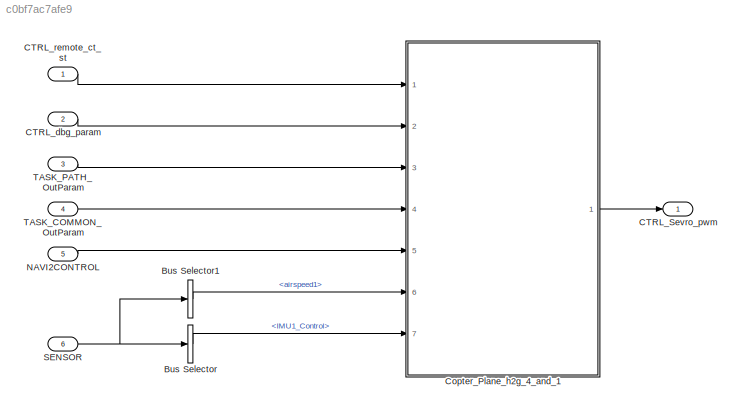
MODEL slx_c0bf7ac7afe9
KIND model
CONFIG AbsTol = auto
CONFIG EnableMultiTasking = off
CONFIG FixedStep = 1/sensorFs.imuUpdateFs
CONFIG MaxStep = Ts
CONFIG MinStep = auto
CONFIG RelTol = 1e-3
CONFIG SampleTimeConstraint = Unconstrained
CONFIG Solver = ode1
CONFIG SolverName = ode1
CONFIG StartTime = 0.0
CONFIG StopTime = inf
BLOCK [BusSelector] Bus Selector
  OutputSignals = IMU1_Control
  Ports = [1, 1]
BLOCK [BusSelector] Bus Selector1
  OutputSignals = airspeed1
  Ports = [1, 1]
BLOCK [Outport] CTRL_Sevro_pwm
  OutDataTypeStr = Bus: BUS_CTRL_Sevro_pwm
BLOCK [Inport] CTRL_dbg_param
  BusOutputAsStruct = on
  OutDataTypeStr = Bus: BUS_CTRL_dbg_param
  Port = 2
BLOCK [Inport] CTRL_remote_ct_st
  BusOutputAsStruct = on
  OutDataTypeStr = Bus: BUS_CTRL_remote_ct_st
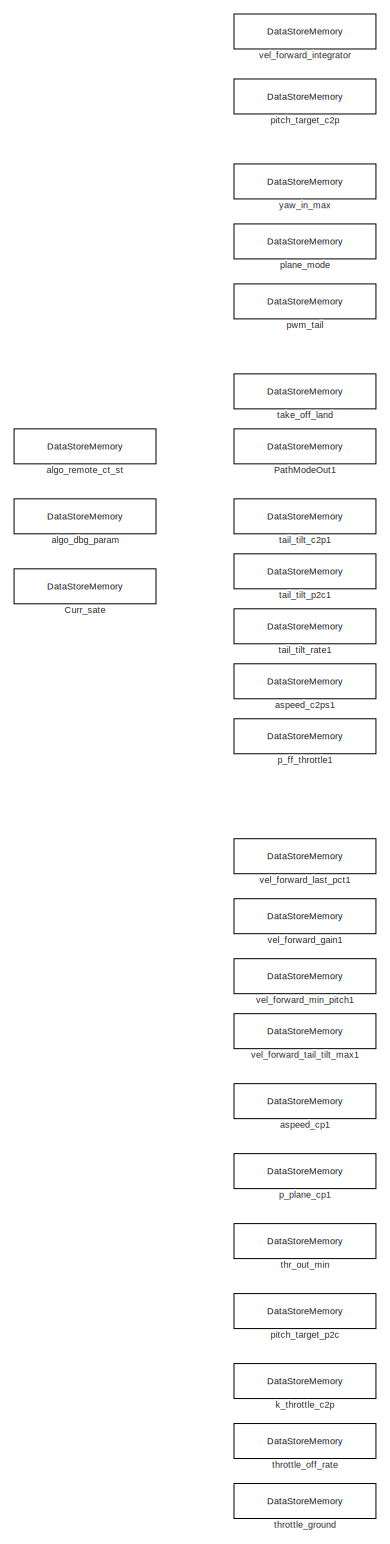
[diagram: Copter_Plane_h2g_4_and_1 - part 1/13, top left region]
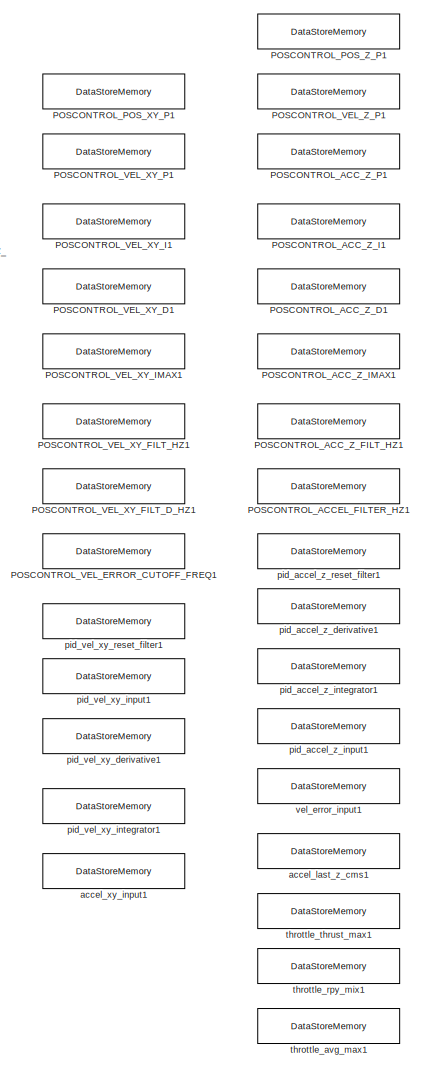
[diagram: Copter_Plane_h2g_4_and_1 - part 2/13, top right region]
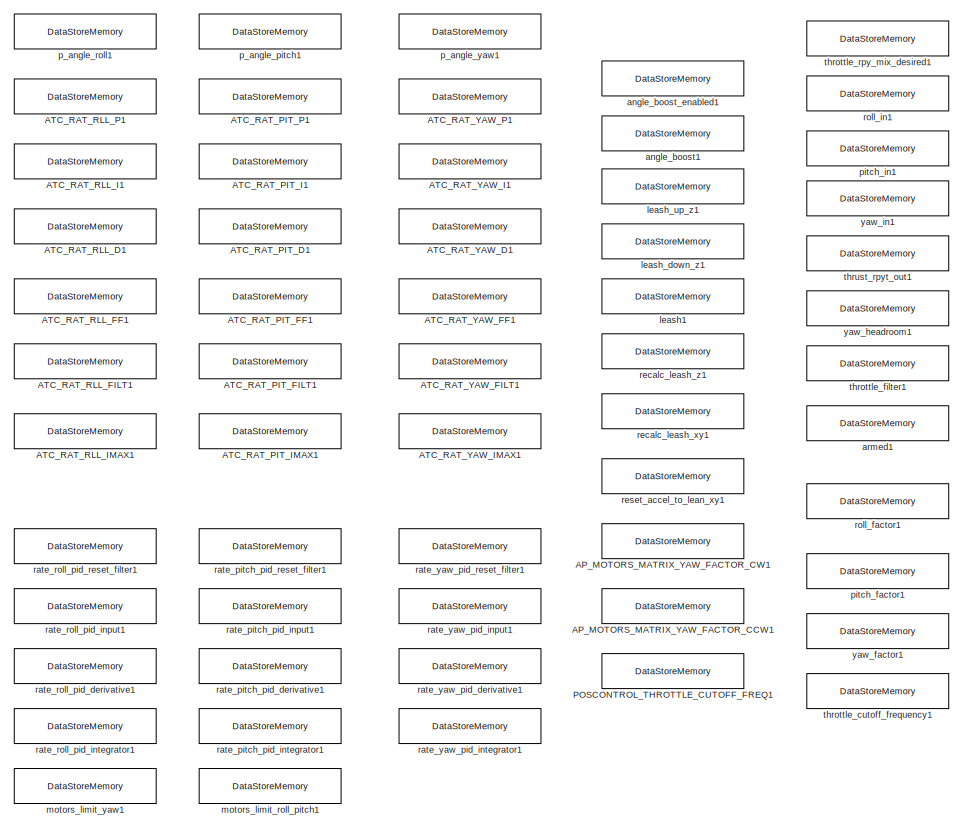
[diagram: Copter_Plane_h2g_4_and_1 - part 3/13, top right region]
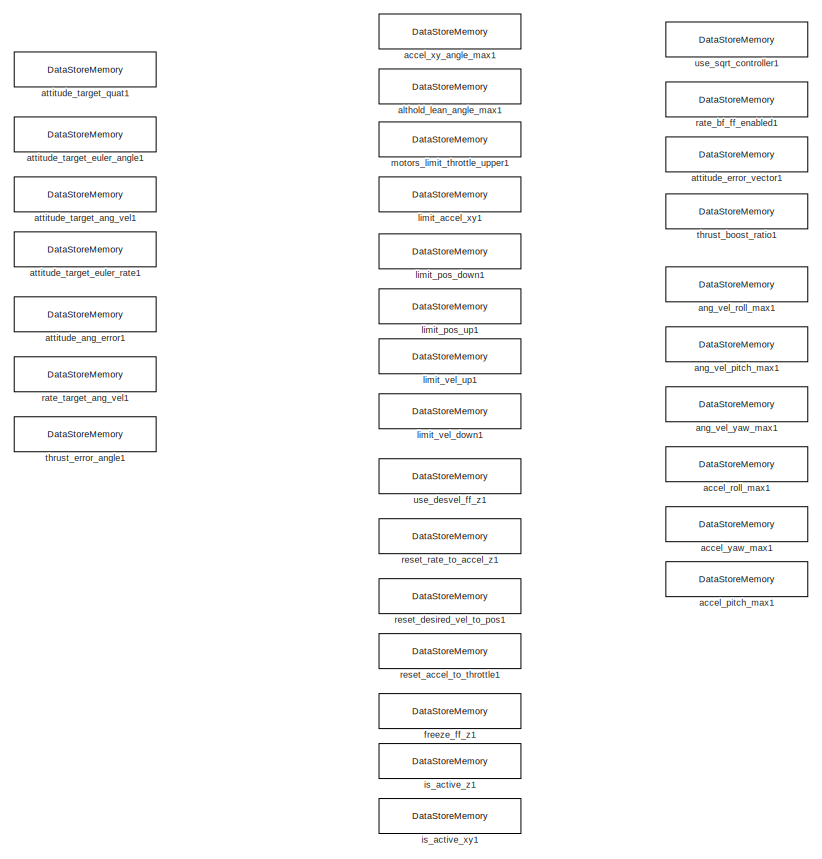
[diagram: Copter_Plane_h2g_4_and_1 - part 4/13, top center region]
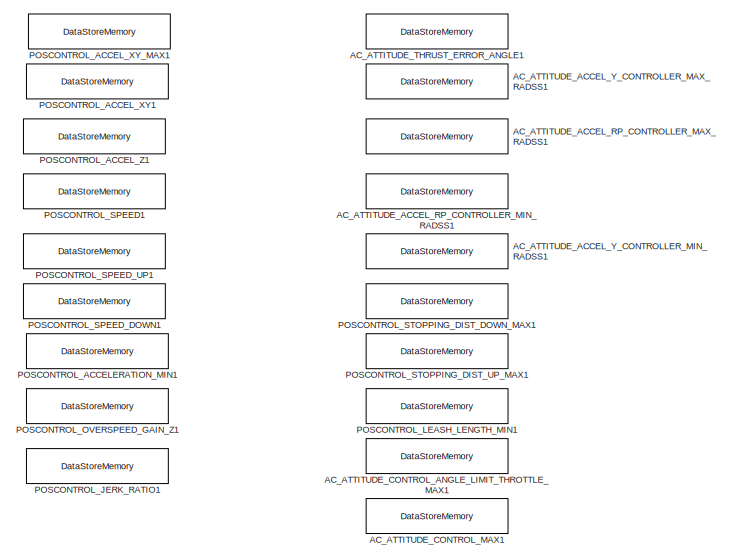
[diagram: Copter_Plane_h2g_4_and_1 - part 5/13, top center region]
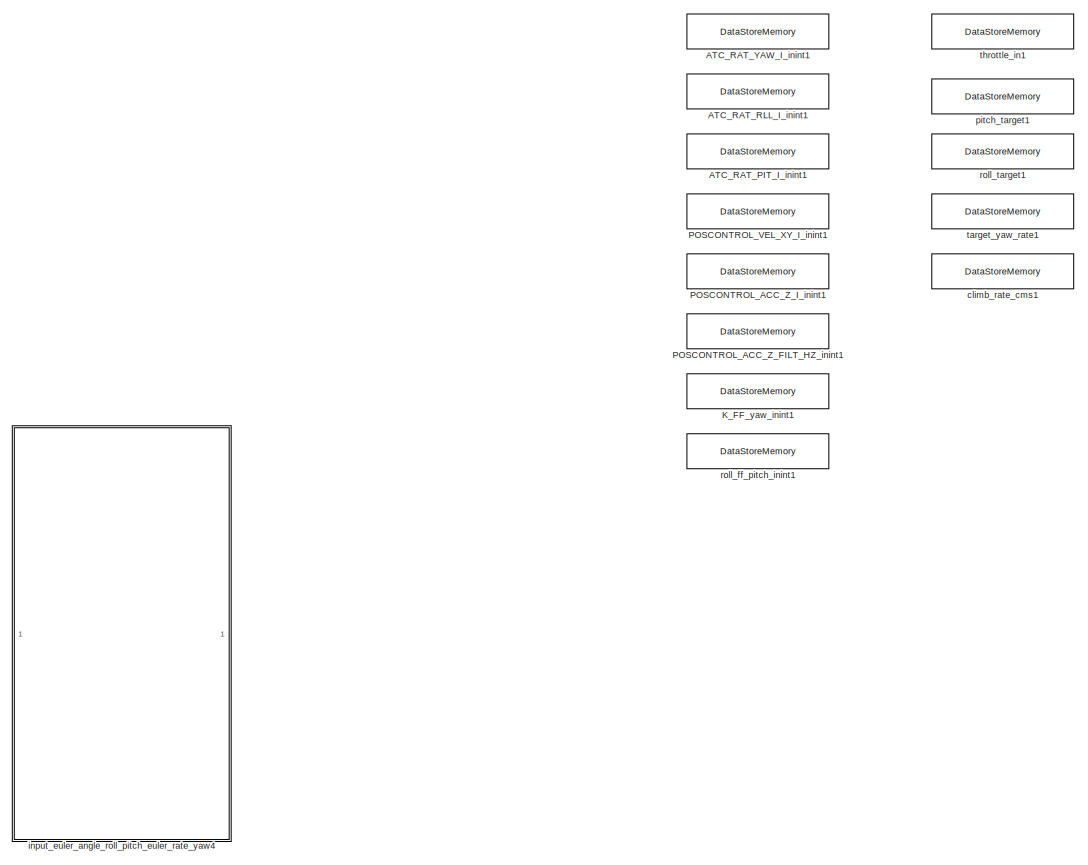
[diagram: Copter_Plane_h2g_4_and_1 - part 6/13, top left region]
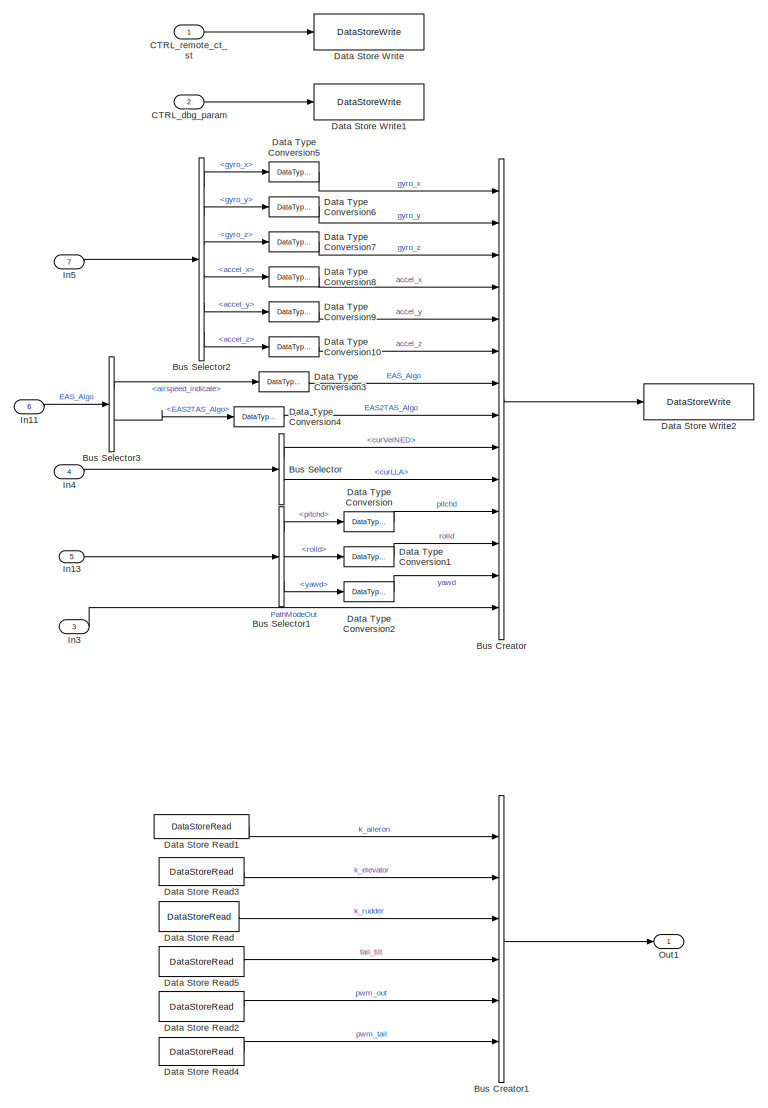
[diagram: Copter_Plane_h2g_4_and_1 - part 7/13, top left region]
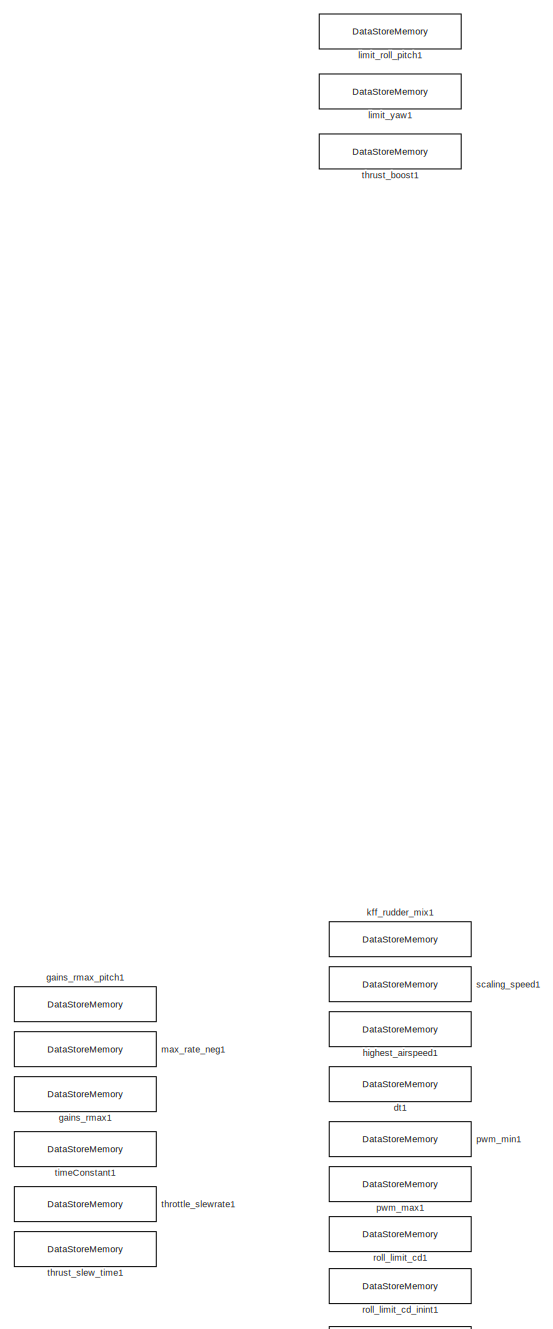
[diagram: Copter_Plane_h2g_4_and_1 - part 8/13, central region]
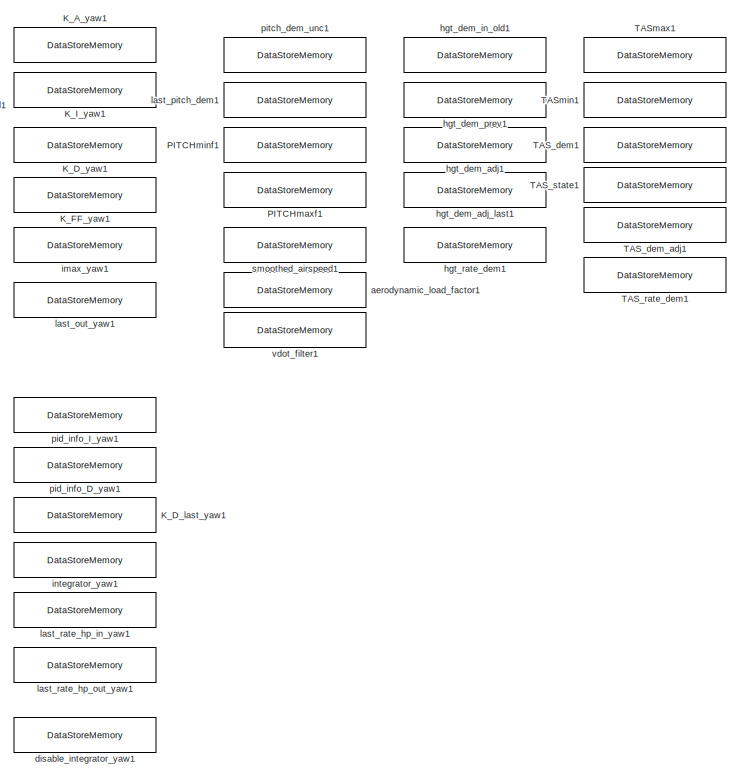
[diagram: Copter_Plane_h2g_4_and_1 - part 9/13, middle right region]
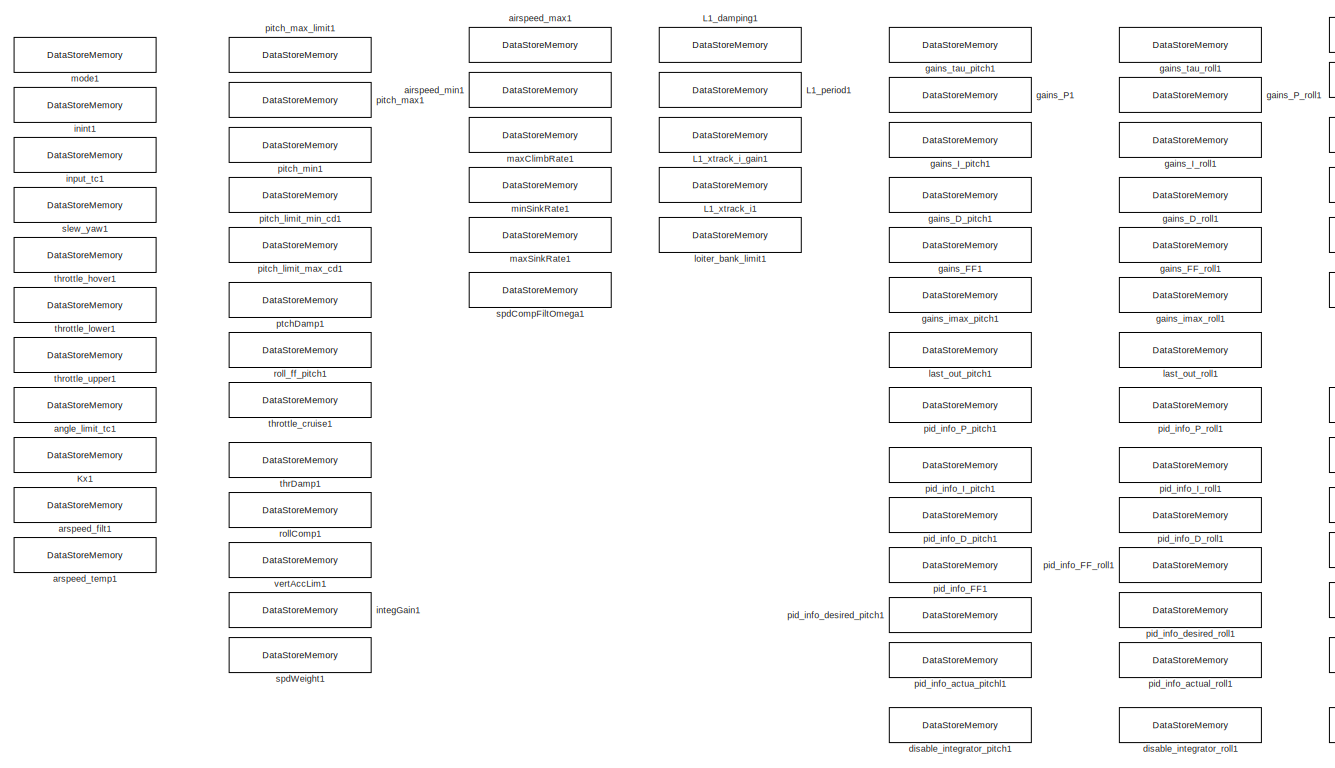
[diagram: Copter_Plane_h2g_4_and_1 - part 10/13, central region]
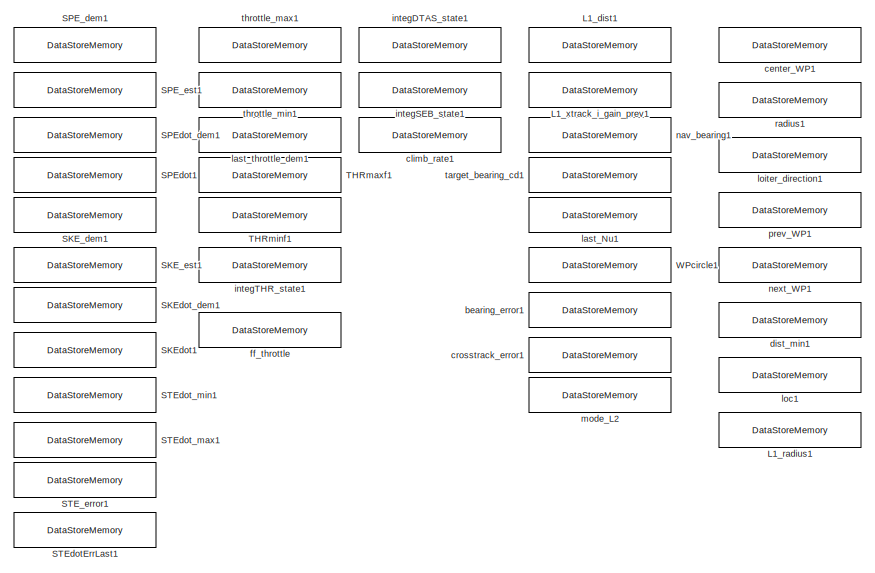
[diagram: Copter_Plane_h2g_4_and_1 - part 11/13, middle right region]
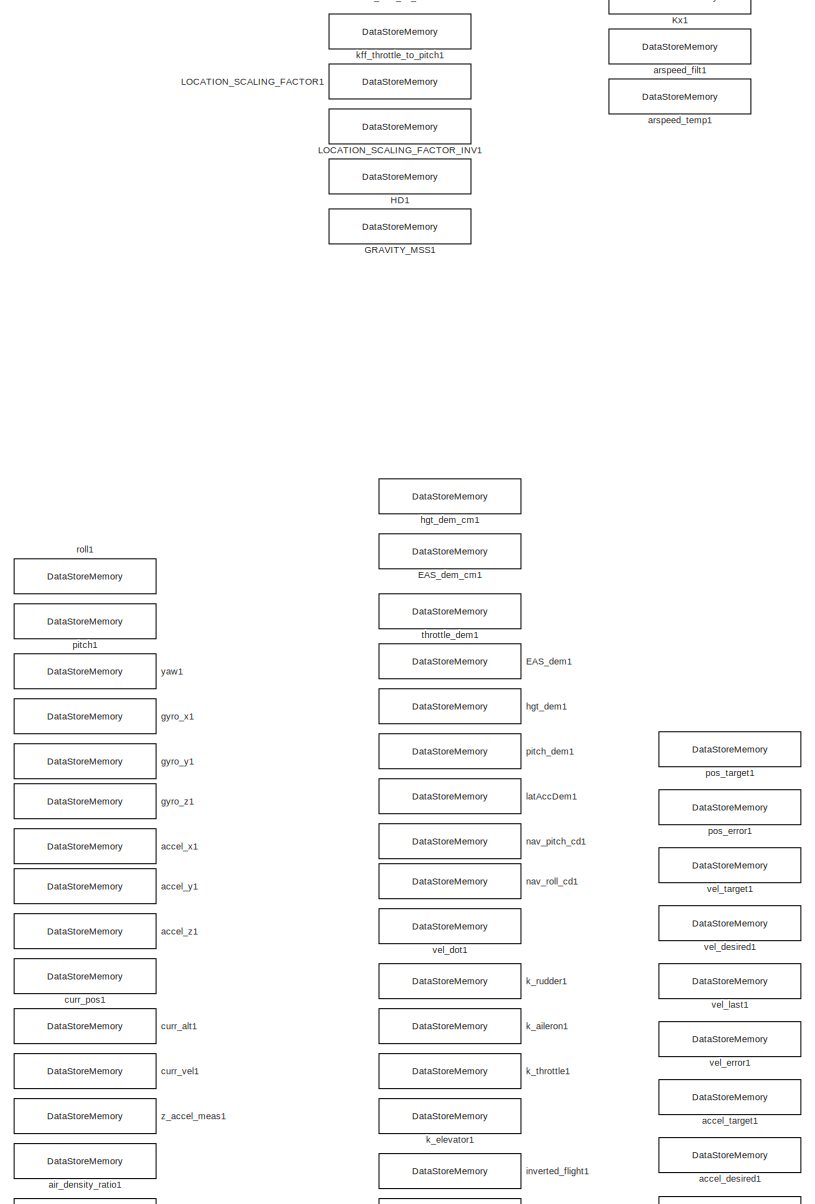
[diagram: Copter_Plane_h2g_4_and_1 - part 12/13, central region]
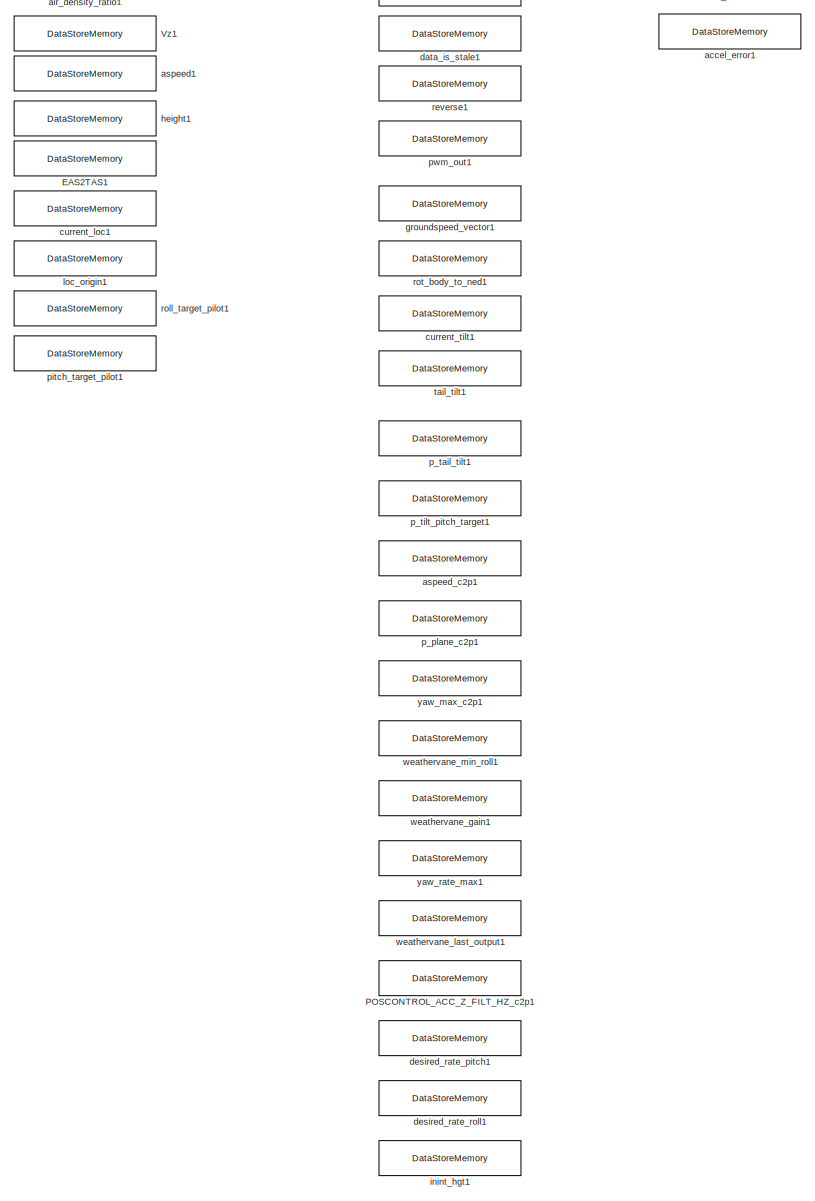
[diagram: Copter_Plane_h2g_4_and_1 - part 13/13, bottom center region]
BLOCK [SubSystem] Copter_Plane_h2g_4_and_1
  Ports = [7, 1]
  RequestExecContextInheritance = off
BLOCK [DataStoreMemory] Copter_Plane_h2g_4_and_1/AC_ATTITUDE_ACCEL_RP_CONTROLLER_MAX_RADSS1
  DataStoreName = AC_ATTITUDE_ACCEL_RP_CONTROLLER_MAX_RADSS
  InitialValue = AC_ATTITUDE_ACCEL_RP_CONTROLLER_MAX_RADSS
  OutDataTypeStr = double
  ReadBeforeWriteMsg = warning
  ShowAdditionalParam = off
  SignalType = real
  VectorParams1D = off
  WriteAfterReadMsg = warning
  WriteAfterWriteMsg = warning
BLOCK [DataStoreMemory] Copter_Plane_h2g_4_and_1/AC_ATTITUDE_ACCEL_RP_CONTROLLER_MIN_RADSS1
  DataStoreName = AC_ATTITUDE_ACCEL_RP_CONTROLLER_MIN_RADSS
  InitialValue = AC_ATTITUDE_ACCEL_RP_CONTROLLER_MIN_RADSS
  OutDataTypeStr = double
  ReadBeforeWriteMsg = warning
  ShowAdditionalParam = off
  SignalType = real
  VectorParams1D = off
  WriteAfterReadMsg = warning
  WriteAfterWriteMsg = warning
BLOCK [DataStoreMemory] Copter_Plane_h2g_4_and_1/AC_ATTITUDE_ACCEL_Y_CONTROLLER_MAX_RADSS1
  DataStoreName = AC_ATTITUDE_ACCEL_Y_CONTROLLER_MAX_RADSS
  InitialValue = AC_ATTITUDE_ACCEL_Y_CONTROLLER_MAX_RADSS
  OutDataTypeStr = double
  ReadBeforeWriteMsg = warning
  ShowAdditionalParam = off
  SignalType = real
  WriteAfterReadMsg = warning
  WriteAfterWriteMsg = warning
BLOCK [DataStoreMemory] Copter_Plane_h2g_4_and_1/AC_ATTITUDE_ACCEL_Y_CONTROLLER_MIN_RADSS1
  DataStoreName = AC_ATTITUDE_ACCEL_Y_CONTROLLER_MIN_RADSS
  InitialValue = AC_ATTITUDE_ACCEL_Y_CONTROLLER_MIN_RADSS
  OutDataTypeStr = double
  ReadBeforeWriteMsg = warning
  ShowAdditionalParam = off
  SignalType = real
  VectorParams1D = off
  WriteAfterReadMsg = warning
  WriteAfterWriteMsg = warning
BLOCK [DataStoreMemory] Copter_Plane_h2g_4_and_1/AC_ATTITUDE_CONTROL_ANGLE_LIMIT_THROTTLE_MAX1
  DataStoreName = AC_ATTITUDE_CONTROL_ANGLE_LIMIT_THROTTLE_MAX
  InitialValue = AC_ATTITUDE_CONTROL_ANGLE_LIMIT_THROTTLE_MAX
  OutDataTypeStr = double
  ReadBeforeWriteMsg = warning
  ShowAdditionalParam = off
  SignalType = real
  VectorParams1D = off
  WriteAfterReadMsg = warning
  WriteAfterWriteMsg = warning
BLOCK [DataStoreMemory] Copter_Plane_h2g_4_and_1/AC_ATTITUDE_CONTROL_MAX1
  DataStoreName = AC_ATTITUDE_CONTROL_MAX
  InitialValue = AC_ATTITUDE_CONTROL_MAX
  OutDataTypeStr = double
  ReadBeforeWriteMsg = warning
  ShowAdditionalParam = off
  SignalType = real
  VectorParams1D = off
  WriteAfterReadMsg = warning
  WriteAfterWriteMsg = warning
BLOCK [DataStoreMemory] Copter_Plane_h2g_4_and_1/AC_ATTITUDE_THRUST_ERROR_ANGLE1
  DataStoreName = AC_ATTITUDE_THRUST_ERROR_ANGLE
  InitialValue = AC_ATTITUDE_THRUST_ERROR_ANGLE
  OutDataTypeStr = double
  ReadBeforeWriteMsg = warning
  ShowAdditionalParam = off
  SignalType = real
  WriteAfterReadMsg = warning
  WriteAfterWriteMsg = warning
BLOCK [DataStoreMemory] Copter_Plane_h2g_4_and_1/AP_MOTORS_MATRIX_YAW_FACTOR_CCW1
  DataStoreName = AP_MOTORS_MATRIX_YAW_FACTOR_CCW
  InitialValue = AP_MOTORS_MATRIX_YAW_FACTOR_CCW
  OutDataTypeStr = double
  ReadBeforeWriteMsg = warning
  ShowAdditionalParam = off
  SignalType = real
  VectorParams1D = off
  WriteAfterReadMsg = warning
  WriteAfterWriteMsg = warning
BLOCK [DataStoreMemory] Copter_Plane_h2g_4_and_1/AP_MOTORS_MATRIX_YAW_FACTOR_CW1
  DataStoreName = AP_MOTORS_MATRIX_YAW_FACTOR_CW
  InitialValue = AP_MOTORS_MATRIX_YAW_FACTOR_CW
  OutDataTypeStr = double
  ReadBeforeWriteMsg = warning
  ShowAdditionalParam = off
  SignalType = real
  VectorParams1D = off
  WriteAfterReadMsg = warning
  WriteAfterWriteMsg = warning
BLOCK [DataStoreMemory] Copter_Plane_h2g_4_and_1/ATC_RAT_PIT_D1
  DataStoreName = ATC_RAT_PIT_D
  InitialValue = ATC_RAT_PIT_D
  OutDataTypeStr = double
  ReadBeforeWriteMsg = warning
  ShowAdditionalParam = off
  SignalType = real
  VectorParams1D = off
  WriteAfterReadMsg = warning
  WriteAfterWriteMsg = warning
BLOCK [DataStoreMemory] Copter_Plane_h2g_4_and_1/ATC_RAT_PIT_FF1
  DataStoreName = ATC_RAT_PIT_FF
  InitialValue = ATC_RAT_PIT_FF
  OutDataTypeStr = double
  ReadBeforeWriteMsg = warning
  ShowAdditionalParam = off
  SignalType = real
  VectorParams1D = off
  WriteAfterReadMsg = warning
  WriteAfterWriteMsg = warning
BLOCK [DataStoreMemory] Copter_Plane_h2g_4_and_1/ATC_RAT_PIT_FILT1
  DataStoreName = ATC_RAT_PIT_FILT
  InitialValue = ATC_RAT_PIT_FILT
  OutDataTypeStr = double
  ReadBeforeWriteMsg = warning
  ShowAdditionalParam = off
  SignalType = real
  VectorParams1D = off
  WriteAfterReadMsg = warning
  WriteAfterWriteMsg = warning
BLOCK [DataStoreMemory] Copter_Plane_h2g_4_and_1/ATC_RAT_PIT_I1
  DataStoreName = ATC_RAT_PIT_I
  InitialValue = ATC_RAT_PIT_I
  OutDataTypeStr = double
  ReadBeforeWriteMsg = warning
  ShowAdditionalParam = off
  SignalType = real
  VectorParams1D = off
  WriteAfterReadMsg = warning
  WriteAfterWriteMsg = warning
BLOCK [DataStoreMemory] Copter_Plane_h2g_4_and_1/ATC_RAT_PIT_IMAX1
  DataStoreName = ATC_RAT_PIT_IMAX
  InitialValue = ATC_RAT_PIT_IMAX
  OutDataTypeStr = double
  ReadBeforeWriteMsg = warning
  ShowAdditionalParam = off
  SignalType = real
  VectorParams1D = off
  WriteAfterReadMsg = warning
  WriteAfterWriteMsg = warning
BLOCK [DataStoreMemory] Copter_Plane_h2g_4_and_1/ATC_RAT_PIT_I_inint1
  DataStoreName = ATC_RAT_PIT_I_inint
  InitialValue = ATC_RAT_PIT_I_inint
  OutDataTypeStr = double
  ReadBeforeWriteMsg = warning
  ShowAdditionalParam = off
  SignalType = real
  VectorParams1D = off
  WriteAfterReadMsg = warning
  WriteAfterWriteMsg = warning
BLOCK [DataStoreMemory] Copter_Plane_h2g_4_and_1/ATC_RAT_PIT_P1
  DataStoreName = ATC_RAT_PIT_P
  InitialValue = ATC_RAT_PIT_P
  OutDataTypeStr = double
  ReadBeforeWriteMsg = warning
  ShowAdditionalParam = off
  SignalType = real
  VectorParams1D = off
  WriteAfterReadMsg = warning
  WriteAfterWriteMsg = warning
BLOCK [DataStoreMemory] Copter_Plane_h2g_4_and_1/ATC_RAT_RLL_D1
  DataStoreName = ATC_RAT_RLL_D
  InitialValue = ATC_RAT_RLL_D
  OutDataTypeStr = double
  ReadBeforeWriteMsg = warning
  ShowAdditionalParam = off
  SignalType = real
  VectorParams1D = off
  WriteAfterReadMsg = warning
  WriteAfterWriteMsg = warning
BLOCK [DataStoreMemory] Copter_Plane_h2g_4_and_1/ATC_RAT_RLL_FF1
  DataStoreName = ATC_RAT_RLL_FF
  InitialValue = ATC_RAT_RLL_FF
  OutDataTypeStr = double
  ReadBeforeWriteMsg = warning
  ShowAdditionalParam = off
  SignalType = real
  VectorParams1D = off
  WriteAfterReadMsg = warning
  WriteAfterWriteMsg = warning
BLOCK [DataStoreMemory] Copter_Plane_h2g_4_and_1/ATC_RAT_RLL_FILT1
  DataStoreName = ATC_RAT_RLL_FILT
  InitialValue = ATC_RAT_RLL_FILT
  OutDataTypeStr = double
  ReadBeforeWriteMsg = warning
  ShowAdditionalParam = off
  SignalType = real
  VectorParams1D = off
  WriteAfterReadMsg = warning
  WriteAfterWriteMsg = warning
BLOCK [DataStoreMemory] Copter_Plane_h2g_4_and_1/ATC_RAT_RLL_I1
  DataStoreName = ATC_RAT_RLL_I
  InitialValue = ATC_RAT_RLL_I
  OutDataTypeStr = double
  ReadBeforeWriteMsg = warning
  ShowAdditionalParam = off
  SignalType = real
  VectorParams1D = off
  WriteAfterReadMsg = warning
  WriteAfterWriteMsg = warning
BLOCK [DataStoreMemory] Copter_Plane_h2g_4_and_1/ATC_RAT_RLL_IMAX1
  DataStoreName = ATC_RAT_RLL_IMAX
  InitialValue = ATC_RAT_RLL_IMAX
  OutDataTypeStr = double
  ReadBeforeWriteMsg = warning
  ShowAdditionalParam = off
  SignalType = real
  VectorParams1D = off
  WriteAfterReadMsg = warning
  WriteAfterWriteMsg = warning
BLOCK [DataStoreMemory] Copter_Plane_h2g_4_and_1/ATC_RAT_RLL_I_inint1
  DataStoreName = ATC_RAT_RLL_I_inint
  InitialValue = ATC_RAT_RLL_I_inint
  OutDataTypeStr = double
  ReadBeforeWriteMsg = warning
  ShowAdditionalParam = off
  SignalType = real
  VectorParams1D = off
  WriteAfterReadMsg = warning
  WriteAfterWriteMsg = warning
BLOCK [DataStoreMemory] Copter_Plane_h2g_4_and_1/ATC_RAT_RLL_P1
  DataStoreName = ATC_RAT_RLL_P
  InitialValue = ATC_RAT_RLL_P
  OutDataTypeStr = double
  ReadBeforeWriteMsg = warning
  ShowAdditionalParam = off
  SignalType = real
  VectorParams1D = off
  WriteAfterReadMsg = warning
  WriteAfterWriteMsg = warning
BLOCK [DataStoreMemory] Copter_Plane_h2g_4_and_1/ATC_RAT_YAW_D1
  DataStoreName = ATC_RAT_YAW_D
  InitialValue = ATC_RAT_YAW_D
  OutDataTypeStr = double
  ReadBeforeWriteMsg = warning
  ShowAdditionalParam = off
  SignalType = real
  VectorParams1D = off
  WriteAfterReadMsg = warning
  WriteAfterWriteMsg = warning
BLOCK [DataStoreMemory] Copter_Plane_h2g_4_and_1/ATC_RAT_YAW_FF1
  DataStoreName = ATC_RAT_YAW_FF
  InitialValue = ATC_RAT_YAW_FF
  OutDataTypeStr = double
  ReadBeforeWriteMsg = warning
  ShowAdditionalParam = off
  SignalType = real
  VectorParams1D = off
  WriteAfterReadMsg = warning
  WriteAfterWriteMsg = warning
BLOCK [DataStoreMemory] Copter_Plane_h2g_4_and_1/ATC_RAT_YAW_FILT1
  DataStoreName = ATC_RAT_YAW_FILT
  InitialValue = ATC_RAT_YAW_FILT
  OutDataTypeStr = double
  ReadBeforeWriteMsg = warning
  ShowAdditionalParam = off
  SignalType = real
  VectorParams1D = off
  WriteAfterReadMsg = warning
  WriteAfterWriteMsg = warning
BLOCK [DataStoreMemory] Copter_Plane_h2g_4_and_1/ATC_RAT_YAW_I1
  DataStoreName = ATC_RAT_YAW_I
  InitialValue = ATC_RAT_YAW_I
  OutDataTypeStr = double
  ReadBeforeWriteMsg = warning
  ShowAdditionalParam = off
  SignalType = real
  VectorParams1D = off
  WriteAfterReadMsg = warning
  WriteAfterWriteMsg = warning
BLOCK [DataStoreMemory] Copter_Plane_h2g_4_and_1/ATC_RAT_YAW_IMAX1
  DataStoreName = ATC_RAT_YAW_IMAX
  InitialValue = ATC_RAT_YAW_IMAX
  OutDataTypeStr = double
  ReadBeforeWriteMsg = warning
  ShowAdditionalParam = off
  SignalType = real
  VectorParams1D = off
  WriteAfterReadMsg = warning
  WriteAfterWriteMsg = warning
BLOCK [DataStoreMemory] Copter_Plane_h2g_4_and_1/ATC_RAT_YAW_I_inint1
  DataStoreName = ATC_RAT_YAW_I_inint
  InitialValue = ATC_RAT_YAW_I_inint
  OutDataTypeStr = double
  ReadBeforeWriteMsg = warning
  ShowAdditionalParam = off
  SignalType = real
  VectorParams1D = off
  WriteAfterReadMsg = warning
  WriteAfterWriteMsg = warning
BLOCK [DataStoreMemory] Copter_Plane_h2g_4_and_1/ATC_RAT_YAW_P1
  DataStoreName = ATC_RAT_YAW_P
  InitialValue = ATC_RAT_YAW_P
  OutDataTypeStr = double
  ReadBeforeWriteMsg = warning
  ShowAdditionalParam = off
  SignalType = real
  VectorParams1D = off
  WriteAfterReadMsg = warning
  WriteAfterWriteMsg = warning
BLOCK [BusCreator] Copter_Plane_h2g_4_and_1/Bus Creator
  DisplayOption = bar
  InheritFromInputs = on
  Inputs = 14
  NonVirtualBus = on
  OutDataTypeStr = Bus: BUS_CTRL_Curr_sate
  Ports = [14, 1]
BLOCK [BusCreator] Copter_Plane_h2g_4_and_1/Bus Creator1
  DisplayOption = bar
  InheritFromInputs = on
  Inputs = 6
  OutDataTypeStr = Bus: BUS_CTRL_Sevro_pwm
  Ports = [6, 1]
BLOCK [BusSelector] Copter_Plane_h2g_4_and_1/Bus Selector
  OutputSignals = curVelNED,curLLA
  Ports = [1, 2]
BLOCK [BusSelector] Copter_Plane_h2g_4_and_1/Bus Selector1
  NameLocation = right
  OutputSignals = pitchd,rolld,yawd
  Ports = [1, 3]
BLOCK [BusSelector] Copter_Plane_h2g_4_and_1/Bus Selector2
  OutputSignals = gyro_x,gyro_y,gyro_z,accel_x,accel_y,accel_z
  Ports = [1, 6]
BLOCK [BusSelector] Copter_Plane_h2g_4_and_1/Bus Selector3
  OutputSignals = airspeed_indicate,EAS2TAS_Algo
  Ports = [1, 2]
BLOCK [Inport] Copter_Plane_h2g_4_and_1/CTRL_dbg_param
  OutDataTypeStr = Bus: BUS_CTRL_dbg_param
  Port = 2
BLOCK [Inport] Copter_Plane_h2g_4_and_1/CTRL_remote_ct_st
  OutDataTypeStr = Bus: BUS_CTRL_remote_ct_st
BLOCK [DataStoreMemory] Copter_Plane_h2g_4_and_1/Curr_sate
  DataStoreName = Curr_sate
  InitialValue = Curr_sate
  OutDataTypeStr = Bus: BUS_CTRL_Curr_sate
  ReadBeforeWriteMsg = warning
  ShowAdditionalParam = off
  SignalType = real
  VectorParams1D = off
  WriteAfterReadMsg = warning
  WriteAfterWriteMsg = warning
BLOCK [DataStoreRead] Copter_Plane_h2g_4_and_1/Data Store Read
  DataStoreName = k_rudder
  Ports = [0, 1]
BLOCK [DataStoreRead] Copter_Plane_h2g_4_and_1/Data Store Read1
  DataStoreName = k_aileron
  Ports = [0, 1]
BLOCK [DataStoreRead] Copter_Plane_h2g_4_and_1/Data Store Read2
  DataStoreName = pwm_out
  Ports = [0, 1]
BLOCK [DataStoreRead] Copter_Plane_h2g_4_and_1/Data Store Read3
  DataStoreName = k_elevator
  Ports = [0, 1]
BLOCK [DataStoreRead] Copter_Plane_h2g_4_and_1/Data Store Read4
  DataStoreName = pwm_tail
  Ports = [0, 1]
BLOCK [DataStoreRead] Copter_Plane_h2g_4_and_1/Data Store Read5
  DataStoreName = tail_tilt
  Ports = [0, 1]
BLOCK [DataStoreWrite] Copter_Plane_h2g_4_and_1/Data Store Write
  DataStoreName = algo_remote_ct_st
  Ports = [1]
BLOCK [DataStoreWrite] Copter_Plane_h2g_4_and_1/Data Store Write1
  DataStoreName = algo_dbg_param
  Ports = [1]
BLOCK [DataStoreWrite] Copter_Plane_h2g_4_and_1/Data Store Write2
  DataStoreName = Curr_sate
  Ports = [1]
BLOCK [DataTypeConversion] Copter_Plane_h2g_4_and_1/Data Type Conversion
  RndMeth = Floor
  SaturateOnIntegerOverflow = off
BLOCK [DataTypeConversion] Copter_Plane_h2g_4_and_1/Data Type Conversion1
  RndMeth = Floor
  SaturateOnIntegerOverflow = off
BLOCK [DataTypeConversion] Copter_Plane_h2g_4_and_1/Data Type Conversion10
  RndMeth = Floor
  SaturateOnIntegerOverflow = off
BLOCK [DataTypeConversion] Copter_Plane_h2g_4_and_1/Data Type Conversion2
  RndMeth = Floor
  SaturateOnIntegerOverflow = off
BLOCK [DataTypeConversion] Copter_Plane_h2g_4_and_1/Data Type Conversion3
  RndMeth = Floor
  SaturateOnIntegerOverflow = off
BLOCK [DataTypeConversion] Copter_Plane_h2g_4_and_1/Data Type Conversion4
  RndMeth = Floor
  SaturateOnIntegerOverflow = off
BLOCK [DataTypeConversion] Copter_Plane_h2g_4_and_1/Data Type Conversion5
  RndMeth = Floor
  SaturateOnIntegerOverflow = off
BLOCK [DataTypeConversion] Copter_Plane_h2g_4_and_1/Data Type Conversion6
  RndMeth = Floor
  SaturateOnIntegerOverflow = off
BLOCK [DataTypeConversion] Copter_Plane_h2g_4_and_1/Data Type Conversion7
  RndMeth = Floor
  SaturateOnIntegerOverflow = off
BLOCK [DataTypeConversion] Copter_Plane_h2g_4_and_1/Data Type Conversion8
  RndMeth = Floor
  SaturateOnIntegerOverflow = off
BLOCK [DataTypeConversion] Copter_Plane_h2g_4_and_1/Data Type Conversion9
  RndMeth = Floor
  SaturateOnIntegerOverflow = off
BLOCK [DataStoreMemory] Copter_Plane_h2g_4_and_1/EAS2TAS1
  DataStoreName = EAS2TAS
  InitialValue = EAS2TAS
  OutDataTypeStr = double
  ReadBeforeWriteMsg = warning
  ShowAdditionalParam = off
  SignalType = real
  VectorParams1D = off
  WriteAfterReadMsg = warning
  WriteAfterWriteMsg = warning
BLOCK [DataStoreMemory] Copter_Plane_h2g_4_and_1/EAS_dem1
  DataStoreName = EAS_dem
  InitialValue = EAS_dem
  OutDataTypeStr = double
  ReadBeforeWriteMsg = warning
  ShowAdditionalParam = off
  SignalType = real
  VectorParams1D = off
  WriteAfterReadMsg = warning
  WriteAfterWriteMsg = warning
BLOCK [DataStoreMemory] Copter_Plane_h2g_4_and_1/EAS_dem_cm1
  DataStoreName = EAS_dem_cm
  InitialValue = EAS_dem_cm
  OutDataTypeStr = double
  ReadBeforeWriteMsg = warning
  ShowAdditionalParam = off
  SignalType = real
  VectorParams1D = off
  WriteAfterReadMsg = warning
  WriteAfterWriteMsg = warning
BLOCK [DataStoreMemory] Copter_Plane_h2g_4_and_1/GRAVITY_MSS1
  DataStoreName = GRAVITY_MSS
  InitialValue = GRAVITY_MSS
  OutDataTypeStr = double
  ReadBeforeWriteMsg = warning
  ShowAdditionalParam = off
  SignalType = real
  VectorParams1D = off
  WriteAfterReadMsg = warning
  WriteAfterWriteMsg = warning
BLOCK [DataStoreMemory] Copter_Plane_h2g_4_and_1/HD1
  DataStoreName = HD
  InitialValue = HD
  OutDataTypeStr = double
  ReadBeforeWriteMsg = warning
  ShowAdditionalParam = off
  SignalType = real
  WriteAfterReadMsg = warning
  WriteAfterWriteMsg = warning
BLOCK [Inport] Copter_Plane_h2g_4_and_1/In11
  OutDataTypeStr = Bus: BUS_AIRSPEED
  Port = 6
BLOCK [Inport] Copter_Plane_h2g_4_and_1/In13
  OutDataTypeStr = Bus: BUS_TO_CONTROL
  Port = 5
BLOCK [Inport] Copter_Plane_h2g_4_and_1/In3
  OutDataTypeStr = Bus: BUS_TASK_PATH_OutParam
  Port = 3
BLOCK [Inport] Copter_Plane_h2g_4_and_1/In4
  OutDataTypeStr = Bus: BUS_TASK_COMMON_OutParam
  Port = 4
BLOCK [Inport] Copter_Plane_h2g_4_and_1/In5
  Port = 7
BLOCK [DataStoreMemory] Copter_Plane_h2g_4_and_1/K_A_yaw1
  DataStoreName = K_A_yaw
  InitialValue = K_A_yaw
  OutDataTypeStr = double
  ReadBeforeWriteMsg = warning
  ShowAdditionalParam = off
  SignalType = real
  WriteAfterReadMsg = warning
  WriteAfterWriteMsg = warning
BLOCK [DataStoreMemory] Copter_Plane_h2g_4_and_1/K_D_last_yaw1
  DataStoreName = K_D_last_yaw
  InitialValue = K_D_last_yaw
  OutDataTypeStr = double
  ReadBeforeWriteMsg = warning
  ShowAdditionalParam = off
  SignalType = real
  WriteAfterReadMsg = warning
  WriteAfterWriteMsg = warning
BLOCK [DataStoreMemory] Copter_Plane_h2g_4_and_1/K_D_yaw1
  DataStoreName = K_D_yaw
  InitialValue = K_D_yaw
  OutDataTypeStr = double
  ReadBeforeWriteMsg = warning
  ShowAdditionalParam = off
  SignalType = real
  WriteAfterReadMsg = warning
  WriteAfterWriteMsg = warning
BLOCK [DataStoreMemory] Copter_Plane_h2g_4_and_1/K_FF_yaw1
  DataStoreName = K_FF_yaw
  InitialValue = K_FF_yaw
  OutDataTypeStr = double
  ReadBeforeWriteMsg = warning
  ShowAdditionalParam = off
  SignalType = real
  WriteAfterReadMsg = warning
  WriteAfterWriteMsg = warning
BLOCK [DataStoreMemory] Copter_Plane_h2g_4_and_1/K_FF_yaw_inint1
  DataStoreName = K_FF_yaw_inint
  InitialValue = K_FF_yaw_inint
  OutDataTypeStr = double
  ReadBeforeWriteMsg = warning
  ShowAdditionalParam = off
  SignalType = real
  VectorParams1D = off
  WriteAfterReadMsg = warning
  WriteAfterWriteMsg = warning
BLOCK [DataStoreMemory] Copter_Plane_h2g_4_and_1/K_I_yaw1
  DataStoreName = K_I_yaw
  InitialValue = K_I_yaw
  OutDataTypeStr = double
  ReadBeforeWriteMsg = warning
  ShowAdditionalParam = off
  SignalType = real
  WriteAfterReadMsg = warning
  WriteAfterWriteMsg = warning
BLOCK [DataStoreMemory] Copter_Plane_h2g_4_and_1/Kx1
  DataStoreName = Kx
  InitialValue = Kx
  OutDataTypeStr = double
  ReadBeforeWriteMsg = warning
  ShowAdditionalParam = off
  SignalType = real
  VectorParams1D = off
  WriteAfterReadMsg = warning
  WriteAfterWriteMsg = warning
BLOCK [DataStoreMemory] Copter_Plane_h2g_4_and_1/L1_damping1
  DataStoreName = L1_damping
  InitialValue = L1_damping
  OutDataTypeStr = double
  ReadBeforeWriteMsg = warning
  ShowAdditionalParam = off
  SignalType = real
  VectorParams1D = off
  WriteAfterReadMsg = warning
  WriteAfterWriteMsg = warning
BLOCK [DataStoreMemory] Copter_Plane_h2g_4_and_1/L1_dist1
  DataStoreName = L1_dist
  InitialValue = L1_dist
  OutDataTypeStr = double
  ReadBeforeWriteMsg = warning
  ShowAdditionalParam = off
  SignalType = real
  VectorParams1D = off
  WriteAfterReadMsg = warning
  WriteAfterWriteMsg = warning
BLOCK [DataStoreMemory] Copter_Plane_h2g_4_and_1/L1_period1
  DataStoreName = L1_period
  InitialValue = L1_period
  OutDataTypeStr = double
  ReadBeforeWriteMsg = warning
  ShowAdditionalParam = off
  SignalType = real
  VectorParams1D = off
  WriteAfterReadMsg = warning
  WriteAfterWriteMsg = warning
BLOCK [DataStoreMemory] Copter_Plane_h2g_4_and_1/L1_radius1
  DataStoreName = L1_radius
  InitialValue = L1_radius
  OutDataTypeStr = double
  ReadBeforeWriteMsg = warning
  ShowAdditionalParam = off
  SignalType = real
  VectorParams1D = off
  WriteAfterReadMsg = warning
  WriteAfterWriteMsg = warning
BLOCK [DataStoreMemory] Copter_Plane_h2g_4_and_1/L1_xtrack_i1
  DataStoreName = L1_xtrack_i
  InitialValue = L1_xtrack_i
  OutDataTypeStr = double
  ReadBeforeWriteMsg = warning
  ShowAdditionalParam = off
  SignalType = real
  VectorParams1D = off
  WriteAfterReadMsg = warning
  WriteAfterWriteMsg = warning
BLOCK [DataStoreMemory] Copter_Plane_h2g_4_and_1/L1_xtrack_i_gain1
  DataStoreName = L1_xtrack_i_gain
  InitialValue = L1_xtrack_i_gain
  OutDataTypeStr = double
  ReadBeforeWriteMsg = warning
  ShowAdditionalParam = off
  SignalType = real
  VectorParams1D = off
  WriteAfterReadMsg = warning
  WriteAfterWriteMsg = warning
BLOCK [DataStoreMemory] Copter_Plane_h2g_4_and_1/L1_xtrack_i_gain_prev1
  DataStoreName = L1_xtrack_i_gain_prev
  InitialValue = L1_xtrack_i_gain_prev
  OutDataTypeStr = double
  ReadBeforeWriteMsg = warning
  ShowAdditionalParam = off
  SignalType = real
  VectorParams1D = off
  WriteAfterReadMsg = warning
  WriteAfterWriteMsg = warning
BLOCK [DataStoreMemory] Copter_Plane_h2g_4_and_1/LOCATION_SCALING_FACTOR1
  DataStoreName = LOCATION_SCALING_FACTOR
  InitialValue = LOCATION_SCALING_FACTOR
  OutDataTypeStr = double
  ReadBeforeWriteMsg = warning
  ShowAdditionalParam = off
  SignalType = real
  VectorParams1D = off
  WriteAfterReadMsg = warning
  WriteAfterWriteMsg = warning
BLOCK [DataStoreMemory] Copter_Plane_h2g_4_and_1/LOCATION_SCALING_FACTOR_INV1
  DataStoreName = LOCATION_SCALING_FACTOR_INV
  InitialValue = LOCATION_SCALING_FACTOR_INV
  OutDataTypeStr = double
  ReadBeforeWriteMsg = warning
  ShowAdditionalParam = off
  SignalType = real
  VectorParams1D = off
  WriteAfterReadMsg = warning
  WriteAfterWriteMsg = warning
BLOCK [Outport] Copter_Plane_h2g_4_and_1/Out1
  OutDataTypeStr = Bus: BUS_CTRL_Sevro_pwm
BLOCK [DataStoreMemory] Copter_Plane_h2g_4_and_1/PITCHmaxf1
  DataStoreName = PITCHmaxf
  InitialValue = PITCHmaxf
  OutDataTypeStr = double
  ReadBeforeWriteMsg = warning
  ShowAdditionalParam = off
  SignalType = real
  VectorParams1D = off
  WriteAfterReadMsg = warning
  WriteAfterWriteMsg = warning
BLOCK [DataStoreMemory] Copter_Plane_h2g_4_and_1/PITCHminf1
  DataStoreName = PITCHminf
  InitialValue = PITCHminf
  OutDataTypeStr = double
  ReadBeforeWriteMsg = warning
  ShowAdditionalParam = off
  SignalType = real
  VectorParams1D = off
  WriteAfterReadMsg = warning
  WriteAfterWriteMsg = warning
BLOCK [DataStoreMemory] Copter_Plane_h2g_4_and_1/POSCONTROL_ACCELERATION_MIN1
  DataStoreName = POSCONTROL_ACCELERATION_MIN
  InitialValue = POSCONTROL_ACCELERATION_MIN
  OutDataTypeStr = double
  ReadBeforeWriteMsg = warning
  ShowAdditionalParam = off
  SignalType = real
  WriteAfterReadMsg = warning
  WriteAfterWriteMsg = warning
BLOCK [DataStoreMemory] Copter_Plane_h2g_4_and_1/POSCONTROL_ACCEL_FILTER_HZ1
  DataStoreName = POSCONTROL_ACCEL_FILTER_HZ
  InitialValue = POSCONTROL_ACCEL_FILTER_HZ
  OutDataTypeStr = double
  ReadBeforeWriteMsg = warning
  ShowAdditionalParam = off
  SignalType = real
  VectorParams1D = off
  WriteAfterReadMsg = warning
  WriteAfterWriteMsg = warning
BLOCK [DataStoreMemory] Copter_Plane_h2g_4_and_1/POSCONTROL_ACCEL_XY1
  DataStoreName = POSCONTROL_ACCEL_XY
  InitialValue = POSCONTROL_ACCEL_XY
  OutDataTypeStr = double
  ReadBeforeWriteMsg = warning
  ShowAdditionalParam = off
  SignalType = real
  VectorParams1D = off
  WriteAfterReadMsg = warning
  WriteAfterWriteMsg = warning
BLOCK [DataStoreMemory] Copter_Plane_h2g_4_and_1/POSCONTROL_ACCEL_XY_MAX1
  DataStoreName = POSCONTROL_ACCEL_XY_MAX
  InitialValue = POSCONTROL_ACCEL_XY_MAX
  OutDataTypeStr = double
  ReadBeforeWriteMsg = warning
  ShowAdditionalParam = off
  SignalType = real
  VectorParams1D = off
  WriteAfterReadMsg = warning
  WriteAfterWriteMsg = warning
BLOCK [DataStoreMemory] Copter_Plane_h2g_4_and_1/POSCONTROL_ACCEL_Z1
  DataStoreName = POSCONTROL_ACCEL_Z
  InitialValue = POSCONTROL_ACCEL_Z
  OutDataTypeStr = double
  ReadBeforeWriteMsg = warning
  ShowAdditionalParam = off
  SignalType = real
  WriteAfterReadMsg = warning
  WriteAfterWriteMsg = warning
BLOCK [DataStoreMemory] Copter_Plane_h2g_4_and_1/POSCONTROL_ACC_Z_D1
  DataStoreName = POSCONTROL_ACC_Z_D
  InitialValue = POSCONTROL_ACC_Z_D
  OutDataTypeStr = double
  ReadBeforeWriteMsg = warning
  ShowAdditionalParam = off
  SignalType = real
  VectorParams1D = off
  WriteAfterReadMsg = warning
  WriteAfterWriteMsg = warning
BLOCK [DataStoreMemory] Copter_Plane_h2g_4_and_1/POSCONTROL_ACC_Z_FILT_HZ1
  DataStoreName = POSCONTROL_ACC_Z_FILT_HZ
  InitialValue = POSCONTROL_ACC_Z_FILT_HZ
  OutDataTypeStr = double
  ReadBeforeWriteMsg = warning
  ShowAdditionalParam = off
  SignalType = real
  VectorParams1D = off
  WriteAfterReadMsg = warning
  WriteAfterWriteMsg = warning
BLOCK [DataStoreMemory] Copter_Plane_h2g_4_and_1/POSCONTROL_ACC_Z_FILT_HZ_c2p1
  DataStoreName = POSCONTROL_ACC_Z_FILT_HZ_c2p
  InitialValue = POSCONTROL_ACC_Z_FILT_HZ_c2p
  OutDataTypeStr = double
  ReadBeforeWriteMsg = warning
  ShowAdditionalParam = off
  SignalType = real
  VectorParams1D = off
  WriteAfterReadMsg = warning
  WriteAfterWriteMsg = warning
BLOCK [DataStoreMemory] Copter_Plane_h2g_4_and_1/POSCONTROL_ACC_Z_FILT_HZ_inint1
  DataStoreName = POSCONTROL_ACC_Z_FILT_HZ_inint
  InitialValue = POSCONTROL_ACC_Z_FILT_HZ_inint
  OutDataTypeStr = double
  ReadBeforeWriteMsg = warning
  ShowAdditionalParam = off
  SignalType = real
  VectorParams1D = off
  WriteAfterReadMsg = warning
  WriteAfterWriteMsg = warning
BLOCK [DataStoreMemory] Copter_Plane_h2g_4_and_1/POSCONTROL_ACC_Z_I1
  DataStoreName = POSCONTROL_ACC_Z_I
  InitialValue = POSCONTROL_ACC_Z_I
  OutDataTypeStr = double
  ReadBeforeWriteMsg = warning
  ShowAdditionalParam = off
  SignalType = real
  VectorParams1D = off
  WriteAfterReadMsg = warning
  WriteAfterWriteMsg = warning
BLOCK [DataStoreMemory] Copter_Plane_h2g_4_and_1/POSCONTROL_ACC_Z_IMAX1
  DataStoreName = POSCONTROL_ACC_Z_IMAX
  InitialValue = POSCONTROL_ACC_Z_IMAX
  OutDataTypeStr = double
  ReadBeforeWriteMsg = warning
  ShowAdditionalParam = off
  SignalType = real
  VectorParams1D = off
  WriteAfterReadMsg = warning
  WriteAfterWriteMsg = warning
BLOCK [DataStoreMemory] Copter_Plane_h2g_4_and_1/POSCONTROL_ACC_Z_I_inint1
  DataStoreName = POSCONTROL_ACC_Z_I_inint
  InitialValue = POSCONTROL_ACC_Z_I_inint
  OutDataTypeStr = double
  ReadBeforeWriteMsg = warning
  ShowAdditionalParam = off
  SignalType = real
  VectorParams1D = off
  WriteAfterReadMsg = warning
  WriteAfterWriteMsg = warning
BLOCK [DataStoreMemory] Copter_Plane_h2g_4_and_1/POSCONTROL_ACC_Z_P1
  DataStoreName = POSCONTROL_ACC_Z_P
  InitialValue = POSCONTROL_ACC_Z_P
  OutDataTypeStr = double
  ReadBeforeWriteMsg = warning
  ShowAdditionalParam = off
  SignalType = real
  VectorParams1D = off
  WriteAfterReadMsg = warning
  WriteAfterWriteMsg = warning
BLOCK [DataStoreMemory] Copter_Plane_h2g_4_and_1/POSCONTROL_JERK_RATIO1
  DataStoreName = POSCONTROL_JERK_RATIO
  InitialValue = POSCONTROL_JERK_RATIO
  OutDataTypeStr = double
  ReadBeforeWriteMsg = warning
  ShowAdditionalParam = off
  SignalType = real
  VectorParams1D = off
  WriteAfterReadMsg = warning
  WriteAfterWriteMsg = warning
BLOCK [DataStoreMemory] Copter_Plane_h2g_4_and_1/POSCONTROL_LEASH_LENGTH_MIN1
  DataStoreName = POSCONTROL_LEASH_LENGTH_MIN
  InitialValue = POSCONTROL_LEASH_LENGTH_MIN
  OutDataTypeStr = double
  ReadBeforeWriteMsg = warning
  ShowAdditionalParam = off
  SignalType = real
  VectorParams1D = off
  WriteAfterReadMsg = warning
  WriteAfterWriteMsg = warning
BLOCK [DataStoreMemory] Copter_Plane_h2g_4_and_1/POSCONTROL_OVERSPEED_GAIN_Z1
  DataStoreName = POSCONTROL_OVERSPEED_GAIN_Z
  InitialValue = POSCONTROL_OVERSPEED_GAIN_Z
  OutDataTypeStr = double
  ReadBeforeWriteMsg = warning
  ShowAdditionalParam = off
  SignalType = real
  VectorParams1D = off
  WriteAfterReadMsg = warning
  WriteAfterWriteMsg = warning
BLOCK [DataStoreMemory] Copter_Plane_h2g_4_and_1/POSCONTROL_POS_XY_P1
  DataStoreName = POSCONTROL_POS_XY_P
  InitialValue = POSCONTROL_POS_XY_P
  OutDataTypeStr = double
  ReadBeforeWriteMsg = warning
  ShowAdditionalParam = off
  SignalType = real
  VectorParams1D = off
  WriteAfterReadMsg = warning
  WriteAfterWriteMsg = warning
BLOCK [DataStoreMemory] Copter_Plane_h2g_4_and_1/POSCONTROL_POS_Z_P1
  DataStoreName = POSCONTROL_POS_Z_P
  InitialValue = POSCONTROL_POS_Z_P
  OutDataTypeStr = double
  ReadBeforeWriteMsg = warning
  ShowAdditionalParam = off
  SignalType = real
  VectorParams1D = off
  WriteAfterReadMsg = warning
  WriteAfterWriteMsg = warning
BLOCK [DataStoreMemory] Copter_Plane_h2g_4_and_1/POSCONTROL_SPEED1
  DataStoreName = POSCONTROL_SPEED
  InitialValue = POSCONTROL_SPEED
  OutDataTypeStr = double
  ReadBeforeWriteMsg = warning
  ShowAdditionalParam = off
  SignalType = real
  WriteAfterReadMsg = warning
  WriteAfterWriteMsg = warning
BLOCK [DataStoreMemory] Copter_Plane_h2g_4_and_1/POSCONTROL_SPEED_DOWN1
  DataStoreName = POSCONTROL_SPEED_DOWN
  InitialValue = POSCONTROL_SPEED_DOWN
  OutDataTypeStr = double
  ReadBeforeWriteMsg = warning
  ShowAdditionalParam = off
  SignalType = real
  WriteAfterReadMsg = warning
  WriteAfterWriteMsg = warning
BLOCK [DataStoreMemory] Copter_Plane_h2g_4_and_1/POSCONTROL_SPEED_UP1
  DataStoreName = POSCONTROL_SPEED_UP
  InitialValue = POSCONTROL_SPEED_UP
  OutDataTypeStr = double
  ReadBeforeWriteMsg = warning
  ShowAdditionalParam = off
  SignalType = real
  WriteAfterReadMsg = warning
  WriteAfterWriteMsg = warning
BLOCK [DataStoreMemory] Copter_Plane_h2g_4_and_1/POSCONTROL_STOPPING_DIST_DOWN_MAX1
  DataStoreName = POSCONTROL_STOPPING_DIST_DOWN_MAX
  InitialValue = POSCONTROL_STOPPING_DIST_DOWN_MAX
  OutDataTypeStr = double
  ReadBeforeWriteMsg = warning
  ShowAdditionalParam = off
  SignalType = real
  VectorParams1D = off
  WriteAfterReadMsg = warning
  WriteAfterWriteMsg = warning
BLOCK [DataStoreMemory] Copter_Plane_h2g_4_and_1/POSCONTROL_STOPPING_DIST_UP_MAX1
  DataStoreName = POSCONTROL_STOPPING_DIST_UP_MAX
  InitialValue = POSCONTROL_STOPPING_DIST_UP_MAX
  OutDataTypeStr = double
  ReadBeforeWriteMsg = warning
  ShowAdditionalParam = off
  SignalType = real
  VectorParams1D = off
  WriteAfterReadMsg = warning
  WriteAfterWriteMsg = warning
BLOCK [DataStoreMemory] Copter_Plane_h2g_4_and_1/POSCONTROL_THROTTLE_CUTOFF_FREQ1
  DataStoreName = POSCONTROL_THROTTLE_CUTOFF_FREQ
  InitialValue = POSCONTROL_THROTTLE_CUTOFF_FREQ
  OutDataTypeStr = double
  ReadBeforeWriteMsg = warning
  ShowAdditionalParam = off
  SignalType = real
  VectorParams1D = off
  WriteAfterReadMsg = warning
  WriteAfterWriteMsg = warning
BLOCK [DataStoreMemory] Copter_Plane_h2g_4_and_1/POSCONTROL_VEL_ERROR_CUTOFF_FREQ1
  DataStoreName = POSCONTROL_VEL_ERROR_CUTOFF_FREQ
  InitialValue = POSCONTROL_VEL_ERROR_CUTOFF_FREQ
  OutDataTypeStr = double
  ReadBeforeWriteMsg = warning
  ShowAdditionalParam = off
  SignalType = real
  VectorParams1D = off
  WriteAfterReadMsg = warning
  WriteAfterWriteMsg = warning
BLOCK [DataStoreMemory] Copter_Plane_h2g_4_and_1/POSCONTROL_VEL_XY_D1
  DataStoreName = POSCONTROL_VEL_XY_D
  InitialValue = POSCONTROL_VEL_XY_D
  OutDataTypeStr = double
  ReadBeforeWriteMsg = warning
  ShowAdditionalParam = off
  SignalType = real
  VectorParams1D = off
  WriteAfterReadMsg = warning
  WriteAfterWriteMsg = warning
BLOCK [DataStoreMemory] Copter_Plane_h2g_4_and_1/POSCONTROL_VEL_XY_FILT_D_HZ1
  DataStoreName = POSCONTROL_VEL_XY_FILT_D_HZ
  InitialValue = POSCONTROL_VEL_XY_FILT_D_HZ
  OutDataTypeStr = double
  ReadBeforeWriteMsg = warning
  ShowAdditionalParam = off
  SignalType = real
  VectorParams1D = off
  WriteAfterReadMsg = warning
  WriteAfterWriteMsg = warning
BLOCK [DataStoreMemory] Copter_Plane_h2g_4_and_1/POSCONTROL_VEL_XY_FILT_HZ1
  DataStoreName = POSCONTROL_VEL_XY_FILT_HZ
  InitialValue = POSCONTROL_VEL_XY_FILT_HZ
  OutDataTypeStr = double
  ReadBeforeWriteMsg = warning
  ShowAdditionalParam = off
  SignalType = real
  VectorParams1D = off
  WriteAfterReadMsg = warning
  WriteAfterWriteMsg = warning
BLOCK [DataStoreMemory] Copter_Plane_h2g_4_and_1/POSCONTROL_VEL_XY_I1
  DataStoreName = POSCONTROL_VEL_XY_I
  InitialValue = POSCONTROL_VEL_XY_I
  OutDataTypeStr = double
  ReadBeforeWriteMsg = warning
  ShowAdditionalParam = off
  SignalType = real
  VectorParams1D = off
  WriteAfterReadMsg = warning
  WriteAfterWriteMsg = warning
BLOCK [DataStoreMemory] Copter_Plane_h2g_4_and_1/POSCONTROL_VEL_XY_IMAX1
  DataStoreName = POSCONTROL_VEL_XY_IMAX
  InitialValue = POSCONTROL_VEL_XY_IMAX
  OutDataTypeStr = double
  ReadBeforeWriteMsg = warning
  ShowAdditionalParam = off
  SignalType = real
  VectorParams1D = off
  WriteAfterReadMsg = warning
  WriteAfterWriteMsg = warning
BLOCK [DataStoreMemory] Copter_Plane_h2g_4_and_1/POSCONTROL_VEL_XY_I_inint1
  DataStoreName = POSCONTROL_VEL_XY_I_inint
  InitialValue = POSCONTROL_VEL_XY_I_inint
  OutDataTypeStr = double
  ReadBeforeWriteMsg = warning
  ShowAdditionalParam = off
  SignalType = real
  VectorParams1D = off
  WriteAfterReadMsg = warning
  WriteAfterWriteMsg = warning
BLOCK [DataStoreMemory] Copter_Plane_h2g_4_and_1/POSCONTROL_VEL_XY_P1
  DataStoreName = POSCONTROL_VEL_XY_P
  InitialValue = POSCONTROL_VEL_XY_P
  OutDataTypeStr = double
  ReadBeforeWriteMsg = warning
  ShowAdditionalParam = off
  SignalType = real
  VectorParams1D = off
  WriteAfterReadMsg = warning
  WriteAfterWriteMsg = warning
BLOCK [DataStoreMemory] Copter_Plane_h2g_4_and_1/POSCONTROL_VEL_Z_P1
  DataStoreName = POSCONTROL_VEL_Z_P
  InitialValue = POSCONTROL_VEL_Z_P
  OutDataTypeStr = double
  ReadBeforeWriteMsg = warning
  ShowAdditionalParam = off
  SignalType = real
  VectorParams1D = off
  WriteAfterReadMsg = warning
  WriteAfterWriteMsg = warning
BLOCK [DataStoreMemory] Copter_Plane_h2g_4_and_1/PathModeOut1
  DataStoreName = PathModeOut_sl
  InitialValue = PathModeOut_sl
  OutDataTypeStr = Bus: BUS_TASK_PATH_OutParam
  ReadBeforeWriteMsg = warning
  ShowAdditionalParam = off
  SignalType = real
  VectorParams1D = off
  WriteAfterReadMsg = warning
  WriteAfterWriteMsg = warning
BLOCK [DataStoreMemory] Copter_Plane_h2g_4_and_1/SKE_dem1
  DataStoreName = SKE_dem
  InitialValue = SKE_dem
  OutDataTypeStr = double
  ReadBeforeWriteMsg = warning
  ShowAdditionalParam = off
  SignalType = real
  VectorParams1D = off
  WriteAfterReadMsg = warning
  WriteAfterWriteMsg = warning
BLOCK [DataStoreMemory] Copter_Plane_h2g_4_and_1/SKE_est1
  DataStoreName = SKE_est
  InitialValue = SKE_est
  OutDataTypeStr = double
  ReadBeforeWriteMsg = warning
  ShowAdditionalParam = off
  SignalType = real
  VectorParams1D = off
  WriteAfterReadMsg = warning
  WriteAfterWriteMsg = warning
BLOCK [DataStoreMemory] Copter_Plane_h2g_4_and_1/SKEdot1
  DataStoreName = SKEdot
  InitialValue = SKEdot
  OutDataTypeStr = double
  ReadBeforeWriteMsg = warning
  ShowAdditionalParam = off
  SignalType = real
  VectorParams1D = off
  WriteAfterReadMsg = warning
  WriteAfterWriteMsg = warning
BLOCK [DataStoreMemory] Copter_Plane_h2g_4_and_1/SKEdot_dem1
  DataStoreName = SKEdot_dem
  InitialValue = SKEdot_dem
  OutDataTypeStr = double
  ReadBeforeWriteMsg = warning
  ShowAdditionalParam = off
  SignalType = real
  VectorParams1D = off
  WriteAfterReadMsg = warning
  WriteAfterWriteMsg = warning
BLOCK [DataStoreMemory] Copter_Plane_h2g_4_and_1/SPE_dem1
  DataStoreName = SPE_dem
  InitialValue = SPE_dem
  OutDataTypeStr = double
  ReadBeforeWriteMsg = warning
  ShowAdditionalParam = off
  SignalType = real
  VectorParams1D = off
  WriteAfterReadMsg = warning
  WriteAfterWriteMsg = warning
BLOCK [DataStoreMemory] Copter_Plane_h2g_4_and_1/SPE_est1
  DataStoreName = SPE_est
  InitialValue = SPE_est
  OutDataTypeStr = double
  ReadBeforeWriteMsg = warning
  ShowAdditionalParam = off
  SignalType = real
  VectorParams1D = off
  WriteAfterReadMsg = warning
  WriteAfterWriteMsg = warning
BLOCK [DataStoreMemory] Copter_Plane_h2g_4_and_1/SPEdot1
  DataStoreName = SPEdot
  InitialValue = SPEdot
  OutDataTypeStr = double
  ReadBeforeWriteMsg = warning
  ShowAdditionalParam = off
  SignalType = real
  VectorParams1D = off
  WriteAfterReadMsg = warning
  WriteAfterWriteMsg = warning
BLOCK [DataStoreMemory] Copter_Plane_h2g_4_and_1/SPEdot_dem1
  DataStoreName = SPEdot_dem
  InitialValue = SPEdot_dem
  OutDataTypeStr = double
  ReadBeforeWriteMsg = warning
  ShowAdditionalParam = off
  SignalType = real
  VectorParams1D = off
  WriteAfterReadMsg = warning
  WriteAfterWriteMsg = warning
BLOCK [DataStoreMemory] Copter_Plane_h2g_4_and_1/STE_error1
  DataStoreName = STE_error
  InitialValue = STE_error
  OutDataTypeStr = double
  ReadBeforeWriteMsg = warning
  ShowAdditionalParam = off
  SignalType = real
  VectorParams1D = off
  WriteAfterReadMsg = warning
  WriteAfterWriteMsg = warning
BLOCK [DataStoreMemory] Copter_Plane_h2g_4_and_1/STEdotErrLast1
  DataStoreName = STEdotErrLast
  InitialValue = STEdotErrLast
  OutDataTypeStr = double
  ReadBeforeWriteMsg = warning
  ShowAdditionalParam = off
  SignalType = real
  VectorParams1D = off
  WriteAfterReadMsg = warning
  WriteAfterWriteMsg = warning
BLOCK [DataStoreMemory] Copter_Plane_h2g_4_and_1/STEdot_max1
  DataStoreName = STEdot_max
  InitialValue = STEdot_max
  OutDataTypeStr = double
  ReadBeforeWriteMsg = warning
  ShowAdditionalParam = off
  SignalType = real
  VectorParams1D = off
  WriteAfterReadMsg = warning
  WriteAfterWriteMsg = warning
BLOCK [DataStoreMemory] Copter_Plane_h2g_4_and_1/STEdot_min1
  DataStoreName = STEdot_min
  InitialValue = STEdot_min
  OutDataTypeStr = double
  ReadBeforeWriteMsg = warning
  ShowAdditionalParam = off
  SignalType = real
  VectorParams1D = off
  WriteAfterReadMsg = warning
  WriteAfterWriteMsg = warning
BLOCK [DataStoreMemory] Copter_Plane_h2g_4_and_1/TAS_dem1
  DataStoreName = TAS_dem
  InitialValue = TAS_dem
  OutDataTypeStr = double
  ReadBeforeWriteMsg = warning
  ShowAdditionalParam = off
  SignalType = real
  VectorParams1D = off
  WriteAfterReadMsg = warning
  WriteAfterWriteMsg = warning
BLOCK [DataStoreMemory] Copter_Plane_h2g_4_and_1/TAS_dem_adj1
  DataStoreName = TAS_dem_adj
  InitialValue = TAS_dem_adj
  OutDataTypeStr = double
  ReadBeforeWriteMsg = warning
  ShowAdditionalParam = off
  SignalType = real
  VectorParams1D = off
  WriteAfterReadMsg = warning
  WriteAfterWriteMsg = warning
BLOCK [DataStoreMemory] Copter_Plane_h2g_4_and_1/TAS_rate_dem1
  DataStoreName = TAS_rate_dem
  InitialValue = TAS_rate_dem
  OutDataTypeStr = double
  ReadBeforeWriteMsg = warning
  ShowAdditionalParam = off
  SignalType = real
  VectorParams1D = off
  WriteAfterReadMsg = warning
  WriteAfterWriteMsg = warning
BLOCK [DataStoreMemory] Copter_Plane_h2g_4_and_1/TAS_state1
  DataStoreName = TAS_state
  InitialValue = TAS_state
  OutDataTypeStr = double
  ReadBeforeWriteMsg = warning
  ShowAdditionalParam = off
  SignalType = real
  VectorParams1D = off
  WriteAfterReadMsg = warning
  WriteAfterWriteMsg = warning
BLOCK [DataStoreMemory] Copter_Plane_h2g_4_and_1/TASmax1
  DataStoreName = TASmax
  InitialValue = TASmax
  OutDataTypeStr = double
  ReadBeforeWriteMsg = warning
  ShowAdditionalParam = off
  SignalType = real
  VectorParams1D = off
  WriteAfterReadMsg = warning
  WriteAfterWriteMsg = warning
BLOCK [DataStoreMemory] Copter_Plane_h2g_4_and_1/TASmin1
  DataStoreName = TASmin
  InitialValue = TASmin
  OutDataTypeStr = double
  ReadBeforeWriteMsg = warning
  ShowAdditionalParam = off
  SignalType = real
  VectorParams1D = off
  WriteAfterReadMsg = warning
  WriteAfterWriteMsg = warning
BLOCK [DataStoreMemory] Copter_Plane_h2g_4_and_1/THRmaxf1
  DataStoreName = THRmaxf
  InitialValue = THRmaxf
  OutDataTypeStr = double
  ReadBeforeWriteMsg = warning
  ShowAdditionalParam = off
  SignalType = real
  VectorParams1D = off
  WriteAfterReadMsg = warning
  WriteAfterWriteMsg = warning
BLOCK [DataStoreMemory] Copter_Plane_h2g_4_and_1/THRminf1
  DataStoreName = THRminf
  InitialValue = THRminf
  OutDataTypeStr = double
  ReadBeforeWriteMsg = warning
  ShowAdditionalParam = off
  SignalType = real
  VectorParams1D = off
  WriteAfterReadMsg = warning
  WriteAfterWriteMsg = warning
BLOCK [DataStoreMemory] Copter_Plane_h2g_4_and_1/Vz1
  DataStoreName = Vz
  InitialValue = Vz
  OutDataTypeStr = double
  ReadBeforeWriteMsg = warning
  ShowAdditionalParam = off
  SignalType = real
  WriteAfterReadMsg = warning
  WriteAfterWriteMsg = warning
BLOCK [DataStoreMemory] Copter_Plane_h2g_4_and_1/WPcircle1
  DataStoreName = WPcircle
  InitialValue = WPcircle
  OutDataTypeStr = double
  ReadBeforeWriteMsg = warning
  ShowAdditionalParam = off
  SignalType = real
  VectorParams1D = off
  WriteAfterReadMsg = warning
  WriteAfterWriteMsg = warning
BLOCK [DataStoreMemory] Copter_Plane_h2g_4_and_1/accel_desired1
  DataStoreName = accel_desired
  InitialValue = accel_desired
  OutDataTypeStr = double
  ReadBeforeWriteMsg = warning
  ShowAdditionalParam = off
  SignalType = real
  VectorParams1D = off
  WriteAfterReadMsg = warning
  WriteAfterWriteMsg = warning
BLOCK [DataStoreMemory] Copter_Plane_h2g_4_and_1/accel_error1
  DataStoreName = accel_error
  InitialValue = accel_error
  OutDataTypeStr = double
  ReadBeforeWriteMsg = warning
  ShowAdditionalParam = off
  SignalType = real
  VectorParams1D = off
  WriteAfterReadMsg = warning
  WriteAfterWriteMsg = warning
BLOCK [DataStoreMemory] Copter_Plane_h2g_4_and_1/accel_last_z_cms1
  DataStoreName = accel_last_z_cms
  InitialValue = accel_last_z_cms
  OutDataTypeStr = double
  ReadBeforeWriteMsg = warning
  ShowAdditionalParam = off
  SignalType = real
  VectorParams1D = off
  WriteAfterReadMsg = warning
  WriteAfterWriteMsg = warning
BLOCK [DataStoreMemory] Copter_Plane_h2g_4_and_1/accel_pitch_max1
  DataStoreName = accel_pitch_max
  InitialValue = accel_pitch_max
  OutDataTypeStr = double
  ReadBeforeWriteMsg = warning
  ShowAdditionalParam = off
  SignalType = real
  VectorParams1D = off
  WriteAfterReadMsg = warning
  WriteAfterWriteMsg = warning
BLOCK [DataStoreMemory] Copter_Plane_h2g_4_and_1/accel_roll_max1
  DataStoreName = accel_roll_max
  InitialValue = accel_roll_max
  OutDataTypeStr = double
  ReadBeforeWriteMsg = warning
  ShowAdditionalParam = off
  SignalType = real
  VectorParams1D = off
  WriteAfterReadMsg = warning
  WriteAfterWriteMsg = warning
BLOCK [DataStoreMemory] Copter_Plane_h2g_4_and_1/accel_target1
  DataStoreName = accel_target
  InitialValue = accel_target
  OutDataTypeStr = double
  ReadBeforeWriteMsg = warning
  ShowAdditionalParam = off
  SignalType = real
  VectorParams1D = off
  WriteAfterReadMsg = warning
  WriteAfterWriteMsg = warning
BLOCK [DataStoreMemory] Copter_Plane_h2g_4_and_1/accel_x1
  DataStoreName = accel_x
  InitialValue = accel_x
  OutDataTypeStr = double
  ReadBeforeWriteMsg = warning
  ShowAdditionalParam = off
  SignalType = real
  WriteAfterReadMsg = warning
  WriteAfterWriteMsg = warning
BLOCK [DataStoreMemory] Copter_Plane_h2g_4_and_1/accel_xy_angle_max1
  DataStoreName = accel_xy_angle_max
  InitialValue = accel_xy_angle_max
  OutDataTypeStr = double
  ReadBeforeWriteMsg = warning
  ShowAdditionalParam = off
  SignalType = real
  VectorParams1D = off
  WriteAfterReadMsg = warning
  WriteAfterWriteMsg = warning
BLOCK [DataStoreMemory] Copter_Plane_h2g_4_and_1/accel_xy_input1
  DataStoreName = accel_xy_input
  InitialValue = accel_xy_input
  OutDataTypeStr = double
  ReadBeforeWriteMsg = warning
  ShowAdditionalParam = off
  SignalType = real
  VectorParams1D = off
  WriteAfterReadMsg = warning
  WriteAfterWriteMsg = warning
BLOCK [DataStoreMemory] Copter_Plane_h2g_4_and_1/accel_y1
  DataStoreName = accel_y
  InitialValue = accel_y
  OutDataTypeStr = double
  ReadBeforeWriteMsg = warning
  ShowAdditionalParam = off
  SignalType = real
  WriteAfterReadMsg = warning
  WriteAfterWriteMsg = warning
BLOCK [DataStoreMemory] Copter_Plane_h2g_4_and_1/accel_yaw_max1
  DataStoreName = accel_yaw_max
  InitialValue = accel_yaw_max
  OutDataTypeStr = double
  ReadBeforeWriteMsg = warning
  ShowAdditionalParam = off
  SignalType = real
  VectorParams1D = off
  WriteAfterReadMsg = warning
  WriteAfterWriteMsg = warning
BLOCK [DataStoreMemory] Copter_Plane_h2g_4_and_1/accel_z1
  DataStoreName = accel_z
  InitialValue = accel_z
  OutDataTypeStr = double
  ReadBeforeWriteMsg = warning
  ShowAdditionalParam = off
  SignalType = real
  WriteAfterReadMsg = warning
  WriteAfterWriteMsg = warning
BLOCK [DataStoreMemory] Copter_Plane_h2g_4_and_1/aerodynamic_load_factor1
  DataStoreName = aerodynamic_load_factor
  InitialValue = aerodynamic_load_factor
  OutDataTypeStr = double
  ReadBeforeWriteMsg = warning
  ShowAdditionalParam = off
  SignalType = real
  WriteAfterReadMsg = warning
  WriteAfterWriteMsg = warning
BLOCK [DataStoreMemory] Copter_Plane_h2g_4_and_1/air_density_ratio1
  DataStoreName = air_density_ratio
  InitialValue = air_density_ratio
  OutDataTypeStr = double
  ReadBeforeWriteMsg = warning
  ShowAdditionalParam = off
  SignalType = real
  VectorParams1D = off
  WriteAfterReadMsg = warning
  WriteAfterWriteMsg = warning
BLOCK [DataStoreMemory] Copter_Plane_h2g_4_and_1/airspeed_max1
  DataStoreName = airspeed_max
  InitialValue = airspeed_max
  OutDataTypeStr = double
  ReadBeforeWriteMsg = warning
  ShowAdditionalParam = off
  SignalType = real
  VectorParams1D = off
  WriteAfterReadMsg = warning
  WriteAfterWriteMsg = warning
BLOCK [DataStoreMemory] Copter_Plane_h2g_4_and_1/airspeed_min1
  DataStoreName = airspeed_min
  InitialValue = airspeed_min
  OutDataTypeStr = double
  ReadBeforeWriteMsg = warning
  ShowAdditionalParam = off
  SignalType = real
  VectorParams1D = off
  WriteAfterReadMsg = warning
  WriteAfterWriteMsg = warning
BLOCK [DataStoreMemory] Copter_Plane_h2g_4_and_1/algo_dbg_param
  DataStoreName = algo_dbg_param
  InitialValue = algo_dbg_param
  OutDataTypeStr = Bus: BUS_CTRL_dbg_param
  ReadBeforeWriteMsg = warning
  ShowAdditionalParam = off
  SignalType = real
  VectorParams1D = off
  WriteAfterReadMsg = warning
  WriteAfterWriteMsg = warning
BLOCK [DataStoreMemory] Copter_Plane_h2g_4_and_1/algo_remote_ct_st
  DataStoreName = algo_remote_ct_st
  InitialValue = algo_remote_ct_st
  OutDataTypeStr = Bus:BUS_CTRL_remote_ct_st
  ReadBeforeWriteMsg = warning
  ShowAdditionalParam = off
  SignalType = real
  VectorParams1D = off
  WriteAfterReadMsg = warning
  WriteAfterWriteMsg = warning
BLOCK [DataStoreMemory] Copter_Plane_h2g_4_and_1/althold_lean_angle_max1
  DataStoreName = althold_lean_angle_max
  InitialValue = althold_lean_angle_max
  OutDataTypeStr = double
  ReadBeforeWriteMsg = warning
  ShowAdditionalParam = off
  SignalType = real
  VectorParams1D = off
  WriteAfterReadMsg = warning
  WriteAfterWriteMsg = warning
BLOCK [DataStoreMemory] Copter_Plane_h2g_4_and_1/ang_vel_pitch_max1
  DataStoreName = ang_vel_pitch_max
  InitialValue = ang_vel_pitch_max
  OutDataTypeStr = double
  ReadBeforeWriteMsg = warning
  ShowAdditionalParam = off
  SignalType = real
  WriteAfterReadMsg = warning
  WriteAfterWriteMsg = warning
BLOCK [DataStoreMemory] Copter_Plane_h2g_4_and_1/ang_vel_roll_max1
  DataStoreName = ang_vel_roll_max
  InitialValue = ang_vel_roll_max
  OutDataTypeStr = double
  ReadBeforeWriteMsg = warning
  ShowAdditionalParam = off
  SignalType = real
  WriteAfterReadMsg = warning
  WriteAfterWriteMsg = warning
BLOCK [DataStoreMemory] Copter_Plane_h2g_4_and_1/ang_vel_yaw_max1
  DataStoreName = ang_vel_yaw_max
  InitialValue = ang_vel_yaw_max
  OutDataTypeStr = double
  ReadBeforeWriteMsg = warning
  ShowAdditionalParam = off
  SignalType = real
  WriteAfterReadMsg = warning
  WriteAfterWriteMsg = warning
BLOCK [DataStoreMemory] Copter_Plane_h2g_4_and_1/angle_boost1
  DataStoreName = angle_boost
  InitialValue = angle_boost
  OutDataTypeStr = double
  ReadBeforeWriteMsg = warning
  ShowAdditionalParam = off
  SignalType = real
  VectorParams1D = off
  WriteAfterReadMsg = warning
  WriteAfterWriteMsg = warning
BLOCK [DataStoreMemory] Copter_Plane_h2g_4_and_1/angle_boost_enabled1
  DataStoreName = angle_boost_enabled
  InitialValue = angle_boost_enabled
  OutDataTypeStr = double
  ReadBeforeWriteMsg = warning
  ShowAdditionalParam = off
  SignalType = real
  VectorParams1D = off
  WriteAfterReadMsg = warning
  WriteAfterWriteMsg = warning
BLOCK [DataStoreMemory] Copter_Plane_h2g_4_and_1/angle_limit_tc1
  DataStoreName = angle_limit_tc
  InitialValue = angle_limit_tc
  OutDataTypeStr = double
  ReadBeforeWriteMsg = warning
  ShowAdditionalParam = off
  SignalType = real
  VectorParams1D = off
  WriteAfterReadMsg = warning
  WriteAfterWriteMsg = warning
BLOCK [DataStoreMemory] Copter_Plane_h2g_4_and_1/armed1
  DataStoreName = armed
  InitialValue = armed
  OutDataTypeStr = double
  ReadBeforeWriteMsg = warning
  ShowAdditionalParam = off
  SignalType = real
  VectorParams1D = off
  WriteAfterReadMsg = warning
  WriteAfterWriteMsg = warning
BLOCK [DataStoreMemory] Copter_Plane_h2g_4_and_1/arspeed_filt1
  DataStoreName = arspeed_filt
  InitialValue = arspeed_filt
  OutDataTypeStr = double
  ReadBeforeWriteMsg = warning
  ShowAdditionalParam = off
  SignalType = real
  VectorParams1D = off
  WriteAfterReadMsg = warning
  WriteAfterWriteMsg = warning
BLOCK [DataStoreMemory] Copter_Plane_h2g_4_and_1/arspeed_temp1
  DataStoreName = arspeed_temp
  InitialValue = arspeed_temp
  OutDataTypeStr = double
  ReadBeforeWriteMsg = warning
  ShowAdditionalParam = off
  SignalType = real
  VectorParams1D = off
  WriteAfterReadMsg = warning
  WriteAfterWriteMsg = warning
BLOCK [DataStoreMemory] Copter_Plane_h2g_4_and_1/aspeed1
  DataStoreName = aspeed
  InitialValue = aspeed
  OutDataTypeStr = double
  ReadBeforeWriteMsg = warning
  ShowAdditionalParam = off
  SignalType = real
  WriteAfterReadMsg = warning
  WriteAfterWriteMsg = warning
BLOCK [DataStoreMemory] Copter_Plane_h2g_4_and_1/aspeed_c2p1
  DataStoreName = aspeed_c2p
  InitialValue = aspeed_c2p
  OutDataTypeStr = double
  ReadBeforeWriteMsg = warning
  ShowAdditionalParam = off
  SignalType = real
  VectorParams1D = off
  WriteAfterReadMsg = warning
  WriteAfterWriteMsg = warning
BLOCK [DataStoreMemory] Copter_Plane_h2g_4_and_1/aspeed_c2ps1
  DataStoreName = aspeed_c2ps
  InitialValue = aspeed_c2ps
  OutDataTypeStr = double
  ReadBeforeWriteMsg = warning
  ShowAdditionalParam = off
  SignalType = real
  VectorParams1D = off
  WriteAfterReadMsg = warning
  WriteAfterWriteMsg = warning
BLOCK [DataStoreMemory] Copter_Plane_h2g_4_and_1/aspeed_cp1
  DataStoreName = aspeed_cp
  InitialValue = aspeed_cp
  OutDataTypeStr = double
  ReadBeforeWriteMsg = warning
  ShowAdditionalParam = off
  SignalType = real
  VectorParams1D = off
  WriteAfterReadMsg = warning
  WriteAfterWriteMsg = warning
BLOCK [DataStoreMemory] Copter_Plane_h2g_4_and_1/attitude_ang_error1
  DataStoreName = attitude_ang_error
  InitialValue = attitude_ang_error
  OutDataTypeStr = double
  ReadBeforeWriteMsg = warning
  ShowAdditionalParam = off
  SignalType = real
  VectorParams1D = off
  WriteAfterReadMsg = warning
  WriteAfterWriteMsg = warning
BLOCK [DataStoreMemory] Copter_Plane_h2g_4_and_1/attitude_error_vector1
  DataStoreName = attitude_error_vector
  InitialValue = attitude_error_vector
  OutDataTypeStr = double
  ReadBeforeWriteMsg = warning
  ShowAdditionalParam = off
  SignalType = real
  VectorParams1D = off
  WriteAfterReadMsg = warning
  WriteAfterWriteMsg = warning
BLOCK [DataStoreMemory] Copter_Plane_h2g_4_and_1/attitude_target_ang_vel1
  DataStoreName = attitude_target_ang_vel
  InitialValue = attitude_target_ang_vel
  OutDataTypeStr = double
  ReadBeforeWriteMsg = warning
  ShowAdditionalParam = off
  SignalType = real
  VectorParams1D = off
  WriteAfterReadMsg = warning
  WriteAfterWriteMsg = warning
BLOCK [DataStoreMemory] Copter_Plane_h2g_4_and_1/attitude_target_euler_angle1
  DataStoreName = attitude_target_euler_angle
  InitialValue = attitude_target_euler_angle
  OutDataTypeStr = double
  ReadBeforeWriteMsg = warning
  ShowAdditionalParam = off
  SignalType = real
  VectorParams1D = off
  WriteAfterReadMsg = warning
  WriteAfterWriteMsg = warning
BLOCK [DataStoreMemory] Copter_Plane_h2g_4_and_1/attitude_target_euler_rate1
  DataStoreName = attitude_target_euler_rate
  InitialValue = attitude_target_euler_rate
  OutDataTypeStr = double
  ReadBeforeWriteMsg = warning
  ShowAdditionalParam = off
  SignalType = real
  VectorParams1D = off
  WriteAfterReadMsg = warning
  WriteAfterWriteMsg = warning
BLOCK [DataStoreMemory] Copter_Plane_h2g_4_and_1/attitude_target_quat1
  DataStoreName = attitude_target_quat
  InitialValue = attitude_target_quat
  OutDataTypeStr = double
  ReadBeforeWriteMsg = warning
  ShowAdditionalParam = off
  SignalType = real
  VectorParams1D = off
  WriteAfterReadMsg = warning
  WriteAfterWriteMsg = warning
BLOCK [DataStoreMemory] Copter_Plane_h2g_4_and_1/bearing_error1
  DataStoreName = bearing_error
  InitialValue = bearing_error
  OutDataTypeStr = double
  ReadBeforeWriteMsg = warning
  ShowAdditionalParam = off
  SignalType = real
  VectorParams1D = off
  WriteAfterReadMsg = warning
  WriteAfterWriteMsg = warning
BLOCK [DataStoreMemory] Copter_Plane_h2g_4_and_1/center_WP1
  DataStoreName = center_WP
  InitialValue = center_WP
  OutDataTypeStr = double
  ReadBeforeWriteMsg = warning
  ShowAdditionalParam = off
  SignalType = real
  VectorParams1D = off
  WriteAfterReadMsg = warning
  WriteAfterWriteMsg = warning
BLOCK [DataStoreMemory] Copter_Plane_h2g_4_and_1/climb_rate1
  DataStoreName = climb_rate
  InitialValue = climb_rate
  OutDataTypeStr = double
  ReadBeforeWriteMsg = warning
  ShowAdditionalParam = off
  SignalType = real
  VectorParams1D = off
  WriteAfterReadMsg = warning
  WriteAfterWriteMsg = warning
BLOCK [DataStoreMemory] Copter_Plane_h2g_4_and_1/climb_rate_cms1
  DataStoreName = climb_rate_cms
  InitialValue = climb_rate_cms
  OutDataTypeStr = double
  ReadBeforeWriteMsg = warning
  ShowAdditionalParam = off
  SignalType = real
  VectorParams1D = off
  WriteAfterReadMsg = warning
  WriteAfterWriteMsg = warning
BLOCK [DataStoreMemory] Copter_Plane_h2g_4_and_1/crosstrack_error1
  DataStoreName = crosstrack_error
  InitialValue = crosstrack_error
  OutDataTypeStr = double
  ReadBeforeWriteMsg = warning
  ShowAdditionalParam = off
  SignalType = real
  VectorParams1D = off
  WriteAfterReadMsg = warning
  WriteAfterWriteMsg = warning
BLOCK [DataStoreMemory] Copter_Plane_h2g_4_and_1/curr_alt1
  DataStoreName = curr_alt
  InitialValue = curr_alt
  OutDataTypeStr = double
  ReadBeforeWriteMsg = warning
  ShowAdditionalParam = off
  SignalType = real
  VectorParams1D = off
  WriteAfterReadMsg = warning
  WriteAfterWriteMsg = warning
BLOCK [DataStoreMemory] Copter_Plane_h2g_4_and_1/curr_pos1
  DataStoreName = curr_pos
  InitialValue = curr_pos
  OutDataTypeStr = double
  ReadBeforeWriteMsg = warning
  ShowAdditionalParam = off
  SignalType = real
  WriteAfterReadMsg = warning
  WriteAfterWriteMsg = warning
BLOCK [DataStoreMemory] Copter_Plane_h2g_4_and_1/curr_vel1
  DataStoreName = curr_vel
  InitialValue = curr_vel
  OutDataTypeStr = double
  ReadBeforeWriteMsg = warning
  ShowAdditionalParam = off
  SignalType = real
  VectorParams1D = off
  WriteAfterReadMsg = warning
  WriteAfterWriteMsg = warning
BLOCK [DataStoreMemory] Copter_Plane_h2g_4_and_1/current_loc1
  DataStoreName = current_loc
  InitialValue = current_loc
  OutDataTypeStr = double
  ReadBeforeWriteMsg = warning
  ShowAdditionalParam = off
  SignalType = real
  VectorParams1D = off
  WriteAfterReadMsg = warning
  WriteAfterWriteMsg = warning
BLOCK [DataStoreMemory] Copter_Plane_h2g_4_and_1/current_tilt1
  DataStoreName = current_tilt
  InitialValue = current_tilt
  OutDataTypeStr = double
  ReadBeforeWriteMsg = warning
  ShowAdditionalParam = off
  SignalType = real
  VectorParams1D = off
  WriteAfterReadMsg = warning
  WriteAfterWriteMsg = warning
BLOCK [DataStoreMemory] Copter_Plane_h2g_4_and_1/data_is_stale1
  DataStoreName = data_is_stale
  InitialValue = data_is_stale
  OutDataTypeStr = double
  ReadBeforeWriteMsg = warning
  ShowAdditionalParam = off
  SignalType = real
  VectorParams1D = off
  WriteAfterReadMsg = warning
  WriteAfterWriteMsg = warning
BLOCK [DataStoreMemory] Copter_Plane_h2g_4_and_1/desired_rate_pitch1
  DataStoreName = desired_rate_pitch
  InitialValue = desired_rate_pitch
  OutDataTypeStr = double
  ReadBeforeWriteMsg = warning
  ShowAdditionalParam = off
  SignalType = real
  VectorParams1D = off
  WriteAfterReadMsg = warning
  WriteAfterWriteMsg = warning
BLOCK [DataStoreMemory] Copter_Plane_h2g_4_and_1/desired_rate_roll1
  DataStoreName = desired_rate_roll
  InitialValue = desired_rate_roll
  OutDataTypeStr = double
  ReadBeforeWriteMsg = warning
  ShowAdditionalParam = off
  SignalType = real
  VectorParams1D = off
  WriteAfterReadMsg = warning
  WriteAfterWriteMsg = warning
BLOCK [DataStoreMemory] Copter_Plane_h2g_4_and_1/disable_integrator_pitch1
  DataStoreName = disable_integrator_pitch
  InitialValue = disable_integrator_pitch
  OutDataTypeStr = double
  ReadBeforeWriteMsg = warning
  ShowAdditionalParam = off
  SignalType = real
  WriteAfterReadMsg = warning
  WriteAfterWriteMsg = warning
BLOCK [DataStoreMemory] Copter_Plane_h2g_4_and_1/disable_integrator_roll1
  DataStoreName = disable_integrator_roll
  InitialValue = disable_integrator_roll
  OutDataTypeStr = double
  ReadBeforeWriteMsg = warning
  ShowAdditionalParam = off
  SignalType = real
  WriteAfterReadMsg = warning
  WriteAfterWriteMsg = warning
BLOCK [DataStoreMemory] Copter_Plane_h2g_4_and_1/disable_integrator_yaw1
  DataStoreName = disable_integrator_yaw
  InitialValue = disable_integrator_yaw
  OutDataTypeStr = double
  ReadBeforeWriteMsg = warning
  ShowAdditionalParam = off
  SignalType = real
  WriteAfterReadMsg = warning
  WriteAfterWriteMsg = warning
BLOCK [DataStoreMemory] Copter_Plane_h2g_4_and_1/dist_min1
  DataStoreName = dist_min
  InitialValue = dist_min
  OutDataTypeStr = double
  ReadBeforeWriteMsg = warning
  ShowAdditionalParam = off
  SignalType = real
  VectorParams1D = off
  WriteAfterReadMsg = warning
  WriteAfterWriteMsg = warning
BLOCK [DataStoreMemory] Copter_Plane_h2g_4_and_1/dt1
  DataStoreName = dt
  InitialValue = dt
  OutDataTypeStr = double
  ReadBeforeWriteMsg = warning
  ShowAdditionalParam = off
  SignalType = real
  WriteAfterReadMsg = warning
  WriteAfterWriteMsg = warning
BLOCK [DataStoreMemory] Copter_Plane_h2g_4_and_1/ff_throttle
  DataStoreName = ff_throttle
  InitialValue = ff_throttle
  OutDataTypeStr = double
  ReadBeforeWriteMsg = warning
  ShowAdditionalParam = off
  SignalType = real
  VectorParams1D = off
  WriteAfterReadMsg = warning
  WriteAfterWriteMsg = warning
BLOCK [DataStoreMemory] Copter_Plane_h2g_4_and_1/freeze_ff_z1
  DataStoreName = freeze_ff_z
  InitialValue = freeze_ff_z
  OutDataTypeStr = double
  ReadBeforeWriteMsg = warning
  ShowAdditionalParam = off
  SignalType = real
  VectorParams1D = off
  WriteAfterReadMsg = warning
  WriteAfterWriteMsg = warning
BLOCK [DataStoreMemory] Copter_Plane_h2g_4_and_1/gains_D_pitch1
  DataStoreName = gains_D_pitch
  InitialValue = gains_D_pitch
  OutDataTypeStr = double
  ReadBeforeWriteMsg = warning
  ShowAdditionalParam = off
  SignalType = real
  WriteAfterReadMsg = warning
  WriteAfterWriteMsg = warning
BLOCK [DataStoreMemory] Copter_Plane_h2g_4_and_1/gains_D_roll1
  DataStoreName = gains_D_roll
  InitialValue = gains_D_roll
  OutDataTypeStr = double
  ReadBeforeWriteMsg = warning
  ShowAdditionalParam = off
  SignalType = real
  WriteAfterReadMsg = warning
  WriteAfterWriteMsg = warning
BLOCK [DataStoreMemory] Copter_Plane_h2g_4_and_1/gains_FF1
  DataStoreName = gains_FF_pitch
  InitialValue = gains_FF_pitch
  OutDataTypeStr = double
  ReadBeforeWriteMsg = warning
  ShowAdditionalParam = off
  SignalType = real
  WriteAfterReadMsg = warning
  WriteAfterWriteMsg = warning
BLOCK [DataStoreMemory] Copter_Plane_h2g_4_and_1/gains_FF_roll1
  DataStoreName = gains_FF_roll
  InitialValue = gains_FF_roll
  OutDataTypeStr = double
  ReadBeforeWriteMsg = warning
  ShowAdditionalParam = off
  SignalType = real
  WriteAfterReadMsg = warning
  WriteAfterWriteMsg = warning
BLOCK [DataStoreMemory] Copter_Plane_h2g_4_and_1/gains_I_pitch1
  DataStoreName = gains_I_pitch
  InitialValue = gains_I_pitch
  OutDataTypeStr = double
  ReadBeforeWriteMsg = warning
  ShowAdditionalParam = off
  SignalType = real
  WriteAfterReadMsg = warning
  WriteAfterWriteMsg = warning
BLOCK [DataStoreMemory] Copter_Plane_h2g_4_and_1/gains_I_roll1
  DataStoreName = gains_I_roll
  InitialValue = gains_I_roll
  OutDataTypeStr = double
  ReadBeforeWriteMsg = warning
  ShowAdditionalParam = off
  SignalType = real
  WriteAfterReadMsg = warning
  WriteAfterWriteMsg = warning
BLOCK [DataStoreMemory] Copter_Plane_h2g_4_and_1/gains_P1
  DataStoreName = gains_P_pitch
  InitialValue = gains_P_pitch
  OutDataTypeStr = double
  ReadBeforeWriteMsg = warning
  ShowAdditionalParam = off
  SignalType = real
  WriteAfterReadMsg = warning
  WriteAfterWriteMsg = warning
BLOCK [DataStoreMemory] Copter_Plane_h2g_4_and_1/gains_P_roll1
  DataStoreName = gains_P_roll
  InitialValue = gains_P_roll
  OutDataTypeStr = double
  ReadBeforeWriteMsg = warning
  ShowAdditionalParam = off
  SignalType = real
  WriteAfterReadMsg = warning
  WriteAfterWriteMsg = warning
BLOCK [DataStoreMemory] Copter_Plane_h2g_4_and_1/gains_imax_pitch1
  DataStoreName = gains_imax_pitch
  InitialValue = gains_imax_pitch
  OutDataTypeStr = double
  ReadBeforeWriteMsg = warning
  ShowAdditionalParam = off
  SignalType = real
  WriteAfterReadMsg = warning
  WriteAfterWriteMsg = warning
BLOCK [DataStoreMemory] Copter_Plane_h2g_4_and_1/gains_imax_roll1
  DataStoreName = gains_imax_roll
  InitialValue = gains_imax_roll
  OutDataTypeStr = double
  ReadBeforeWriteMsg = warning
  ShowAdditionalParam = off
  SignalType = real
  WriteAfterReadMsg = warning
  WriteAfterWriteMsg = warning
BLOCK [DataStoreMemory] Copter_Plane_h2g_4_and_1/gains_rmax1
  DataStoreName = gains_rmax_roll
  InitialValue = gains_rmax_roll
  OutDataTypeStr = double
  ReadBeforeWriteMsg = warning
  ShowAdditionalParam = off
  SignalType = real
  WriteAfterReadMsg = warning
  WriteAfterWriteMsg = warning
BLOCK [DataStoreMemory] Copter_Plane_h2g_4_and_1/gains_rmax_pitch1
  DataStoreName = gains_rmax_pitch
  InitialValue = gains_rmax_pitch
  OutDataTypeStr = double
  ReadBeforeWriteMsg = warning
  ShowAdditionalParam = off
  SignalType = real
  WriteAfterReadMsg = warning
  WriteAfterWriteMsg = warning
BLOCK [DataStoreMemory] Copter_Plane_h2g_4_and_1/gains_tau_pitch1
  DataStoreName = gains_tau_pitch
  InitialValue = gains_tau_pitch
  OutDataTypeStr = double
  ReadBeforeWriteMsg = warning
  ShowAdditionalParam = off
  SignalType = real
  WriteAfterReadMsg = warning
  WriteAfterWriteMsg = warning
BLOCK [DataStoreMemory] Copter_Plane_h2g_4_and_1/gains_tau_roll1
  DataStoreName = gains_tau_roll
  InitialValue = gains_tau_roll
  OutDataTypeStr = double
  ReadBeforeWriteMsg = warning
  ShowAdditionalParam = off
  SignalType = real
  WriteAfterReadMsg = warning
  WriteAfterWriteMsg = warning
BLOCK [DataStoreMemory] Copter_Plane_h2g_4_and_1/groundspeed_vector1
  DataStoreName = groundspeed_vector
  InitialValue = groundspeed_vector
  OutDataTypeStr = double
  ReadBeforeWriteMsg = warning
  ShowAdditionalParam = off
  SignalType = real
  VectorParams1D = off
  WriteAfterReadMsg = warning
  WriteAfterWriteMsg = warning
BLOCK [DataStoreMemory] Copter_Plane_h2g_4_and_1/gyro_x1
  DataStoreName = gyro_x
  InitialValue = gyro_x
  OutDataTypeStr = double
  ReadBeforeWriteMsg = warning
  ShowAdditionalParam = off
  SignalType = real
  WriteAfterReadMsg = warning
  WriteAfterWriteMsg = warning
BLOCK [DataStoreMemory] Copter_Plane_h2g_4_and_1/gyro_y1
  DataStoreName = gyro_y
  InitialValue = gyro_y
  OutDataTypeStr = double
  ReadBeforeWriteMsg = warning
  ShowAdditionalParam = off
  SignalType = real
  WriteAfterReadMsg = warning
  WriteAfterWriteMsg = warning
BLOCK [DataStoreMemory] Copter_Plane_h2g_4_and_1/gyro_z1
  DataStoreName = gyro_z
  InitialValue = gyro_z
  OutDataTypeStr = double
  ReadBeforeWriteMsg = warning
  ShowAdditionalParam = off
  SignalType = real
  WriteAfterReadMsg = warning
  WriteAfterWriteMsg = warning
BLOCK [DataStoreMemory] Copter_Plane_h2g_4_and_1/height1
  DataStoreName = height
  InitialValue = height
  OutDataTypeStr = double
  ReadBeforeWriteMsg = warning
  ShowAdditionalParam = off
  SignalType = real
  VectorParams1D = off
  WriteAfterReadMsg = warning
  WriteAfterWriteMsg = warning
BLOCK [DataStoreMemory] Copter_Plane_h2g_4_and_1/hgt_dem1
  DataStoreName = hgt_dem
  InitialValue = hgt_dem
  OutDataTypeStr = double
  ReadBeforeWriteMsg = warning
  ShowAdditionalParam = off
  SignalType = real
  VectorParams1D = off
  WriteAfterReadMsg = warning
  WriteAfterWriteMsg = warning
BLOCK [DataStoreMemory] Copter_Plane_h2g_4_and_1/hgt_dem_adj1
  DataStoreName = hgt_dem_adj
  InitialValue = hgt_dem_adj
  OutDataTypeStr = double
  ReadBeforeWriteMsg = warning
  ShowAdditionalParam = off
  SignalType = real
  VectorParams1D = off
  WriteAfterReadMsg = warning
  WriteAfterWriteMsg = warning
BLOCK [DataStoreMemory] Copter_Plane_h2g_4_and_1/hgt_dem_adj_last1
  DataStoreName = hgt_dem_adj_last
  InitialValue = hgt_dem_adj_last
  OutDataTypeStr = double
  ReadBeforeWriteMsg = warning
  ShowAdditionalParam = off
  SignalType = real
  VectorParams1D = off
  WriteAfterReadMsg = warning
  WriteAfterWriteMsg = warning
BLOCK [DataStoreMemory] Copter_Plane_h2g_4_and_1/hgt_dem_cm1
  DataStoreName = hgt_dem_cm
  InitialValue = hgt_dem_cm
  OutDataTypeStr = double
  ReadBeforeWriteMsg = warning
  ShowAdditionalParam = off
  SignalType = real
  VectorParams1D = off
  WriteAfterReadMsg = warning
  WriteAfterWriteMsg = warning
BLOCK [DataStoreMemory] Copter_Plane_h2g_4_and_1/hgt_dem_in_old1
  DataStoreName = hgt_dem_in_old
  InitialValue = hgt_dem_in_old
  OutDataTypeStr = double
  ReadBeforeWriteMsg = warning
  ShowAdditionalParam = off
  SignalType = real
  VectorParams1D = off
  WriteAfterReadMsg = warning
  WriteAfterWriteMsg = warning
BLOCK [DataStoreMemory] Copter_Plane_h2g_4_and_1/hgt_dem_prev1
  DataStoreName = hgt_dem_prev
  InitialValue = hgt_dem_prev
  OutDataTypeStr = double
  ReadBeforeWriteMsg = warning
  ShowAdditionalParam = off
  SignalType = real
  VectorParams1D = off
  WriteAfterReadMsg = warning
  WriteAfterWriteMsg = warning
BLOCK [DataStoreMemory] Copter_Plane_h2g_4_and_1/hgt_rate_dem1
  DataStoreName = hgt_rate_dem
  InitialValue = hgt_rate_dem
  OutDataTypeStr = double
  ReadBeforeWriteMsg = warning
  ShowAdditionalParam = off
  SignalType = real
  VectorParams1D = off
  WriteAfterReadMsg = warning
  WriteAfterWriteMsg = warning
BLOCK [DataStoreMemory] Copter_Plane_h2g_4_and_1/highest_airspeed1
  DataStoreName = highest_airspeed
  InitialValue = highest_airspeed
  OutDataTypeStr = double
  ReadBeforeWriteMsg = warning
  ShowAdditionalParam = off
  SignalType = real
  WriteAfterReadMsg = warning
  WriteAfterWriteMsg = warning
BLOCK [DataStoreMemory] Copter_Plane_h2g_4_and_1/imax_yaw1
  DataStoreName = imax_yaw
  InitialValue = imax_yaw
  OutDataTypeStr = double
  ReadBeforeWriteMsg = warning
  ShowAdditionalParam = off
  SignalType = real
  WriteAfterReadMsg = warning
  WriteAfterWriteMsg = warning
BLOCK [DataStoreMemory] Copter_Plane_h2g_4_and_1/inint1
  DataStoreName = inint
  InitialValue = inint
  OutDataTypeStr = double
  ReadBeforeWriteMsg = warning
  ShowAdditionalParam = off
  SignalType = real
  VectorParams1D = off
  WriteAfterReadMsg = warning
  WriteAfterWriteMsg = warning
BLOCK [DataStoreMemory] Copter_Plane_h2g_4_and_1/inint_hgt1
  DataStoreName = inint_hgt
  InitialValue = inint_hgt
  OutDataTypeStr = double
  ReadBeforeWriteMsg = warning
  ShowAdditionalParam = off
  SignalType = real
  VectorParams1D = off
  WriteAfterReadMsg = warning
  WriteAfterWriteMsg = warning
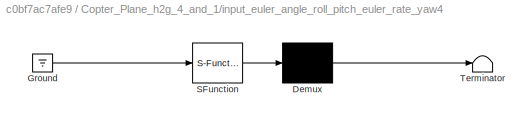
BLOCK [SubSystem] Copter_Plane_h2g_4_and_1/input_euler_angle_roll_pitch_euler_rate_yaw4
  ErrorFcn = Stateflow.Translate.translate
  PermitHierarchicalResolution = ExplicitOnly
  Ports = []
  RequestExecContextInheritance = off
  SFBlockType = MATLAB Function
  TreatAsAtomicUnit = on
BLOCK [Demux] Copter_Plane_h2g_4_and_1/input_euler_angle_roll_pitch_euler_rate_yaw4/ Demux 
  Outputs = 1
  Ports = [1, 1]
BLOCK [Ground] Copter_Plane_h2g_4_and_1/input_euler_angle_roll_pitch_euler_rate_yaw4/ Ground 
BLOCK [S-Function] Copter_Plane_h2g_4_and_1/input_euler_angle_roll_pitch_euler_rate_yaw4/ SFunction 
  EnableBusSupport = on
  FunctionName = sf_sfun
  PortCounts = [1 1]
  Ports = [1, 1]
  SFcnIsStateOwnerBlock = off
  SFunctionDeploymentMode = off
  Tag = Stateflow S-Function 10
BLOCK [Terminator] Copter_Plane_h2g_4_and_1/input_euler_angle_roll_pitch_euler_rate_yaw4/ Terminator 
BLOCK [DataStoreMemory] Copter_Plane_h2g_4_and_1/input_tc1
  DataStoreName = input_tc
  InitialValue = input_tc
  OutDataTypeStr = double
  ReadBeforeWriteMsg = warning
  ShowAdditionalParam = off
  SignalType = real
  VectorParams1D = off
  WriteAfterReadMsg = warning
  WriteAfterWriteMsg = warning
BLOCK [DataStoreMemory] Copter_Plane_h2g_4_and_1/integDTAS_state1
  DataStoreName = integDTAS_state
  InitialValue = integDTAS_state
  OutDataTypeStr = double
  ReadBeforeWriteMsg = warning
  ShowAdditionalParam = off
  SignalType = real
  VectorParams1D = off
  WriteAfterReadMsg = warning
  WriteAfterWriteMsg = warning
BLOCK [DataStoreMemory] Copter_Plane_h2g_4_and_1/integGain1
  DataStoreName = integGain
  InitialValue = integGain
  OutDataTypeStr = double
  ReadBeforeWriteMsg = warning
  ShowAdditionalParam = off
  SignalType = real
  VectorParams1D = off
  WriteAfterReadMsg = warning
  WriteAfterWriteMsg = warning
BLOCK [DataStoreMemory] Copter_Plane_h2g_4_and_1/integSEB_state1
  DataStoreName = integSEB_state
  InitialValue = integSEB_state
  OutDataTypeStr = double
  ReadBeforeWriteMsg = warning
  ShowAdditionalParam = off
  SignalType = real
  VectorParams1D = off
  WriteAfterReadMsg = warning
  WriteAfterWriteMsg = warning
BLOCK [DataStoreMemory] Copter_Plane_h2g_4_and_1/integTHR_state1
  DataStoreName = integTHR_state
  InitialValue = integTHR_state
  OutDataTypeStr = double
  ReadBeforeWriteMsg = warning
  ShowAdditionalParam = off
  SignalType = real
  VectorParams1D = off
  WriteAfterReadMsg = warning
  WriteAfterWriteMsg = warning
BLOCK [DataStoreMemory] Copter_Plane_h2g_4_and_1/integrator_yaw1
  DataStoreName = integrator_yaw
  InitialValue = integrator_yaw
  OutDataTypeStr = double
  ReadBeforeWriteMsg = warning
  ShowAdditionalParam = off
  SignalType = real
  WriteAfterReadMsg = warning
  WriteAfterWriteMsg = warning
BLOCK [DataStoreMemory] Copter_Plane_h2g_4_and_1/inverted_flight1
  DataStoreName = inverted_flight
  InitialValue = inverted_flight
  OutDataTypeStr = double
  ReadBeforeWriteMsg = warning
  ShowAdditionalParam = off
  SignalType = real
  WriteAfterReadMsg = warning
  WriteAfterWriteMsg = warning
BLOCK [DataStoreMemory] Copter_Plane_h2g_4_and_1/is_active_xy1
  DataStoreName = is_active_xy
  InitialValue = is_active_xy
  OutDataTypeStr = double
  ReadBeforeWriteMsg = warning
  ShowAdditionalParam = off
  SignalType = real
  VectorParams1D = off
  WriteAfterReadMsg = warning
  WriteAfterWriteMsg = warning
BLOCK [DataStoreMemory] Copter_Plane_h2g_4_and_1/is_active_z1
  DataStoreName = is_active_z
  InitialValue = is_active_z
  OutDataTypeStr = double
  ReadBeforeWriteMsg = warning
  ShowAdditionalParam = off
  SignalType = real
  VectorParams1D = off
  WriteAfterReadMsg = warning
  WriteAfterWriteMsg = warning
BLOCK [DataStoreMemory] Copter_Plane_h2g_4_and_1/k_aileron1
  DataStoreName = k_aileron
  InitialValue = k_aileron
  OutDataTypeStr = double
  ReadBeforeWriteMsg = warning
  ShowAdditionalParam = off
  SignalType = real
  WriteAfterReadMsg = warning
  WriteAfterWriteMsg = warning
BLOCK [DataStoreMemory] Copter_Plane_h2g_4_and_1/k_elevator1
  DataStoreName = k_elevator
  InitialValue = k_elevator
  OutDataTypeStr = double
  ReadBeforeWriteMsg = warning
  ShowAdditionalParam = off
  SignalType = real
  WriteAfterReadMsg = warning
  WriteAfterWriteMsg = warning
BLOCK [DataStoreMemory] Copter_Plane_h2g_4_and_1/k_rudder1
  DataStoreName = k_rudder
  InitialValue = k_rudder
  OutDataTypeStr = double
  ReadBeforeWriteMsg = warning
  ShowAdditionalParam = off
  SignalType = real
  WriteAfterReadMsg = warning
  WriteAfterWriteMsg = warning
BLOCK [DataStoreMemory] Copter_Plane_h2g_4_and_1/k_throttle1
  DataStoreName = k_throttle
  InitialValue = k_throttle
  OutDataTypeStr = double
  ReadBeforeWriteMsg = warning
  ShowAdditionalParam = off
  SignalType = real
  WriteAfterReadMsg = warning
  WriteAfterWriteMsg = warning
BLOCK [DataStoreMemory] Copter_Plane_h2g_4_and_1/k_throttle_c2p
  DataStoreName = k_throttle_c2p
  InitialValue = k_throttle_c2p
  OutDataTypeStr = double
  ReadBeforeWriteMsg = warning
  ShowAdditionalParam = off
  SignalType = real
  VectorParams1D = off
  WriteAfterReadMsg = warning
  WriteAfterWriteMsg = warning
BLOCK [DataStoreMemory] Copter_Plane_h2g_4_and_1/kff_rudder_mix1
  DataStoreName = kff_rudder_mix
  InitialValue = kff_rudder_mix
  OutDataTypeStr = double
  ReadBeforeWriteMsg = warning
  ShowAdditionalParam = off
  SignalType = real
  WriteAfterReadMsg = warning
  WriteAfterWriteMsg = warning
BLOCK [DataStoreMemory] Copter_Plane_h2g_4_and_1/kff_throttle_to_pitch1
  DataStoreName = kff_throttle_to_pitch
  InitialValue = kff_throttle_to_pitch
  OutDataTypeStr = double
  ReadBeforeWriteMsg = warning
  ShowAdditionalParam = off
  SignalType = real
  WriteAfterReadMsg = warning
  WriteAfterWriteMsg = warning
BLOCK [DataStoreMemory] Copter_Plane_h2g_4_and_1/last_Nu1
  DataStoreName = last_Nu
  InitialValue = last_Nu
  OutDataTypeStr = double
  ReadBeforeWriteMsg = warning
  ShowAdditionalParam = off
  SignalType = real
  VectorParams1D = off
  WriteAfterReadMsg = warning
  WriteAfterWriteMsg = warning
BLOCK [DataStoreMemory] Copter_Plane_h2g_4_and_1/last_out_pitch1
  DataStoreName = last_out_pitch
  InitialValue = last_out_pitch
  OutDataTypeStr = double
  ReadBeforeWriteMsg = warning
  ShowAdditionalParam = off
  SignalType = real
  WriteAfterReadMsg = warning
  WriteAfterWriteMsg = warning
BLOCK [DataStoreMemory] Copter_Plane_h2g_4_and_1/last_out_roll1
  DataStoreName = last_out_roll
  InitialValue = last_out_roll
  OutDataTypeStr = double
  ReadBeforeWriteMsg = warning
  ShowAdditionalParam = off
  SignalType = real
  WriteAfterReadMsg = warning
  WriteAfterWriteMsg = warning
BLOCK [DataStoreMemory] Copter_Plane_h2g_4_and_1/last_out_yaw1
  DataStoreName = last_out_yaw
  InitialValue = last_out_yaw
  OutDataTypeStr = double
  ReadBeforeWriteMsg = warning
  ShowAdditionalParam = off
  SignalType = real
  WriteAfterReadMsg = warning
  WriteAfterWriteMsg = warning
BLOCK [DataStoreMemory] Copter_Plane_h2g_4_and_1/last_pitch_dem1
  DataStoreName = last_pitch_dem
  InitialValue = last_pitch_dem
  OutDataTypeStr = double
  ReadBeforeWriteMsg = warning
  ShowAdditionalParam = off
  SignalType = real
  VectorParams1D = off
  WriteAfterReadMsg = warning
  WriteAfterWriteMsg = warning
BLOCK [DataStoreMemory] Copter_Plane_h2g_4_and_1/last_rate_hp_in_yaw1
  DataStoreName = last_rate_hp_in_yaw
  InitialValue = last_rate_hp_in_yaw
  OutDataTypeStr = double
  ReadBeforeWriteMsg = warning
  ShowAdditionalParam = off
  SignalType = real
  WriteAfterReadMsg = warning
  WriteAfterWriteMsg = warning
BLOCK [DataStoreMemory] Copter_Plane_h2g_4_and_1/last_rate_hp_out_yaw1
  DataStoreName = last_rate_hp_out_yaw
  InitialValue = last_rate_hp_out_yaw
  OutDataTypeStr = double
  ReadBeforeWriteMsg = warning
  ShowAdditionalParam = off
  SignalType = real
  WriteAfterReadMsg = warning
  WriteAfterWriteMsg = warning
BLOCK [DataStoreMemory] Copter_Plane_h2g_4_and_1/last_throttle_dem1
  DataStoreName = last_throttle_dem
  InitialValue = last_throttle_dem
  OutDataTypeStr = double
  ReadBeforeWriteMsg = warning
  ShowAdditionalParam = off
  SignalType = real
  VectorParams1D = off
  WriteAfterReadMsg = warning
  WriteAfterWriteMsg = warning
BLOCK [DataStoreMemory] Copter_Plane_h2g_4_and_1/latAccDem1
  DataStoreName = latAccDem
  InitialValue = latAccDem
  OutDataTypeStr = double
  ReadBeforeWriteMsg = warning
  ShowAdditionalParam = off
  SignalType = real
  VectorParams1D = off
  WriteAfterReadMsg = warning
  WriteAfterWriteMsg = warning
BLOCK [DataStoreMemory] Copter_Plane_h2g_4_and_1/leash1
  DataStoreName = leash
  InitialValue = POSCONTROL_LEASH_LENGTH_MIN
  OutDataTypeStr = double
  ReadBeforeWriteMsg = warning
  ShowAdditionalParam = off
  SignalType = real
  WriteAfterReadMsg = warning
  WriteAfterWriteMsg = warning
BLOCK [DataStoreMemory] Copter_Plane_h2g_4_and_1/leash_down_z1
  DataStoreName = leash_down_z
  InitialValue = POSCONTROL_LEASH_LENGTH_MIN
  OutDataTypeStr = double
  ReadBeforeWriteMsg = warning
  ShowAdditionalParam = off
  SignalType = real
  WriteAfterReadMsg = warning
  WriteAfterWriteMsg = warning
BLOCK [DataStoreMemory] Copter_Plane_h2g_4_and_1/leash_up_z1
  DataStoreName = leash_up_z
  InitialValue = POSCONTROL_LEASH_LENGTH_MIN
  OutDataTypeStr = double
  ReadBeforeWriteMsg = warning
  ShowAdditionalParam = off
  SignalType = real
  WriteAfterReadMsg = warning
  WriteAfterWriteMsg = warning
BLOCK [DataStoreMemory] Copter_Plane_h2g_4_and_1/limit_accel_xy1
  DataStoreName = limit_accel_xy
  InitialValue = limit_accel_xy
  OutDataTypeStr = double
  ReadBeforeWriteMsg = warning
  ShowAdditionalParam = off
  SignalType = real
  VectorParams1D = off
  WriteAfterReadMsg = warning
  WriteAfterWriteMsg = warning
BLOCK [DataStoreMemory] Copter_Plane_h2g_4_and_1/limit_pos_down1
  DataStoreName = limit_pos_down
  InitialValue = limit_pos_down
  OutDataTypeStr = double
  ReadBeforeWriteMsg = warning
  ShowAdditionalParam = off
  SignalType = real
  VectorParams1D = off
  WriteAfterReadMsg = warning
  WriteAfterWriteMsg = warning
BLOCK [DataStoreMemory] Copter_Plane_h2g_4_and_1/limit_pos_up1
  DataStoreName = limit_pos_up
  InitialValue = limit_pos_up
  OutDataTypeStr = double
  ReadBeforeWriteMsg = warning
  ShowAdditionalParam = off
  SignalType = real
  VectorParams1D = off
  WriteAfterReadMsg = warning
  WriteAfterWriteMsg = warning
BLOCK [DataStoreMemory] Copter_Plane_h2g_4_and_1/limit_roll_pitch1
  DataStoreName = limit_roll_pitch
  InitialValue = limit_roll_pitch
  OutDataTypeStr = double
  ReadBeforeWriteMsg = warning
  ShowAdditionalParam = off
  SignalType = real
  VectorParams1D = off
  WriteAfterReadMsg = warning
  WriteAfterWriteMsg = warning
BLOCK [DataStoreMemory] Copter_Plane_h2g_4_and_1/limit_vel_down1
  DataStoreName = limit_vel_down
  InitialValue = limit_vel_down
  OutDataTypeStr = double
  ReadBeforeWriteMsg = warning
  ShowAdditionalParam = off
  SignalType = real
  VectorParams1D = off
  WriteAfterReadMsg = warning
  WriteAfterWriteMsg = warning
BLOCK [DataStoreMemory] Copter_Plane_h2g_4_and_1/limit_vel_up1
  DataStoreName = limit_vel_up
  InitialValue = limit_vel_up
  OutDataTypeStr = double
  ReadBeforeWriteMsg = warning
  ShowAdditionalParam = off
  SignalType = real
  WriteAfterReadMsg = warning
  WriteAfterWriteMsg = warning
BLOCK [DataStoreMemory] Copter_Plane_h2g_4_and_1/limit_yaw1
  DataStoreName = limit_yaw
  InitialValue = limit_yaw
  OutDataTypeStr = double
  ReadBeforeWriteMsg = warning
  ShowAdditionalParam = off
  SignalType = real
  VectorParams1D = off
  WriteAfterReadMsg = warning
  WriteAfterWriteMsg = warning
BLOCK [DataStoreMemory] Copter_Plane_h2g_4_and_1/loc1
  DataStoreName = loc
  InitialValue = loc
  OutDataTypeStr = Bus: Bus_wp
  ReadBeforeWriteMsg = warning
  ShowAdditionalParam = off
  SignalType = real
  VectorParams1D = off
  WriteAfterReadMsg = warning
  WriteAfterWriteMsg = warning
BLOCK [DataStoreMemory] Copter_Plane_h2g_4_and_1/loc_origin1
  DataStoreName = loc_origin
  InitialValue = loc_origin
  OutDataTypeStr = double
  ReadBeforeWriteMsg = warning
  ShowAdditionalParam = off
  SignalType = real
  VectorParams1D = off
  WriteAfterReadMsg = warning
  WriteAfterWriteMsg = warning
BLOCK [DataStoreMemory] Copter_Plane_h2g_4_and_1/loiter_bank_limit1
  DataStoreName = loiter_bank_limit
  InitialValue = loiter_bank_limit
  OutDataTypeStr = double
  ReadBeforeWriteMsg = warning
  ShowAdditionalParam = off
  SignalType = real
  VectorParams1D = off
  WriteAfterReadMsg = warning
  WriteAfterWriteMsg = warning
BLOCK [DataStoreMemory] Copter_Plane_h2g_4_and_1/loiter_direction1
  DataStoreName = loiter_direction
  InitialValue = loiter_direction
  OutDataTypeStr = double
  ReadBeforeWriteMsg = warning
  ShowAdditionalParam = off
  SignalType = real
  VectorParams1D = off
  WriteAfterReadMsg = warning
  WriteAfterWriteMsg = warning
BLOCK [DataStoreMemory] Copter_Plane_h2g_4_and_1/maxClimbRate1
  DataStoreName = maxClimbRate
  InitialValue = maxClimbRate
  OutDataTypeStr = double
  ReadBeforeWriteMsg = warning
  ShowAdditionalParam = off
  SignalType = real
  VectorParams1D = off
  WriteAfterReadMsg = warning
  WriteAfterWriteMsg = warning
BLOCK [DataStoreMemory] Copter_Plane_h2g_4_and_1/maxSinkRate1
  DataStoreName = maxSinkRate
  InitialValue = maxSinkRate
  OutDataTypeStr = double
  ReadBeforeWriteMsg = warning
  ShowAdditionalParam = off
  SignalType = real
  VectorParams1D = off
  WriteAfterReadMsg = warning
  WriteAfterWriteMsg = warning
BLOCK [DataStoreMemory] Copter_Plane_h2g_4_and_1/max_rate_neg1
  DataStoreName = max_rate_neg
  InitialValue = max_rate_neg
  OutDataTypeStr = double
  ReadBeforeWriteMsg = warning
  ShowAdditionalParam = off
  SignalType = real
  WriteAfterReadMsg = warning
  WriteAfterWriteMsg = warning
BLOCK [DataStoreMemory] Copter_Plane_h2g_4_and_1/minSinkRate1
  DataStoreName = minSinkRate
  InitialValue = minSinkRate
  OutDataTypeStr = double
  ReadBeforeWriteMsg = warning
  ShowAdditionalParam = off
  SignalType = real
  VectorParams1D = off
  WriteAfterReadMsg = warning
  WriteAfterWriteMsg = warning
BLOCK [DataStoreMemory] Copter_Plane_h2g_4_and_1/mode1
  DataStoreName = mode
  InitialValue = mode
  OutDataTypeStr = double
  ReadBeforeWriteMsg = warning
  ShowAdditionalParam = off
  SignalType = real
  VectorParams1D = off
  WriteAfterReadMsg = warning
  WriteAfterWriteMsg = warning
BLOCK [DataStoreMemory] Copter_Plane_h2g_4_and_1/mode_L2
  DataStoreName = mode_L1
  InitialValue = mode_L1
  OutDataTypeStr = double
  ReadBeforeWriteMsg = warning
  ShowAdditionalParam = off
  SignalType = real
  VectorParams1D = off
  WriteAfterReadMsg = warning
  WriteAfterWriteMsg = warning
BLOCK [DataStoreMemory] Copter_Plane_h2g_4_and_1/motors_limit_roll_pitch1
  DataStoreName = motors_limit_roll_pitch
  InitialValue = motors_limit_roll_pitch
  OutDataTypeStr = double
  ReadBeforeWriteMsg = warning
  ShowAdditionalParam = off
  SignalType = real
  VectorParams1D = off
  WriteAfterReadMsg = warning
  WriteAfterWriteMsg = warning
BLOCK [DataStoreMemory] Copter_Plane_h2g_4_and_1/motors_limit_throttle_upper1
  DataStoreName = motors_limit_throttle_upper
  InitialValue = motors_limit_throttle_upper
  OutDataTypeStr = double
  ReadBeforeWriteMsg = warning
  ShowAdditionalParam = off
  SignalType = real
  VectorParams1D = off
  WriteAfterReadMsg = warning
  WriteAfterWriteMsg = warning
BLOCK [DataStoreMemory] Copter_Plane_h2g_4_and_1/motors_limit_yaw1
  DataStoreName = motors_limit_yaw
  InitialValue = motors_limit_yaw
  OutDataTypeStr = double
  ReadBeforeWriteMsg = warning
  ShowAdditionalParam = off
  SignalType = real
  VectorParams1D = off
  WriteAfterReadMsg = warning
  WriteAfterWriteMsg = warning
BLOCK [DataStoreMemory] Copter_Plane_h2g_4_and_1/nav_bearing1
  DataStoreName = nav_bearing
  InitialValue = nav_bearing
  OutDataTypeStr = double
  ReadBeforeWriteMsg = warning
  ShowAdditionalParam = off
  SignalType = real
  VectorParams1D = off
  WriteAfterReadMsg = warning
  WriteAfterWriteMsg = warning
BLOCK [DataStoreMemory] Copter_Plane_h2g_4_and_1/nav_pitch_cd1
  DataStoreName = nav_pitch_cd
  InitialValue = nav_pitch_cd
  OutDataTypeStr = double
  ReadBeforeWriteMsg = warning
  ShowAdditionalParam = off
  SignalType = real
  WriteAfterReadMsg = warning
  WriteAfterWriteMsg = warning
BLOCK [DataStoreMemory] Copter_Plane_h2g_4_and_1/nav_roll_cd1
  DataStoreName = nav_roll_cd
  InitialValue = nav_roll_cd
  OutDataTypeStr = double
  ReadBeforeWriteMsg = warning
  ShowAdditionalParam = off
  SignalType = real
  WriteAfterReadMsg = warning
  WriteAfterWriteMsg = warning
BLOCK [DataStoreMemory] Copter_Plane_h2g_4_and_1/next_WP1
  DataStoreName = next_WP
  InitialValue = next_WP
  OutDataTypeStr = double
  ReadBeforeWriteMsg = warning
  ShowAdditionalParam = off
  SignalType = real
  VectorParams1D = off
  WriteAfterReadMsg = warning
  WriteAfterWriteMsg = warning
BLOCK [DataStoreMemory] Copter_Plane_h2g_4_and_1/p_angle_pitch1
  DataStoreName = p_angle_pitch
  InitialValue = p_angle_pitch
  OutDataTypeStr = double
  ReadBeforeWriteMsg = warning
  ShowAdditionalParam = off
  SignalType = real
  VectorParams1D = off
  WriteAfterReadMsg = warning
  WriteAfterWriteMsg = warning
BLOCK [DataStoreMemory] Copter_Plane_h2g_4_and_1/p_angle_roll1
  DataStoreName = p_angle_roll
  InitialValue = p_angle_roll
  OutDataTypeStr = double
  ReadBeforeWriteMsg = warning
  ShowAdditionalParam = off
  SignalType = real
  WriteAfterReadMsg = warning
  WriteAfterWriteMsg = warning
BLOCK [DataStoreMemory] Copter_Plane_h2g_4_and_1/p_angle_yaw1
  DataStoreName = p_angle_yaw
  InitialValue = p_angle_yaw
  OutDataTypeStr = double
  ReadBeforeWriteMsg = warning
  ShowAdditionalParam = off
  SignalType = real
  WriteAfterReadMsg = warning
  WriteAfterWriteMsg = warning
BLOCK [DataStoreMemory] Copter_Plane_h2g_4_and_1/p_ff_throttle1
  DataStoreName = p_ff_throttle
  InitialValue = p_ff_throttle
  OutDataTypeStr = double
  ReadBeforeWriteMsg = warning
  ShowAdditionalParam = off
  SignalType = real
  VectorParams1D = off
  WriteAfterReadMsg = warning
  WriteAfterWriteMsg = warning
BLOCK [DataStoreMemory] Copter_Plane_h2g_4_and_1/p_plane_c2p1
  DataStoreName = p_plane_c2p
  InitialValue = p_plane_c2p
  OutDataTypeStr = double
  ReadBeforeWriteMsg = warning
  ShowAdditionalParam = off
  SignalType = real
  VectorParams1D = off
  WriteAfterReadMsg = warning
  WriteAfterWriteMsg = warning
BLOCK [DataStoreMemory] Copter_Plane_h2g_4_and_1/p_plane_cp1
  DataStoreName = p_plane_cp
  InitialValue = p_plane_cp
  OutDataTypeStr = double
  ReadBeforeWriteMsg = warning
  ShowAdditionalParam = off
  SignalType = real
  VectorParams1D = off
  WriteAfterReadMsg = warning
  WriteAfterWriteMsg = warning
BLOCK [DataStoreMemory] Copter_Plane_h2g_4_and_1/p_tail_tilt1
  DataStoreName = p_tail_tilt
  InitialValue = p_tail_tilt
  OutDataTypeStr = double
  ReadBeforeWriteMsg = warning
  ShowAdditionalParam = off
  SignalType = real
  VectorParams1D = off
  WriteAfterReadMsg = warning
  WriteAfterWriteMsg = warning
BLOCK [DataStoreMemory] Copter_Plane_h2g_4_and_1/p_tilt_pitch_target1
  DataStoreName = p_tilt_pitch_target
  InitialValue = p_tilt_pitch_target
  OutDataTypeStr = double
  ReadBeforeWriteMsg = warning
  ShowAdditionalParam = off
  SignalType = real
  VectorParams1D = off
  WriteAfterReadMsg = warning
  WriteAfterWriteMsg = warning
BLOCK [DataStoreMemory] Copter_Plane_h2g_4_and_1/pid_accel_z_derivative1
  DataStoreName = pid_accel_z_derivative
  InitialValue = pid_accel_z_derivative
  OutDataTypeStr = double
  ReadBeforeWriteMsg = warning
  ShowAdditionalParam = off
  SignalType = real
  VectorParams1D = off
  WriteAfterReadMsg = warning
  WriteAfterWriteMsg = warning
BLOCK [DataStoreMemory] Copter_Plane_h2g_4_and_1/pid_accel_z_input1
  DataStoreName = pid_accel_z_input
  InitialValue = pid_accel_z_input
  OutDataTypeStr = double
  ReadBeforeWriteMsg = warning
  ShowAdditionalParam = off
  SignalType = real
  VectorParams1D = off
  WriteAfterReadMsg = warning
  WriteAfterWriteMsg = warning
BLOCK [DataStoreMemory] Copter_Plane_h2g_4_and_1/pid_accel_z_integrator1
  DataStoreName = pid_accel_z_integrator
  InitialValue = pid_accel_z_integrator
  OutDataTypeStr = double
  ReadBeforeWriteMsg = warning
  ShowAdditionalParam = off
  SignalType = real
  VectorParams1D = off
  WriteAfterReadMsg = warning
  WriteAfterWriteMsg = warning
BLOCK [DataStoreMemory] Copter_Plane_h2g_4_and_1/pid_accel_z_reset_filter1
  DataStoreName = pid_accel_z_reset_filter
  InitialValue = pid_accel_z_reset_filter
  OutDataTypeStr = double
  ReadBeforeWriteMsg = warning
  ShowAdditionalParam = off
  SignalType = real
  VectorParams1D = off
  WriteAfterReadMsg = warning
  WriteAfterWriteMsg = warning
BLOCK [DataStoreMemory] Copter_Plane_h2g_4_and_1/pid_info_D_pitch1
  DataStoreName = pid_info_D_pitch
  InitialValue = pid_info_D_pitch
  OutDataTypeStr = double
  ReadBeforeWriteMsg = warning
  ShowAdditionalParam = off
  SignalType = real
  WriteAfterReadMsg = warning
  WriteAfterWriteMsg = warning
BLOCK [DataStoreMemory] Copter_Plane_h2g_4_and_1/pid_info_D_roll1
  DataStoreName = pid_info_D_roll
  InitialValue = pid_info_D_roll
  OutDataTypeStr = double
  ReadBeforeWriteMsg = warning
  ShowAdditionalParam = off
  SignalType = real
  WriteAfterReadMsg = warning
  WriteAfterWriteMsg = warning
BLOCK [DataStoreMemory] Copter_Plane_h2g_4_and_1/pid_info_D_yaw1
  DataStoreName = pid_info_D_yaw
  InitialValue = pid_info_D_yaw
  OutDataTypeStr = double
  ReadBeforeWriteMsg = warning
  ShowAdditionalParam = off
  SignalType = real
  WriteAfterReadMsg = warning
  WriteAfterWriteMsg = warning
BLOCK [DataStoreMemory] Copter_Plane_h2g_4_and_1/pid_info_FF1
  DataStoreName = pid_info_FF_pitch
  InitialValue = pid_info_FF_pitch
  OutDataTypeStr = double
  ReadBeforeWriteMsg = warning
  ShowAdditionalParam = off
  SignalType = real
  WriteAfterReadMsg = warning
  WriteAfterWriteMsg = warning
BLOCK [DataStoreMemory] Copter_Plane_h2g_4_and_1/pid_info_FF_roll1
  DataStoreName = pid_info_FF_roll
  InitialValue = pid_info_FF_roll
  OutDataTypeStr = double
  ReadBeforeWriteMsg = warning
  ShowAdditionalParam = off
  SignalType = real
  WriteAfterReadMsg = warning
  WriteAfterWriteMsg = warning
BLOCK [DataStoreMemory] Copter_Plane_h2g_4_and_1/pid_info_I_pitch1
  DataStoreName = pid_info_I_pitch
  InitialValue = pid_info_I_pitch
  OutDataTypeStr = double
  ReadBeforeWriteMsg = warning
  ShowAdditionalParam = off
  SignalType = real
  WriteAfterReadMsg = warning
  WriteAfterWriteMsg = warning
BLOCK [DataStoreMemory] Copter_Plane_h2g_4_and_1/pid_info_I_roll1
  DataStoreName = pid_info_I_roll
  InitialValue = pid_info_I_roll
  OutDataTypeStr = double
  ReadBeforeWriteMsg = warning
  ShowAdditionalParam = off
  SignalType = real
  WriteAfterReadMsg = warning
  WriteAfterWriteMsg = warning
BLOCK [DataStoreMemory] Copter_Plane_h2g_4_and_1/pid_info_I_yaw1
  DataStoreName = pid_info_I_yaw
  InitialValue = pid_info_I_yaw
  OutDataTypeStr = double
  ReadBeforeWriteMsg = warning
  ShowAdditionalParam = off
  SignalType = real
  WriteAfterReadMsg = warning
  WriteAfterWriteMsg = warning
BLOCK [DataStoreMemory] Copter_Plane_h2g_4_and_1/pid_info_P_pitch1
  DataStoreName = pid_info_P_pitch
  InitialValue = pid_info_P_pitch
  OutDataTypeStr = double
  ReadBeforeWriteMsg = warning
  ShowAdditionalParam = off
  SignalType = real
  WriteAfterReadMsg = warning
  WriteAfterWriteMsg = warning
BLOCK [DataStoreMemory] Copter_Plane_h2g_4_and_1/pid_info_P_roll1
  DataStoreName = pid_info_P_roll
  InitialValue = pid_info_P_roll
  OutDataTypeStr = double
  ReadBeforeWriteMsg = warning
  ShowAdditionalParam = off
  SignalType = real
  WriteAfterReadMsg = warning
  WriteAfterWriteMsg = warning
BLOCK [DataStoreMemory] Copter_Plane_h2g_4_and_1/pid_info_actua_pitchl1
  DataStoreName = pid_info_actual_pitch
  InitialValue = pid_info_actual_pitch
  OutDataTypeStr = double
  ReadBeforeWriteMsg = warning
  ShowAdditionalParam = off
  SignalType = real
  WriteAfterReadMsg = warning
  WriteAfterWriteMsg = warning
BLOCK [DataStoreMemory] Copter_Plane_h2g_4_and_1/pid_info_actual_roll1
  DataStoreName = pid_info_actual_roll
  InitialValue = pid_info_actual_roll
  OutDataTypeStr = double
  ReadBeforeWriteMsg = warning
  ShowAdditionalParam = off
  SignalType = real
  WriteAfterReadMsg = warning
  WriteAfterWriteMsg = warning
BLOCK [DataStoreMemory] Copter_Plane_h2g_4_and_1/pid_info_desired_pitch1
  DataStoreName = pid_info_desired_pitch
  InitialValue = pid_info_desired_pitch
  OutDataTypeStr = double
  ReadBeforeWriteMsg = warning
  ShowAdditionalParam = off
  SignalType = real
  WriteAfterReadMsg = warning
  WriteAfterWriteMsg = warning
BLOCK [DataStoreMemory] Copter_Plane_h2g_4_and_1/pid_info_desired_roll1
  DataStoreName = pid_info_desired_roll
  InitialValue = pid_info_desired_roll
  OutDataTypeStr = double
  ReadBeforeWriteMsg = warning
  ShowAdditionalParam = off
  SignalType = real
  WriteAfterReadMsg = warning
  WriteAfterWriteMsg = warning
BLOCK [DataStoreMemory] Copter_Plane_h2g_4_and_1/pid_vel_xy_derivative1
  DataStoreName = pid_vel_xy_derivative
  InitialValue = pid_vel_xy_derivative
  OutDataTypeStr = double
  ReadBeforeWriteMsg = warning
  ShowAdditionalParam = off
  SignalType = real
  VectorParams1D = off
  WriteAfterReadMsg = warning
  WriteAfterWriteMsg = warning
BLOCK [DataStoreMemory] Copter_Plane_h2g_4_and_1/pid_vel_xy_input1
  DataStoreName = pid_vel_xy_input
  InitialValue = pid_vel_xy_input
  OutDataTypeStr = double
  ReadBeforeWriteMsg = warning
  ShowAdditionalParam = off
  SignalType = real
  VectorParams1D = off
  WriteAfterReadMsg = warning
  WriteAfterWriteMsg = warning
BLOCK [DataStoreMemory] Copter_Plane_h2g_4_and_1/pid_vel_xy_integrator1
  DataStoreName = pid_vel_xy_integrator
  InitialValue = pid_vel_xy_integrator
  OutDataTypeStr = double
  ReadBeforeWriteMsg = warning
  ShowAdditionalParam = off
  SignalType = real
  VectorParams1D = off
  WriteAfterReadMsg = warning
  WriteAfterWriteMsg = warning
BLOCK [DataStoreMemory] Copter_Plane_h2g_4_and_1/pid_vel_xy_reset_filter1
  DataStoreName = pid_vel_xy_reset_filter
  InitialValue = pid_vel_xy_reset_filter
  OutDataTypeStr = double
  ReadBeforeWriteMsg = warning
  ShowAdditionalParam = off
  SignalType = real
  VectorParams1D = off
  WriteAfterReadMsg = warning
  WriteAfterWriteMsg = warning
BLOCK [DataStoreMemory] Copter_Plane_h2g_4_and_1/pitch1
  DataStoreName = pitch
  InitialValue = pitch
  OutDataTypeStr = double
  ReadBeforeWriteMsg = warning
  ShowAdditionalParam = off
  SignalType = real
  WriteAfterReadMsg = warning
  WriteAfterWriteMsg = warning
BLOCK [DataStoreMemory] Copter_Plane_h2g_4_and_1/pitch_dem1
  DataStoreName = pitch_dem
  InitialValue = pitch_dem
  OutDataTypeStr = double
  ReadBeforeWriteMsg = warning
  ShowAdditionalParam = off
  SignalType = real
  VectorParams1D = off
  WriteAfterReadMsg = warning
  WriteAfterWriteMsg = warning
BLOCK [DataStoreMemory] Copter_Plane_h2g_4_and_1/pitch_dem_unc1
  DataStoreName = pitch_dem_unc
  InitialValue = pitch_dem_unc
  OutDataTypeStr = double
  ReadBeforeWriteMsg = warning
  ShowAdditionalParam = off
  SignalType = real
  VectorParams1D = off
  WriteAfterReadMsg = warning
  WriteAfterWriteMsg = warning
BLOCK [DataStoreMemory] Copter_Plane_h2g_4_and_1/pitch_factor1
  DataStoreName = pitch_factor
  InitialValue = pitch_factor
  OutDataTypeStr = double
  ReadBeforeWriteMsg = warning
  ShowAdditionalParam = off
  SignalType = real
  VectorParams1D = off
  WriteAfterReadMsg = warning
  WriteAfterWriteMsg = warning
BLOCK [DataStoreMemory] Copter_Plane_h2g_4_and_1/pitch_in1
  DataStoreName = pitch_in
  InitialValue = pitch_in
  OutDataTypeStr = double
  ReadBeforeWriteMsg = warning
  ShowAdditionalParam = off
  SignalType = real
  VectorParams1D = off
  WriteAfterReadMsg = warning
  WriteAfterWriteMsg = warning
BLOCK [DataStoreMemory] Copter_Plane_h2g_4_and_1/pitch_limit_max_cd1
  DataStoreName = pitch_limit_max_cd
  InitialValue = pitch_limit_max_cd
  OutDataTypeStr = double
  ReadBeforeWriteMsg = warning
  ShowAdditionalParam = off
  SignalType = real
  VectorParams1D = off
  WriteAfterReadMsg = warning
  WriteAfterWriteMsg = warning
BLOCK [DataStoreMemory] Copter_Plane_h2g_4_and_1/pitch_limit_min_cd1
  DataStoreName = pitch_limit_min_cd
  InitialValue = pitch_limit_min_cd
  OutDataTypeStr = double
  ReadBeforeWriteMsg = warning
  ShowAdditionalParam = off
  SignalType = real
  VectorParams1D = off
  WriteAfterReadMsg = warning
  WriteAfterWriteMsg = warning
BLOCK [DataStoreMemory] Copter_Plane_h2g_4_and_1/pitch_max1
  DataStoreName = pitch_max
  InitialValue = pitch_max
  OutDataTypeStr = double
  ReadBeforeWriteMsg = warning
  ShowAdditionalParam = off
  SignalType = real
  VectorParams1D = off
  WriteAfterReadMsg = warning
  WriteAfterWriteMsg = warning
BLOCK [DataStoreMemory] Copter_Plane_h2g_4_and_1/pitch_max_limit1
  DataStoreName = pitch_max_limit
  InitialValue = pitch_max_limit
  OutDataTypeStr = double
  ReadBeforeWriteMsg = warning
  ShowAdditionalParam = off
  SignalType = real
  VectorParams1D = off
  WriteAfterReadMsg = warning
  WriteAfterWriteMsg = warning
BLOCK [DataStoreMemory] Copter_Plane_h2g_4_and_1/pitch_min1
  DataStoreName = pitch_min
  InitialValue = pitch_min
  OutDataTypeStr = double
  ReadBeforeWriteMsg = warning
  ShowAdditionalParam = off
  SignalType = real
  VectorParams1D = off
  WriteAfterReadMsg = warning
  WriteAfterWriteMsg = warning
BLOCK [DataStoreMemory] Copter_Plane_h2g_4_and_1/pitch_target1
  DataStoreName = pitch_target
  InitialValue = pitch_target
  OutDataTypeStr = double
  ReadBeforeWriteMsg = warning
  ShowAdditionalParam = off
  SignalType = real
  VectorParams1D = off
  WriteAfterReadMsg = warning
  WriteAfterWriteMsg = warning
BLOCK [DataStoreMemory] Copter_Plane_h2g_4_and_1/pitch_target_c2p
  DataStoreName = pitch_target_c2p
  InitialValue = pitch_target_c2p
  OutDataTypeStr = double
  ReadBeforeWriteMsg = warning
  ShowAdditionalParam = off
  SignalType = real
  VectorParams1D = off
  WriteAfterReadMsg = warning
  WriteAfterWriteMsg = warning
BLOCK [DataStoreMemory] Copter_Plane_h2g_4_and_1/pitch_target_p2c
  DataStoreName = pitch_target_p2c
  InitialValue = pitch_target_p2c
  OutDataTypeStr = double
  ReadBeforeWriteMsg = warning
  ShowAdditionalParam = off
  SignalType = real
  VectorParams1D = off
  WriteAfterReadMsg = warning
  WriteAfterWriteMsg = warning
BLOCK [DataStoreMemory] Copter_Plane_h2g_4_and_1/pitch_target_pilot1
  DataStoreName = pitch_target_pilot
  InitialValue = pitch_target_pilot
  OutDataTypeStr = double
  ReadBeforeWriteMsg = warning
  ShowAdditionalParam = off
  SignalType = real
  VectorParams1D = off
  WriteAfterReadMsg = warning
  WriteAfterWriteMsg = warning
BLOCK [DataStoreMemory] Copter_Plane_h2g_4_and_1/plane_mode
  DataStoreName = plane_mode
  InitialValue = plane_mode
  OutDataTypeStr = Enum: ENUM_plane_mode
  ReadBeforeWriteMsg = warning
  ShowAdditionalParam = off
  SignalType = real
  VectorParams1D = off
  WriteAfterReadMsg = warning
  WriteAfterWriteMsg = warning
BLOCK [DataStoreMemory] Copter_Plane_h2g_4_and_1/pos_error1
  DataStoreName = pos_error
  InitialValue = pos_error
  OutDataTypeStr = double
  ReadBeforeWriteMsg = warning
  ShowAdditionalParam = off
  SignalType = real
  VectorParams1D = off
  WriteAfterReadMsg = warning
  WriteAfterWriteMsg = warning
BLOCK [DataStoreMemory] Copter_Plane_h2g_4_and_1/pos_target1
  DataStoreName = pos_target
  InitialValue = pos_target
  OutDataTypeStr = double
  ReadBeforeWriteMsg = warning
  ShowAdditionalParam = off
  SignalType = real
  VectorParams1D = off
  WriteAfterReadMsg = warning
  WriteAfterWriteMsg = warning
BLOCK [DataStoreMemory] Copter_Plane_h2g_4_and_1/prev_WP1
  DataStoreName = prev_WP
  InitialValue = prev_WP
  OutDataTypeStr = double
  ReadBeforeWriteMsg = warning
  ShowAdditionalParam = off
  SignalType = real
  VectorParams1D = off
  WriteAfterReadMsg = warning
  WriteAfterWriteMsg = warning
BLOCK [DataStoreMemory] Copter_Plane_h2g_4_and_1/ptchDamp1
  DataStoreName = ptchDamp
  InitialValue = ptchDamp
  OutDataTypeStr = double
  ReadBeforeWriteMsg = warning
  ShowAdditionalParam = off
  SignalType = real
  VectorParams1D = off
  WriteAfterReadMsg = warning
  WriteAfterWriteMsg = warning
BLOCK [DataStoreMemory] Copter_Plane_h2g_4_and_1/pwm_max1
  DataStoreName = pwm_max
  InitialValue = pwm_max
  OutDataTypeStr = double
  ReadBeforeWriteMsg = warning
  ShowAdditionalParam = off
  SignalType = real
  WriteAfterReadMsg = warning
  WriteAfterWriteMsg = warning
BLOCK [DataStoreMemory] Copter_Plane_h2g_4_and_1/pwm_min1
  DataStoreName = pwm_min
  InitialValue = pwm_min
  OutDataTypeStr = double
  ReadBeforeWriteMsg = warning
  ShowAdditionalParam = off
  SignalType = real
  WriteAfterReadMsg = warning
  WriteAfterWriteMsg = warning
BLOCK [DataStoreMemory] Copter_Plane_h2g_4_and_1/pwm_out1
  DataStoreName = pwm_out
  InitialValue = pwm_out
  OutDataTypeStr = double
  ReadBeforeWriteMsg = warning
  ShowAdditionalParam = off
  SignalType = real
  WriteAfterReadMsg = warning
  WriteAfterWriteMsg = warning
BLOCK [DataStoreMemory] Copter_Plane_h2g_4_and_1/pwm_tail
  DataStoreName = pwm_tail
  InitialValue = pwm_tail
  OutDataTypeStr = double
  ReadBeforeWriteMsg = warning
  ShowAdditionalParam = off
  SignalType = real
  VectorParams1D = off
  WriteAfterReadMsg = warning
  WriteAfterWriteMsg = warning
BLOCK [DataStoreMemory] Copter_Plane_h2g_4_and_1/radius1
  DataStoreName = radius
  InitialValue = radius
  OutDataTypeStr = double
  ReadBeforeWriteMsg = warning
  ShowAdditionalParam = off
  SignalType = real
  VectorParams1D = off
  WriteAfterReadMsg = warning
  WriteAfterWriteMsg = warning
BLOCK [DataStoreMemory] Copter_Plane_h2g_4_and_1/rate_bf_ff_enabled1
  DataStoreName = rate_bf_ff_enabled
  InitialValue = rate_bf_ff_enabled
  OutDataTypeStr = double
  ReadBeforeWriteMsg = warning
  ShowAdditionalParam = off
  SignalType = real
  WriteAfterReadMsg = warning
  WriteAfterWriteMsg = warning
BLOCK [DataStoreMemory] Copter_Plane_h2g_4_and_1/rate_pitch_pid_derivative1
  DataStoreName = rate_pitch_pid_derivative
  InitialValue = rate_pitch_pid_derivative
  OutDataTypeStr = double
  ReadBeforeWriteMsg = warning
  ShowAdditionalParam = off
  SignalType = real
  VectorParams1D = off
  WriteAfterReadMsg = warning
  WriteAfterWriteMsg = warning
BLOCK [DataStoreMemory] Copter_Plane_h2g_4_and_1/rate_pitch_pid_input1
  DataStoreName = rate_pitch_pid_input
  InitialValue = rate_pitch_pid_input
  OutDataTypeStr = double
  ReadBeforeWriteMsg = warning
  ShowAdditionalParam = off
  SignalType = real
  VectorParams1D = off
  WriteAfterReadMsg = warning
  WriteAfterWriteMsg = warning
BLOCK [DataStoreMemory] Copter_Plane_h2g_4_and_1/rate_pitch_pid_integrator1
  DataStoreName = rate_pitch_pid_integrator
  InitialValue = rate_pitch_pid_integrator
  OutDataTypeStr = double
  ReadBeforeWriteMsg = warning
  ShowAdditionalParam = off
  SignalType = real
  VectorParams1D = off
  WriteAfterReadMsg = warning
  WriteAfterWriteMsg = warning
BLOCK [DataStoreMemory] Copter_Plane_h2g_4_and_1/rate_pitch_pid_reset_filter1
  DataStoreName = rate_pitch_pid_reset_filter
  InitialValue = rate_pitch_pid_reset_filter
  OutDataTypeStr = double
  ReadBeforeWriteMsg = warning
  ShowAdditionalParam = off
  SignalType = real
  VectorParams1D = off
  WriteAfterReadMsg = warning
  WriteAfterWriteMsg = warning
BLOCK [DataStoreMemory] Copter_Plane_h2g_4_and_1/rate_roll_pid_derivative1
  DataStoreName = rate_roll_pid_derivative
  InitialValue = rate_roll_pid_derivative
  OutDataTypeStr = double
  ReadBeforeWriteMsg = warning
  ShowAdditionalParam = off
  SignalType = real
  VectorParams1D = off
  WriteAfterReadMsg = warning
  WriteAfterWriteMsg = warning
BLOCK [DataStoreMemory] Copter_Plane_h2g_4_and_1/rate_roll_pid_input1
  DataStoreName = rate_roll_pid_input
  InitialValue = rate_roll_pid_input
  OutDataTypeStr = double
  ReadBeforeWriteMsg = warning
  ShowAdditionalParam = off
  SignalType = real
  VectorParams1D = off
  WriteAfterReadMsg = warning
  WriteAfterWriteMsg = warning
BLOCK [DataStoreMemory] Copter_Plane_h2g_4_and_1/rate_roll_pid_integrator1
  DataStoreName = rate_roll_pid_integrator
  InitialValue = rate_roll_pid_integrator
  OutDataTypeStr = double
  ReadBeforeWriteMsg = warning
  ShowAdditionalParam = off
  SignalType = real
  VectorParams1D = off
  WriteAfterReadMsg = warning
  WriteAfterWriteMsg = warning
BLOCK [DataStoreMemory] Copter_Plane_h2g_4_and_1/rate_roll_pid_reset_filter1
  DataStoreName = rate_roll_pid_reset_filter
  InitialValue = rate_roll_pid_reset_filter
  OutDataTypeStr = double
  ReadBeforeWriteMsg = warning
  ShowAdditionalParam = off
  SignalType = real
  VectorParams1D = off
  WriteAfterReadMsg = warning
  WriteAfterWriteMsg = warning
BLOCK [DataStoreMemory] Copter_Plane_h2g_4_and_1/rate_target_ang_vel1
  DataStoreName = rate_target_ang_vel
  InitialValue = rate_target_ang_vel
  OutDataTypeStr = double
  ReadBeforeWriteMsg = warning
  ShowAdditionalParam = off
  SignalType = real
  VectorParams1D = off
  WriteAfterReadMsg = warning
  WriteAfterWriteMsg = warning
BLOCK [DataStoreMemory] Copter_Plane_h2g_4_and_1/rate_yaw_pid_derivative1
  DataStoreName = rate_yaw_pid_derivative
  InitialValue = rate_yaw_pid_derivative
  OutDataTypeStr = double
  ReadBeforeWriteMsg = warning
  ShowAdditionalParam = off
  SignalType = real
  VectorParams1D = off
  WriteAfterReadMsg = warning
  WriteAfterWriteMsg = warning
BLOCK [DataStoreMemory] Copter_Plane_h2g_4_and_1/rate_yaw_pid_input1
  DataStoreName = rate_yaw_pid_input
  InitialValue = rate_yaw_pid_input
  OutDataTypeStr = double
  ReadBeforeWriteMsg = warning
  ShowAdditionalParam = off
  SignalType = real
  VectorParams1D = off
  WriteAfterReadMsg = warning
  WriteAfterWriteMsg = warning
BLOCK [DataStoreMemory] Copter_Plane_h2g_4_and_1/rate_yaw_pid_integrator1
  DataStoreName = rate_yaw_pid_integrator
  InitialValue = rate_roll_pid_integrator
  OutDataTypeStr = double
  ReadBeforeWriteMsg = warning
  ShowAdditionalParam = off
  SignalType = real
  VectorParams1D = off
  WriteAfterReadMsg = warning
  WriteAfterWriteMsg = warning
BLOCK [DataStoreMemory] Copter_Plane_h2g_4_and_1/rate_yaw_pid_reset_filter1
  DataStoreName = rate_yaw_pid_reset_filter
  InitialValue = rate_yaw_pid_reset_filter
  OutDataTypeStr = double
  ReadBeforeWriteMsg = warning
  ShowAdditionalParam = off
  SignalType = real
  VectorParams1D = off
  WriteAfterReadMsg = warning
  WriteAfterWriteMsg = warning
BLOCK [DataStoreMemory] Copter_Plane_h2g_4_and_1/recalc_leash_xy1
  DataStoreName = recalc_leash_xy
  InitialValue = recalc_leash_xy
  OutDataTypeStr = double
  ReadBeforeWriteMsg = warning
  ShowAdditionalParam = off
  SignalType = real
  VectorParams1D = off
  WriteAfterReadMsg = warning
  WriteAfterWriteMsg = warning
BLOCK [DataStoreMemory] Copter_Plane_h2g_4_and_1/recalc_leash_z1
  DataStoreName = recalc_leash_z
  InitialValue = recalc_leash_z
  OutDataTypeStr = double
  ReadBeforeWriteMsg = warning
  ShowAdditionalParam = off
  SignalType = real
  WriteAfterReadMsg = warning
  WriteAfterWriteMsg = warning
BLOCK [DataStoreMemory] Copter_Plane_h2g_4_and_1/reset_accel_to_lean_xy1
  DataStoreName = reset_accel_to_lean_xy
  InitialValue = reset_accel_to_lean_xy
  OutDataTypeStr = double
  ReadBeforeWriteMsg = warning
  ShowAdditionalParam = off
  SignalType = real
  VectorParams1D = off
  WriteAfterReadMsg = warning
  WriteAfterWriteMsg = warning
BLOCK [DataStoreMemory] Copter_Plane_h2g_4_and_1/reset_accel_to_throttle1
  DataStoreName = reset_accel_to_throttle
  InitialValue = reset_accel_to_throttle
  OutDataTypeStr = double
  ReadBeforeWriteMsg = warning
  ShowAdditionalParam = off
  SignalType = real
  VectorParams1D = off
  WriteAfterReadMsg = warning
  WriteAfterWriteMsg = warning
BLOCK [DataStoreMemory] Copter_Plane_h2g_4_and_1/reset_desired_vel_to_pos1
  DataStoreName = reset_desired_vel_to_pos
  InitialValue = reset_desired_vel_to_pos
  OutDataTypeStr = double
  ReadBeforeWriteMsg = warning
  ShowAdditionalParam = off
  SignalType = real
  VectorParams1D = off
  WriteAfterReadMsg = warning
  WriteAfterWriteMsg = warning
BLOCK [DataStoreMemory] Copter_Plane_h2g_4_and_1/reset_rate_to_accel_z1
  DataStoreName = reset_rate_to_accel_z
  InitialValue = reset_rate_to_accel_z
  OutDataTypeStr = double
  ReadBeforeWriteMsg = warning
  ShowAdditionalParam = off
  SignalType = real
  VectorParams1D = off
  WriteAfterReadMsg = warning
  WriteAfterWriteMsg = warning
BLOCK [DataStoreMemory] Copter_Plane_h2g_4_and_1/reverse1
  DataStoreName = reverse
  InitialValue = reverse
  OutDataTypeStr = double
  ReadBeforeWriteMsg = warning
  ShowAdditionalParam = off
  SignalType = real
  VectorParams1D = off
  WriteAfterReadMsg = warning
  WriteAfterWriteMsg = warning
BLOCK [DataStoreMemory] Copter_Plane_h2g_4_and_1/roll1
  DataStoreName = roll
  InitialValue = roll
  OutDataTypeStr = double
  ReadBeforeWriteMsg = warning
  ShowAdditionalParam = off
  SignalType = real
  WriteAfterReadMsg = warning
  WriteAfterWriteMsg = warning
BLOCK [DataStoreMemory] Copter_Plane_h2g_4_and_1/rollComp1
  DataStoreName = rollComp
  InitialValue = rollComp
  OutDataTypeStr = double
  ReadBeforeWriteMsg = warning
  ShowAdditionalParam = off
  SignalType = real
  VectorParams1D = off
  WriteAfterReadMsg = warning
  WriteAfterWriteMsg = warning
BLOCK [DataStoreMemory] Copter_Plane_h2g_4_and_1/roll_factor1
  DataStoreName = roll_factor
  InitialValue = roll_factor
  OutDataTypeStr = double
  ReadBeforeWriteMsg = warning
  ShowAdditionalParam = off
  SignalType = real
  VectorParams1D = off
  WriteAfterReadMsg = warning
  WriteAfterWriteMsg = warning
BLOCK [DataStoreMemory] Copter_Plane_h2g_4_and_1/roll_ff_pitch1
  DataStoreName = roll_ff_pitch
  InitialValue = roll_ff_pitch
  OutDataTypeStr = double
  ReadBeforeWriteMsg = warning
  ShowAdditionalParam = off
  SignalType = real
  WriteAfterReadMsg = warning
  WriteAfterWriteMsg = warning
BLOCK [DataStoreMemory] Copter_Plane_h2g_4_and_1/roll_ff_pitch_inint1
  DataStoreName = roll_ff_pitch_inint
  InitialValue = roll_ff_pitch_inint
  OutDataTypeStr = double
  ReadBeforeWriteMsg = warning
  ShowAdditionalParam = off
  SignalType = real
  VectorParams1D = off
  WriteAfterReadMsg = warning
  WriteAfterWriteMsg = warning
BLOCK [DataStoreMemory] Copter_Plane_h2g_4_and_1/roll_in1
  DataStoreName = roll_in
  InitialValue = roll_in
  OutDataTypeStr = double
  ReadBeforeWriteMsg = warning
  ShowAdditionalParam = off
  SignalType = real
  VectorParams1D = off
  WriteAfterReadMsg = warning
  WriteAfterWriteMsg = warning
BLOCK [DataStoreMemory] Copter_Plane_h2g_4_and_1/roll_limit_cd1
  DataStoreName = roll_limit_cd
  InitialValue = roll_limit_cd
  OutDataTypeStr = double
  ReadBeforeWriteMsg = warning
  ShowAdditionalParam = off
  SignalType = real
  WriteAfterReadMsg = warning
  WriteAfterWriteMsg = warning
BLOCK [DataStoreMemory] Copter_Plane_h2g_4_and_1/roll_limit_cd_inint1
  DataStoreName = roll_limit_cd_inint
  InitialValue = roll_limit_cd_inint
  OutDataTypeStr = double
  ReadBeforeWriteMsg = warning
  ShowAdditionalParam = off
  SignalType = real
  WriteAfterReadMsg = warning
  WriteAfterWriteMsg = warning
BLOCK [DataStoreMemory] Copter_Plane_h2g_4_and_1/roll_target1
  DataStoreName = roll_target
  InitialValue = roll_target
  OutDataTypeStr = double
  ReadBeforeWriteMsg = warning
  ShowAdditionalParam = off
  SignalType = real
  VectorParams1D = off
  WriteAfterReadMsg = warning
  WriteAfterWriteMsg = warning
BLOCK [DataStoreMemory] Copter_Plane_h2g_4_and_1/roll_target_pilot1
  DataStoreName = roll_target_pilot
  InitialValue = roll_target_pilot
  OutDataTypeStr = double
  ReadBeforeWriteMsg = warning
  ShowAdditionalParam = off
  SignalType = real
  VectorParams1D = off
  WriteAfterReadMsg = warning
  WriteAfterWriteMsg = warning
BLOCK [DataStoreMemory] Copter_Plane_h2g_4_and_1/rot_body_to_ned1
  DataStoreName = rot_body_to_ned
  InitialValue = rot_body_to_ned
  OutDataTypeStr = double
  ReadBeforeWriteMsg = warning
  ShowAdditionalParam = off
  SignalType = real
  VectorParams1D = off
  WriteAfterReadMsg = warning
  WriteAfterWriteMsg = warning
BLOCK [DataStoreMemory] Copter_Plane_h2g_4_and_1/scaling_speed1
  DataStoreName = scaling_speed
  InitialValue = scaling_speed
  OutDataTypeStr = double
  ReadBeforeWriteMsg = warning
  ShowAdditionalParam = off
  SignalType = real
  WriteAfterReadMsg = warning
  WriteAfterWriteMsg = warning
BLOCK [DataStoreMemory] Copter_Plane_h2g_4_and_1/slew_yaw1
  DataStoreName = slew_yaw
  InitialValue = slew_yaw
  OutDataTypeStr = double
  ReadBeforeWriteMsg = warning
  ShowAdditionalParam = off
  SignalType = real
  VectorParams1D = off
  WriteAfterReadMsg = warning
  WriteAfterWriteMsg = warning
BLOCK [DataStoreMemory] Copter_Plane_h2g_4_and_1/smoothed_airspeed1
  DataStoreName = smoothed_airspeed
  InitialValue = smoothed_airspeed
  OutDataTypeStr = double
  ReadBeforeWriteMsg = warning
  ShowAdditionalParam = off
  SignalType = real
  WriteAfterReadMsg = warning
  WriteAfterWriteMsg = warning
BLOCK [DataStoreMemory] Copter_Plane_h2g_4_and_1/spdCompFiltOmega1
  DataStoreName = spdCompFiltOmega
  InitialValue = spdCompFiltOmega
  OutDataTypeStr = double
  ReadBeforeWriteMsg = warning
  ShowAdditionalParam = off
  SignalType = real
  VectorParams1D = off
  WriteAfterReadMsg = warning
  WriteAfterWriteMsg = warning
BLOCK [DataStoreMemory] Copter_Plane_h2g_4_and_1/spdWeight1
  DataStoreName = spdWeight
  InitialValue = spdWeight
  OutDataTypeStr = double
  ReadBeforeWriteMsg = warning
  ShowAdditionalParam = off
  SignalType = real
  VectorParams1D = off
  WriteAfterReadMsg = warning
  WriteAfterWriteMsg = warning
BLOCK [DataStoreMemory] Copter_Plane_h2g_4_and_1/tail_tilt1
  DataStoreName = tail_tilt
  InitialValue = tail_tilt
  OutDataTypeStr = double
  ReadBeforeWriteMsg = warning
  ShowAdditionalParam = off
  SignalType = real
  VectorParams1D = off
  WriteAfterReadMsg = warning
  WriteAfterWriteMsg = warning
BLOCK [DataStoreMemory] Copter_Plane_h2g_4_and_1/tail_tilt_c2p1
  DataStoreName = tail_tilt_c2p
  InitialValue = tail_tilt_c2p
  OutDataTypeStr = double
  ReadBeforeWriteMsg = warning
  ShowAdditionalParam = off
  SignalType = real
  VectorParams1D = off
  WriteAfterReadMsg = warning
  WriteAfterWriteMsg = warning
BLOCK [DataStoreMemory] Copter_Plane_h2g_4_and_1/tail_tilt_p2c1
  DataStoreName = tail_tilt_p2c
  InitialValue = tail_tilt_p2c
  OutDataTypeStr = double
  ReadBeforeWriteMsg = warning
  ShowAdditionalParam = off
  SignalType = real
  VectorParams1D = off
  WriteAfterReadMsg = warning
  WriteAfterWriteMsg = warning
BLOCK [DataStoreMemory] Copter_Plane_h2g_4_and_1/tail_tilt_rate1
  DataStoreName = tail_tilt_rate
  InitialValue = tail_tilt_rate
  OutDataTypeStr = double
  ReadBeforeWriteMsg = warning
  ShowAdditionalParam = off
  SignalType = real
  VectorParams1D = off
  WriteAfterReadMsg = warning
  WriteAfterWriteMsg = warning
BLOCK [DataStoreMemory] Copter_Plane_h2g_4_and_1/take_off_land
  DataStoreName = take_off_land
  InitialValue = take_off_land
  OutDataTypeStr = double
  ReadBeforeWriteMsg = warning
  ShowAdditionalParam = off
  SignalType = real
  VectorParams1D = off
  WriteAfterReadMsg = warning
  WriteAfterWriteMsg = warning
BLOCK [DataStoreMemory] Copter_Plane_h2g_4_and_1/target_bearing_cd1
  DataStoreName = target_bearing_cd
  InitialValue = target_bearing_cd
  OutDataTypeStr = double
  ReadBeforeWriteMsg = warning
  ShowAdditionalParam = off
  SignalType = real
  VectorParams1D = off
  WriteAfterReadMsg = warning
  WriteAfterWriteMsg = warning
BLOCK [DataStoreMemory] Copter_Plane_h2g_4_and_1/target_yaw_rate1
  DataStoreName = target_yaw_rate
  InitialValue = target_yaw_rate
  OutDataTypeStr = double
  ReadBeforeWriteMsg = warning
  ShowAdditionalParam = off
  SignalType = real
  VectorParams1D = off
  WriteAfterReadMsg = warning
  WriteAfterWriteMsg = warning
BLOCK [DataStoreMemory] Copter_Plane_h2g_4_and_1/thrDamp1
  DataStoreName = thrDamp
  InitialValue = thrDamp
  OutDataTypeStr = double
  ReadBeforeWriteMsg = warning
  ShowAdditionalParam = off
  SignalType = real
  VectorParams1D = off
  WriteAfterReadMsg = warning
  WriteAfterWriteMsg = warning
BLOCK [DataStoreMemory] Copter_Plane_h2g_4_and_1/thr_out_min
  DataStoreName = thr_out_min
  InitialValue = thr_out_min
  OutDataTypeStr = double
  ReadBeforeWriteMsg = warning
  ShowAdditionalParam = off
  SignalType = real
  VectorParams1D = off
  WriteAfterReadMsg = warning
  WriteAfterWriteMsg = warning
BLOCK [DataStoreMemory] Copter_Plane_h2g_4_and_1/throttle_avg_max1
  DataStoreName = throttle_avg_max
  InitialValue = throttle_avg_max
  OutDataTypeStr = double
  ReadBeforeWriteMsg = warning
  ShowAdditionalParam = off
  SignalType = real
  VectorParams1D = off
  WriteAfterReadMsg = warning
  WriteAfterWriteMsg = warning
BLOCK [DataStoreMemory] Copter_Plane_h2g_4_and_1/throttle_cruise1
  DataStoreName = throttle_cruise
  InitialValue = throttle_cruise
  OutDataTypeStr = double
  ReadBeforeWriteMsg = warning
  ShowAdditionalParam = off
  SignalType = real
  VectorParams1D = off
  WriteAfterReadMsg = warning
  WriteAfterWriteMsg = warning
BLOCK [DataStoreMemory] Copter_Plane_h2g_4_and_1/throttle_cutoff_frequency1
  DataStoreName = throttle_cutoff_frequency
  InitialValue = throttle_cutoff_frequency
  OutDataTypeStr = double
  ReadBeforeWriteMsg = warning
  ShowAdditionalParam = off
  SignalType = real
  VectorParams1D = off
  WriteAfterReadMsg = warning
  WriteAfterWriteMsg = warning
BLOCK [DataStoreMemory] Copter_Plane_h2g_4_and_1/throttle_dem1
  DataStoreName = throttle_dem
  InitialValue = throttle_dem
  OutDataTypeStr = double
  ReadBeforeWriteMsg = warning
  ShowAdditionalParam = off
  SignalType = real
  VectorParams1D = off
  WriteAfterReadMsg = warning
  WriteAfterWriteMsg = warning
BLOCK [DataStoreMemory] Copter_Plane_h2g_4_and_1/throttle_filter1
  DataStoreName = throttle_filter
  InitialValue = throttle_filter
  OutDataTypeStr = double
  ReadBeforeWriteMsg = warning
  ShowAdditionalParam = off
  SignalType = real
  VectorParams1D = off
  WriteAfterReadMsg = warning
  WriteAfterWriteMsg = warning
BLOCK [DataStoreMemory] Copter_Plane_h2g_4_and_1/throttle_ground
  DataStoreName = throttle_ground
  InitialValue = throttle_ground
  OutDataTypeStr = double
  ReadBeforeWriteMsg = warning
  ShowAdditionalParam = off
  SignalType = real
  VectorParams1D = off
  WriteAfterReadMsg = warning
  WriteAfterWriteMsg = warning
BLOCK [DataStoreMemory] Copter_Plane_h2g_4_and_1/throttle_hover1
  DataStoreName = throttle_hover
  InitialValue = throttle_hover
  OutDataTypeStr = double
  ReadBeforeWriteMsg = warning
  ShowAdditionalParam = off
  SignalType = real
  VectorParams1D = off
  WriteAfterReadMsg = warning
  WriteAfterWriteMsg = warning
BLOCK [DataStoreMemory] Copter_Plane_h2g_4_and_1/throttle_in1
  DataStoreName = throttle_in
  InitialValue = throttle_in
  OutDataTypeStr = double
  ReadBeforeWriteMsg = warning
  ShowAdditionalParam = off
  SignalType = real
  VectorParams1D = off
  WriteAfterReadMsg = warning
  WriteAfterWriteMsg = warning
BLOCK [DataStoreMemory] Copter_Plane_h2g_4_and_1/throttle_lower1
  DataStoreName = throttle_lower
  InitialValue = throttle_lower
  OutDataTypeStr = double
  ReadBeforeWriteMsg = warning
  ShowAdditionalParam = off
  SignalType = real
  VectorParams1D = off
  WriteAfterReadMsg = warning
  WriteAfterWriteMsg = warning
BLOCK [DataStoreMemory] Copter_Plane_h2g_4_and_1/throttle_max1
  DataStoreName = throttle_max
  InitialValue = throttle_max
  OutDataTypeStr = double
  ReadBeforeWriteMsg = warning
  ShowAdditionalParam = off
  SignalType = real
  VectorParams1D = off
  WriteAfterReadMsg = warning
  WriteAfterWriteMsg = warning
BLOCK [DataStoreMemory] Copter_Plane_h2g_4_and_1/throttle_min1
  DataStoreName = throttle_min
  InitialValue = throttle_min
  OutDataTypeStr = double
  ReadBeforeWriteMsg = warning
  ShowAdditionalParam = off
  SignalType = real
  VectorParams1D = off
  WriteAfterReadMsg = warning
  WriteAfterWriteMsg = warning
BLOCK [DataStoreMemory] Copter_Plane_h2g_4_and_1/throttle_off_rate
  DataStoreName = throttle_off_rate
  InitialValue = throttle_off_rate
  OutDataTypeStr = double
  ReadBeforeWriteMsg = warning
  ShowAdditionalParam = off
  SignalType = real
  VectorParams1D = off
  WriteAfterReadMsg = warning
  WriteAfterWriteMsg = warning
BLOCK [DataStoreMemory] Copter_Plane_h2g_4_and_1/throttle_rpy_mix1
  DataStoreName = throttle_rpy_mix
  InitialValue = throttle_rpy_mix
  OutDataTypeStr = double
  ReadBeforeWriteMsg = warning
  ShowAdditionalParam = off
  SignalType = real
  VectorParams1D = off
  WriteAfterReadMsg = warning
  WriteAfterWriteMsg = warning
BLOCK [DataStoreMemory] Copter_Plane_h2g_4_and_1/throttle_rpy_mix_desired1
  DataStoreName = throttle_rpy_mix_desired
  InitialValue = throttle_rpy_mix_desired
  OutDataTypeStr = double
  ReadBeforeWriteMsg = warning
  ShowAdditionalParam = off
  SignalType = real
  VectorParams1D = off
  WriteAfterReadMsg = warning
  WriteAfterWriteMsg = warning
BLOCK [DataStoreMemory] Copter_Plane_h2g_4_and_1/throttle_slewrate1
  DataStoreName = throttle_slewrate
  InitialValue = throttle_slewrate
  OutDataTypeStr = double
  ReadBeforeWriteMsg = warning
  ShowAdditionalParam = off
  SignalType = real
  VectorParams1D = off
  WriteAfterReadMsg = warning
  WriteAfterWriteMsg = warning
BLOCK [DataStoreMemory] Copter_Plane_h2g_4_and_1/throttle_thrust_max1
  DataStoreName = throttle_thrust_max
  InitialValue = throttle_thrust_max
  OutDataTypeStr = double
  ReadBeforeWriteMsg = warning
  ShowAdditionalParam = off
  SignalType = real
  VectorParams1D = off
  WriteAfterReadMsg = warning
  WriteAfterWriteMsg = warning
BLOCK [DataStoreMemory] Copter_Plane_h2g_4_and_1/throttle_upper1
  DataStoreName = throttle_upper
  InitialValue = throttle_upper
  OutDataTypeStr = double
  ReadBeforeWriteMsg = warning
  ShowAdditionalParam = off
  SignalType = real
  VectorParams1D = off
  WriteAfterReadMsg = warning
  WriteAfterWriteMsg = warning
BLOCK [DataStoreMemory] Copter_Plane_h2g_4_and_1/thrust_boost1
  DataStoreName = thrust_boost
  InitialValue = thrust_boost
  OutDataTypeStr = double
  ReadBeforeWriteMsg = warning
  ShowAdditionalParam = off
  SignalType = real
  VectorParams1D = off
  WriteAfterReadMsg = warning
  WriteAfterWriteMsg = warning
BLOCK [DataStoreMemory] Copter_Plane_h2g_4_and_1/thrust_boost_ratio1
  DataStoreName = thrust_boost_ratio
  InitialValue = thrust_boost_ratio
  OutDataTypeStr = double
  ReadBeforeWriteMsg = warning
  ShowAdditionalParam = off
  SignalType = real
  VectorParams1D = off
  WriteAfterReadMsg = warning
  WriteAfterWriteMsg = warning
BLOCK [DataStoreMemory] Copter_Plane_h2g_4_and_1/thrust_error_angle1
  DataStoreName = thrust_error_angle
  InitialValue = thrust_error_angle
  OutDataTypeStr = double
  ReadBeforeWriteMsg = warning
  ShowAdditionalParam = off
  SignalType = real
  VectorParams1D = off
  WriteAfterReadMsg = warning
  WriteAfterWriteMsg = warning
BLOCK [DataStoreMemory] Copter_Plane_h2g_4_and_1/thrust_rpyt_out1
  DataStoreName = thrust_rpyt_out
  InitialValue = thrust_rpyt_out
  OutDataTypeStr = double
  ReadBeforeWriteMsg = warning
  ShowAdditionalParam = off
  SignalType = real
  VectorParams1D = off
  WriteAfterReadMsg = warning
  WriteAfterWriteMsg = warning
BLOCK [DataStoreMemory] Copter_Plane_h2g_4_and_1/thrust_slew_time1
  DataStoreName = thrust_slew_time
  InitialValue = thrust_slew_time
  OutDataTypeStr = double
  ReadBeforeWriteMsg = warning
  ShowAdditionalParam = off
  SignalType = real
  VectorParams1D = off
  WriteAfterReadMsg = warning
  WriteAfterWriteMsg = warning
BLOCK [DataStoreMemory] Copter_Plane_h2g_4_and_1/timeConstant1
  DataStoreName = timeConstant
  InitialValue = timeConstant
  OutDataTypeStr = double
  ReadBeforeWriteMsg = warning
  ShowAdditionalParam = off
  SignalType = real
  VectorParams1D = off
  WriteAfterReadMsg = warning
  WriteAfterWriteMsg = warning
BLOCK [DataStoreMemory] Copter_Plane_h2g_4_and_1/use_desvel_ff_z1
  DataStoreName = use_desvel_ff_z
  InitialValue = use_desvel_ff_z
  OutDataTypeStr = double
  ReadBeforeWriteMsg = warning
  ShowAdditionalParam = off
  SignalType = real
  VectorParams1D = off
  WriteAfterReadMsg = warning
  WriteAfterWriteMsg = warning
BLOCK [DataStoreMemory] Copter_Plane_h2g_4_and_1/use_sqrt_controller1
  DataStoreName = use_sqrt_controller
  InitialValue = use_sqrt_controller
  OutDataTypeStr = double
  ReadBeforeWriteMsg = warning
  ShowAdditionalParam = off
  SignalType = real
  WriteAfterReadMsg = warning
  WriteAfterWriteMsg = warning
BLOCK [DataStoreMemory] Copter_Plane_h2g_4_and_1/vdot_filter1
  DataStoreName = vdot_filter
  InitialValue = vdot_filter
  OutDataTypeStr = double
  ReadBeforeWriteMsg = warning
  ShowAdditionalParam = off
  SignalType = real
  WriteAfterReadMsg = warning
  WriteAfterWriteMsg = warning
BLOCK [DataStoreMemory] Copter_Plane_h2g_4_and_1/vel_desired1
  DataStoreName = vel_desired
  InitialValue = vel_desired
  OutDataTypeStr = double
  ReadBeforeWriteMsg = warning
  ShowAdditionalParam = off
  SignalType = real
  VectorParams1D = off
  WriteAfterReadMsg = warning
  WriteAfterWriteMsg = warning
BLOCK [DataStoreMemory] Copter_Plane_h2g_4_and_1/vel_dot1
  DataStoreName = vel_dot
  InitialValue = vel_dot
  OutDataTypeStr = double
  ReadBeforeWriteMsg = warning
  ShowAdditionalParam = off
  SignalType = real
  VectorParams1D = off
  WriteAfterReadMsg = warning
  WriteAfterWriteMsg = warning
BLOCK [DataStoreMemory] Copter_Plane_h2g_4_and_1/vel_error1
  DataStoreName = vel_error
  InitialValue = vel_error
  OutDataTypeStr = double
  ReadBeforeWriteMsg = warning
  ShowAdditionalParam = off
  SignalType = real
  VectorParams1D = off
  WriteAfterReadMsg = warning
  WriteAfterWriteMsg = warning
BLOCK [DataStoreMemory] Copter_Plane_h2g_4_and_1/vel_error_input1
  DataStoreName = vel_error_input
  InitialValue = vel_error_input
  OutDataTypeStr = double
  ReadBeforeWriteMsg = warning
  ShowAdditionalParam = off
  SignalType = real
  VectorParams1D = off
  WriteAfterReadMsg = warning
  WriteAfterWriteMsg = warning
BLOCK [DataStoreMemory] Copter_Plane_h2g_4_and_1/vel_forward_gain1
  DataStoreName = vel_forward_gain
  InitialValue = vel_forward_gain
  OutDataTypeStr = double
  ReadBeforeWriteMsg = warning
  ShowAdditionalParam = off
  SignalType = real
  VectorParams1D = off
  WriteAfterReadMsg = warning
  WriteAfterWriteMsg = warning
BLOCK [DataStoreMemory] Copter_Plane_h2g_4_and_1/vel_forward_integrator
  DataStoreName = vel_forward_integrator
  InitialValue = vel_forward_integrator
  OutDataTypeStr = double
  ReadBeforeWriteMsg = warning
  ShowAdditionalParam = off
  SignalType = real
  VectorParams1D = off
  WriteAfterReadMsg = warning
  WriteAfterWriteMsg = warning
BLOCK [DataStoreMemory] Copter_Plane_h2g_4_and_1/vel_forward_last_pct1
  DataStoreName = vel_forward_last_pct
  InitialValue = vel_forward_last_pct
  OutDataTypeStr = double
  ReadBeforeWriteMsg = warning
  ShowAdditionalParam = off
  SignalType = real
  VectorParams1D = off
  WriteAfterReadMsg = warning
  WriteAfterWriteMsg = warning
BLOCK [DataStoreMemory] Copter_Plane_h2g_4_and_1/vel_forward_min_pitch1
  DataStoreName = vel_forward_min_pitch
  InitialValue = vel_forward_min_pitch
  OutDataTypeStr = double
  ReadBeforeWriteMsg = warning
  ShowAdditionalParam = off
  SignalType = real
  VectorParams1D = off
  WriteAfterReadMsg = warning
  WriteAfterWriteMsg = warning
BLOCK [DataStoreMemory] Copter_Plane_h2g_4_and_1/vel_forward_tail_tilt_max1
  DataStoreName = vel_forward_tail_tilt_max
  InitialValue = vel_forward_tail_tilt_max
  OutDataTypeStr = double
  ReadBeforeWriteMsg = warning
  ShowAdditionalParam = off
  SignalType = real
  VectorParams1D = off
  WriteAfterReadMsg = warning
  WriteAfterWriteMsg = warning
BLOCK [DataStoreMemory] Copter_Plane_h2g_4_and_1/vel_last1
  DataStoreName = vel_last
  InitialValue = vel_last
  OutDataTypeStr = double
  ReadBeforeWriteMsg = warning
  ShowAdditionalParam = off
  SignalType = real
  VectorParams1D = off
  WriteAfterReadMsg = warning
  WriteAfterWriteMsg = warning
BLOCK [DataStoreMemory] Copter_Plane_h2g_4_and_1/vel_target1
  DataStoreName = vel_target
  InitialValue = vel_target
  OutDataTypeStr = double
  ReadBeforeWriteMsg = warning
  ShowAdditionalParam = off
  SignalType = real
  VectorParams1D = off
  WriteAfterReadMsg = warning
  WriteAfterWriteMsg = warning
BLOCK [DataStoreMemory] Copter_Plane_h2g_4_and_1/vertAccLim1
  DataStoreName = vertAccLim
  InitialValue = vertAccLim
  OutDataTypeStr = double
  ReadBeforeWriteMsg = warning
  ShowAdditionalParam = off
  SignalType = real
  VectorParams1D = off
  WriteAfterReadMsg = warning
  WriteAfterWriteMsg = warning
BLOCK [DataStoreMemory] Copter_Plane_h2g_4_and_1/weathervane_gain1
  DataStoreName = weathervane_gain
  InitialValue = weathervane_gain
  OutDataTypeStr = double
  ReadBeforeWriteMsg = warning
  ShowAdditionalParam = off
  SignalType = real
  VectorParams1D = off
  WriteAfterReadMsg = warning
  WriteAfterWriteMsg = warning
BLOCK [DataStoreMemory] Copter_Plane_h2g_4_and_1/weathervane_last_output1
  DataStoreName = weathervane_last_output
  InitialValue = weathervane_last_output
  OutDataTypeStr = double
  ReadBeforeWriteMsg = warning
  ShowAdditionalParam = off
  SignalType = real
  VectorParams1D = off
  WriteAfterReadMsg = warning
  WriteAfterWriteMsg = warning
BLOCK [DataStoreMemory] Copter_Plane_h2g_4_and_1/weathervane_min_roll1
  DataStoreName = weathervane_min_roll
  InitialValue = weathervane_min_roll
  OutDataTypeStr = double
  ReadBeforeWriteMsg = warning
  ShowAdditionalParam = off
  SignalType = real
  VectorParams1D = off
  WriteAfterReadMsg = warning
  WriteAfterWriteMsg = warning
BLOCK [DataStoreMemory] Copter_Plane_h2g_4_and_1/yaw1
  DataStoreName = yaw
  InitialValue = yaw
  OutDataTypeStr = double
  ReadBeforeWriteMsg = warning
  ShowAdditionalParam = off
  SignalType = real
  VectorParams1D = off
  WriteAfterReadMsg = warning
  WriteAfterWriteMsg = warning
BLOCK [DataStoreMemory] Copter_Plane_h2g_4_and_1/yaw_factor1
  DataStoreName = yaw_factor
  InitialValue = yaw_factor
  OutDataTypeStr = double
  ReadBeforeWriteMsg = warning
  ShowAdditionalParam = off
  SignalType = real
  VectorParams1D = off
  WriteAfterReadMsg = warning
  WriteAfterWriteMsg = warning
BLOCK [DataStoreMemory] Copter_Plane_h2g_4_and_1/yaw_headroom1
  DataStoreName = yaw_headroom
  InitialValue = yaw_headroom
  OutDataTypeStr = double
  ReadBeforeWriteMsg = warning
  ShowAdditionalParam = off
  SignalType = real
  VectorParams1D = off
  WriteAfterReadMsg = warning
  WriteAfterWriteMsg = warning
BLOCK [DataStoreMemory] Copter_Plane_h2g_4_and_1/yaw_in1
  DataStoreName = yaw_in
  InitialValue = yaw_in
  OutDataTypeStr = double
  ReadBeforeWriteMsg = warning
  ShowAdditionalParam = off
  SignalType = real
  VectorParams1D = off
  WriteAfterReadMsg = warning
  WriteAfterWriteMsg = warning
BLOCK [DataStoreMemory] Copter_Plane_h2g_4_and_1/yaw_in_max
  DataStoreName = yaw_in_max
  InitialValue = yaw_in_max
  OutDataTypeStr = double
  ReadBeforeWriteMsg = warning
  ShowAdditionalParam = off
  SignalType = real
  VectorParams1D = off
  WriteAfterReadMsg = warning
  WriteAfterWriteMsg = warning
BLOCK [DataStoreMemory] Copter_Plane_h2g_4_and_1/yaw_max_c2p1
  DataStoreName = yaw_max_c2p
  InitialValue = yaw_max_c2p
  OutDataTypeStr = double
  ReadBeforeWriteMsg = warning
  ShowAdditionalParam = off
  SignalType = real
  VectorParams1D = off
  WriteAfterReadMsg = warning
  WriteAfterWriteMsg = warning
BLOCK [DataStoreMemory] Copter_Plane_h2g_4_and_1/yaw_rate_max1
  DataStoreName = yaw_rate_max
  InitialValue = yaw_rate_max
  OutDataTypeStr = double
  ReadBeforeWriteMsg = warning
  ShowAdditionalParam = off
  SignalType = real
  VectorParams1D = off
  WriteAfterReadMsg = warning
  WriteAfterWriteMsg = warning
BLOCK [DataStoreMemory] Copter_Plane_h2g_4_and_1/z_accel_meas1
  DataStoreName = z_accel_meas
  InitialValue = z_accel_meas
  OutDataTypeStr = double
  ReadBeforeWriteMsg = warning
  ShowAdditionalParam = off
  SignalType = real
  VectorParams1D = off
  WriteAfterReadMsg = warning
  WriteAfterWriteMsg = warning
BLOCK [Inport] NAVI2CONTROL
  BusOutputAsStruct = on
  OutDataTypeStr = Bus: BUS_TO_CONTROL
  Port = 5
BLOCK [Inport] SENSOR
  OutDataTypeStr = Bus: BUS_SENSOR
  Port = 6
BLOCK [Inport] TASK_COMMON_OutParam
  BusOutputAsStruct = on
  OutDataTypeStr = Bus: BUS_TASK_COMMON_OutParam
  Port = 4
BLOCK [Inport] TASK_PATH_OutParam
  BusOutputAsStruct = on
  OutDataTypeStr = Bus: BUS_TASK_PATH_OutParam
  Port = 3
LINE Bus Selector1:1 -> Copter_Plane_h2g_4_and_1:6
LINE Bus Selector:1 -> Copter_Plane_h2g_4_and_1:7
LINE CTRL_dbg_param:1 -> Copter_Plane_h2g_4_and_1:2
LINE CTRL_remote_ct_st:1 -> Copter_Plane_h2g_4_and_1:1
LINE Copter_Plane_h2g_4_and_1/Bus Creator1:1 -> Copter_Plane_h2g_4_and_1/Out1:1
LINE Copter_Plane_h2g_4_and_1/Bus Creator:1 -> Copter_Plane_h2g_4_and_1/Data Store Write2:1
LINE Copter_Plane_h2g_4_and_1/Bus Selector1:1 -> Copter_Plane_h2g_4_and_1/Data Type Conversion:1
LINE Copter_Plane_h2g_4_and_1/Bus Selector1:2 -> Copter_Plane_h2g_4_and_1/Data Type Conversion1:1
LINE Copter_Plane_h2g_4_and_1/Bus Selector1:3 -> Copter_Plane_h2g_4_and_1/Data Type Conversion2:1
LINE Copter_Plane_h2g_4_and_1/Bus Selector2:1 -> Copter_Plane_h2g_4_and_1/Data Type Conversion5:1
LINE Copter_Plane_h2g_4_and_1/Bus Selector2:2 -> Copter_Plane_h2g_4_and_1/Data Type Conversion6:1
LINE Copter_Plane_h2g_4_and_1/Bus Selector2:3 -> Copter_Plane_h2g_4_and_1/Data Type Conversion7:1
LINE Copter_Plane_h2g_4_and_1/Bus Selector2:4 -> Copter_Plane_h2g_4_and_1/Data Type Conversion8:1
LINE Copter_Plane_h2g_4_and_1/Bus Selector2:5 -> Copter_Plane_h2g_4_and_1/Data Type Conversion9:1
LINE Copter_Plane_h2g_4_and_1/Bus Selector2:6 -> Copter_Plane_h2g_4_and_1/Data Type Conversion10:1
LINE Copter_Plane_h2g_4_and_1/Bus Selector3:1 -> Copter_Plane_h2g_4_and_1/Data Type Conversion3:1
LINE Copter_Plane_h2g_4_and_1/Bus Selector3:2 -> Copter_Plane_h2g_4_and_1/Data Type Conversion4:1
LINE Copter_Plane_h2g_4_and_1/Bus Selector:1 -> Copter_Plane_h2g_4_and_1/Bus Creator:9
LINE Copter_Plane_h2g_4_and_1/Bus Selector:2 -> Copter_Plane_h2g_4_and_1/Bus Creator:10
LINE Copter_Plane_h2g_4_and_1/CTRL_dbg_param:1 -> Copter_Plane_h2g_4_and_1/Data Store Write1:1
LINE Copter_Plane_h2g_4_and_1/CTRL_remote_ct_st:1 -> Copter_Plane_h2g_4_and_1/Data Store Write:1
LINE Copter_Plane_h2g_4_and_1/Data Store Read1:1 -> Copter_Plane_h2g_4_and_1/Bus Creator1:1
LINE Copter_Plane_h2g_4_and_1/Data Store Read2:1 -> Copter_Plane_h2g_4_and_1/Bus Creator1:5
LINE Copter_Plane_h2g_4_and_1/Data Store Read3:1 -> Copter_Plane_h2g_4_and_1/Bus Creator1:2
LINE Copter_Plane_h2g_4_and_1/Data Store Read4:1 -> Copter_Plane_h2g_4_and_1/Bus Creator1:6
LINE Copter_Plane_h2g_4_and_1/Data Store Read5:1 -> Copter_Plane_h2g_4_and_1/Bus Creator1:4
LINE Copter_Plane_h2g_4_and_1/Data Store Read:1 -> Copter_Plane_h2g_4_and_1/Bus Creator1:3
LINE Copter_Plane_h2g_4_and_1/Data Type Conversion10:1 -> Copter_Plane_h2g_4_and_1/Bus Creator:6
LINE Copter_Plane_h2g_4_and_1/Data Type Conversion1:1 -> Copter_Plane_h2g_4_and_1/Bus Creator:12
LINE Copter_Plane_h2g_4_and_1/Data Type Conversion2:1 -> Copter_Plane_h2g_4_and_1/Bus Creator:13
LINE Copter_Plane_h2g_4_and_1/Data Type Conversion3:1 -> Copter_Plane_h2g_4_and_1/Bus Creator:7
LINE Copter_Plane_h2g_4_and_1/Data Type Conversion4:1 -> Copter_Plane_h2g_4_and_1/Bus Creator:8
LINE Copter_Plane_h2g_4_and_1/Data Type Conversion5:1 -> Copter_Plane_h2g_4_and_1/Bus Creator:1
LINE Copter_Plane_h2g_4_and_1/Data Type Conversion6:1 -> Copter_Plane_h2g_4_and_1/Bus Creator:2
LINE Copter_Plane_h2g_4_and_1/Data Type Conversion7:1 -> Copter_Plane_h2g_4_and_1/Bus Creator:3
LINE Copter_Plane_h2g_4_and_1/Data Type Conversion8:1 -> Copter_Plane_h2g_4_and_1/Bus Creator:4
LINE Copter_Plane_h2g_4_and_1/Data Type Conversion9:1 -> Copter_Plane_h2g_4_and_1/Bus Creator:5
LINE Copter_Plane_h2g_4_and_1/Data Type Conversion:1 -> Copter_Plane_h2g_4_and_1/Bus Creator:11
LINE Copter_Plane_h2g_4_and_1/In11:1 -> Copter_Plane_h2g_4_and_1/Bus Selector3:1
LINE Copter_Plane_h2g_4_and_1/In13:1 -> Copter_Plane_h2g_4_and_1/Bus Selector1:1
LINE Copter_Plane_h2g_4_and_1/In3:1 -> Copter_Plane_h2g_4_and_1/Bus Creator:14
LINE Copter_Plane_h2g_4_and_1/In4:1 -> Copter_Plane_h2g_4_and_1/Bus Selector:1
LINE Copter_Plane_h2g_4_and_1/In5:1 -> Copter_Plane_h2g_4_and_1/Bus Selector2:1
LINE Copter_Plane_h2g_4_and_1:1 -> CTRL_Sevro_pwm:1
LINE NAVI2CONTROL:1 -> Copter_Plane_h2g_4_and_1:5
NET SENSOR:1 -> Bus Selector1:1, Bus Selector:1
LINE TASK_COMMON_OutParam:1 -> Copter_Plane_h2g_4_and_1:4
LINE TASK_PATH_OutParam:1 -> Copter_Plane_h2g_4_and_1:3
note: NET lines group one-source signal fan-out (src -> all destinations, sorted); 1:1 wires keep LINE
CHART Copter_Plane_h2g_4_and_1/input_euler_angle_roll_pitch_euler_rate_yaw4 states=1 transitions=1
  STATE_LABEL 'eML_blk_kernel()'
  STATE_LABEL 'SCRIPT:\nfunction copter_plane_run\nglobal plane_mode\n%     switch plane_mode\n%         case ENUM_plane_mode.V1000\n%             run_V1000();\n%         case ENUM_plane_mode.V10\n%             run_V10();\n%         case ENUM_plane_mode.V10s\n%             run_V10s();\n%         otherwise\n%             run_V10();\n%     end \nrun_remote();\nload_Curr_sate();\n    switch plane_mode\n        case ENUM_plane_mode...<+201ch>'
CHART  states=0 transitions=0
